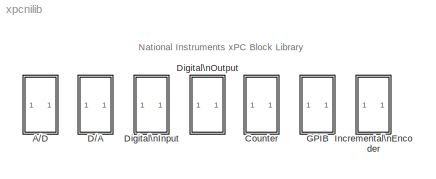
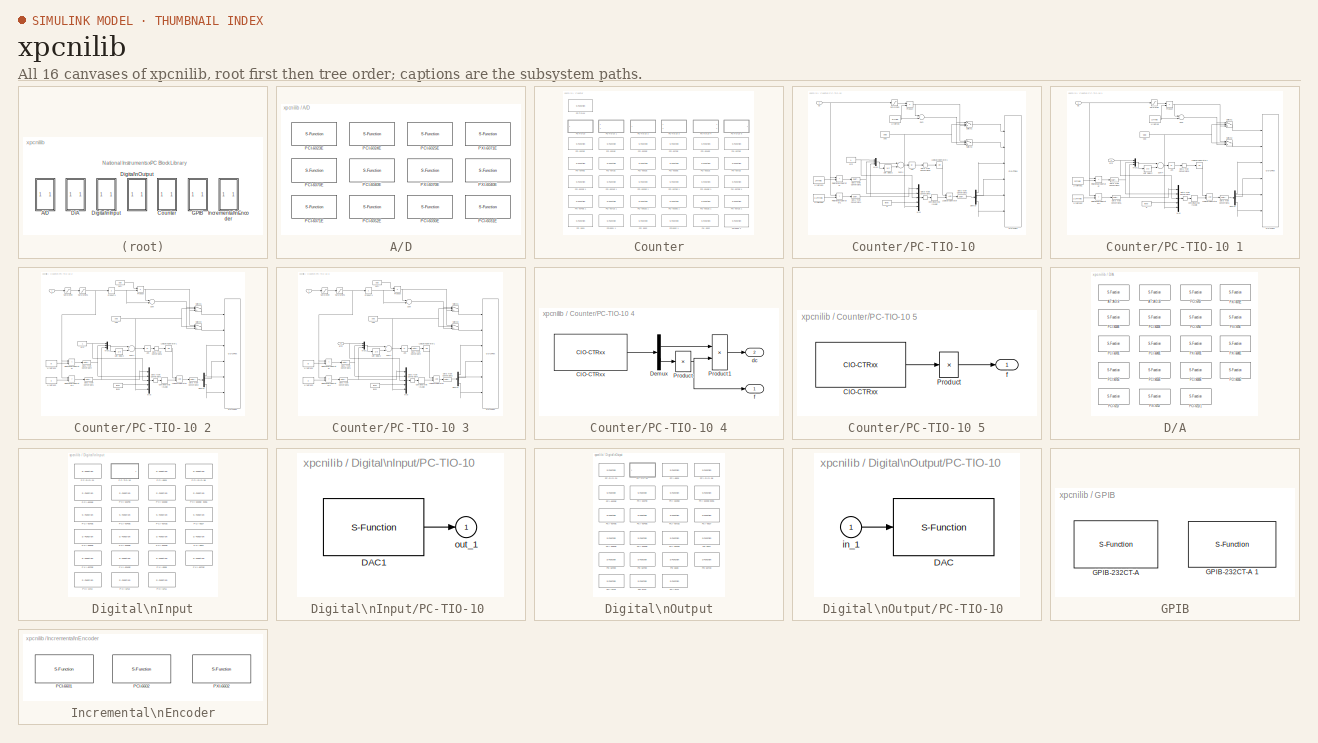
[diagram: thumbnail index - all 16 canvases of the model, root first then tree order]
MODEL xpcnilib
KIND library
BLOCK [SubSystem] A//D
  MinAlgLoopOccurrences = off
  Ports = []
  PropExecContextAcrossSSBoundary = on
  RTWSystemCode = Auto
  TreatAsAtomicUnit = off
BLOCK [S-Function] A//D/PCI-6023E 
  FunctionName = adnipcie
  InitFcn = madnipcie(1);
  MaskCallbackString = ||||
  MaskDescription = PCI-6023E\nNational Instruments\nAnalog Input
  MaskDisplay = disp('PCI-6023E\\nNational Instr.\\nAnalog Input');port_label('output',1,'1');
  MaskEnableString = on,on,on,on,on
  MaskHelp = helpview(fullfile(docroot, 'mapfiles', 'xpc.map'), 'NationalInstruments_PCI-6023E_AD')
  MaskIconFrame = on
  MaskIconOpaque = on
  MaskIconRotate = none
  MaskIconUnits = autoscale
  MaskInitialization = boardType=1;\nmadnipcie(2,channel, range, coupling, slot, boardType);
  MaskPromptString = Channel vector:|Range vector:|Input coupling vector:|Sample time:|PCI slot (-1: autosearch):
  MaskSelfModifiable = on
  MaskStyleString = edit,edit,edit,edit,edit
  MaskTabNameString = ,,,,
  MaskToolTipString = on,on,on,on,on
  MaskTunableValueString = on,on,on,on,on
  MaskType = adnipcie
  MaskValueString = [1]|[-10]|[0]|0.001|-1
  MaskVarAliasString = ,,,,
  MaskVariables = channel=@1;range=@2;coupling=@3;sampletime=@4;slot=@5;
  MaskVisibilityString = on,on,on,on,on
  Parameters = channel, range, coupling, sampletime, slot,  boardType
  Ports = [0, 1]
BLOCK [S-Function] A//D/PCI-6024E 
  FunctionName = adnipcie
  InitFcn = madnipcie(1);
  MaskCallbackString = ||||
  MaskDescription = PCI-6024E\nNational Instruments\nAnalog Input
  MaskDisplay = disp('PCI-6024E\\nNational Instr.\\nAnalog Input');port_label('output',1,'1');
  MaskEnableString = on,on,on,on,on
  MaskHelp = helpview(fullfile(docroot, 'mapfiles', 'xpc.map'), 'NationalInstruments_PCI-6024E_AD')
  MaskIconFrame = on
  MaskIconOpaque = on
  MaskIconRotate = none
  MaskIconUnits = autoscale
  MaskInitialization = boardType=2;\nmadnipcie(2,channel, range, coupling, slot, boardType);
  MaskPromptString = Channel vector:|Range vector:|Input coupling vector:|Sample time:|PCI slot (-1: autosearch):
  MaskSelfModifiable = on
  MaskStyleString = edit,edit,edit,edit,edit
  MaskTabNameString = ,,,,
  MaskToolTipString = on,on,on,on,on
  MaskTunableValueString = on,on,on,on,on
  MaskType = adnipcie
  MaskValueString = [1]|[-10]|[0]|0.001|-1
  MaskVarAliasString = ,,,,
  MaskVariables = channel=@1;range=@2;coupling=@3;sampletime=@4;slot=@5;
  MaskVisibilityString = on,on,on,on,on
  Parameters = channel, range, coupling, sampletime, slot,  boardType
  Ports = [0, 1]
BLOCK [S-Function] A//D/PCI-6025E 
  FunctionName = adnipcie
  InitFcn = madnipcie(1);
  MaskCallbackString = ||||
  MaskDescription = PCI-6025E\nNational Instruments\nAnalog Input
  MaskDisplay = disp('PCI-6025E\\nNational Instr.\\nAnalog Input');port_label('output',1,'1');
  MaskEnableString = on,on,on,on,on
  MaskHelp = helpview(fullfile(docroot, 'mapfiles', 'xpc.map'), 'NationalInstruments_PCI-6025E_AD')
  MaskIconFrame = on
  MaskIconOpaque = on
  MaskIconRotate = none
  MaskIconUnits = autoscale
  MaskInitialization = boardType=3;\nmadnipcie(2,channel, range, coupling, slot, boardType);
  MaskPromptString = Channel vector:|Range vector:|Input coupling vector:|Sample time:|PCI slot (-1: autosearch):
  MaskSelfModifiable = on
  MaskStyleString = edit,edit,edit,edit,edit
  MaskTabNameString = ,,,,
  MaskToolTipString = on,on,on,on,on
  MaskTunableValueString = on,on,on,on,on
  MaskType = adnipcie
  MaskValueString = [1]|[-10]|[0]|0.001|-1
  MaskVarAliasString = ,,,,
  MaskVariables = channel=@1;range=@2;coupling=@3;sampletime=@4;slot=@5;
  MaskVisibilityString = on,on,on,on,on
  Parameters = channel, range, coupling, sampletime, slot,  boardType
  Ports = [0, 1]
BLOCK [S-Function] A//D/PCI-6030E 
  FunctionName = adnipcie
  InitFcn = madnipcie(1);
  MaskCallbackString = ||||
  MaskDescription = PCI-6030E\nNational Instruments\nAnalog Input
  MaskDisplay = disp('PCI-6030E\\nNational Instr.\\nAnalog Input');port_label('output',1,'1');
  MaskEnableString = on,on,on,on,on
  MaskHelp = helpview(fullfile(docroot, 'mapfiles', 'xpc.map'), 'NationalInstruments_PCI-MIO-16XE-10_AD')
  MaskIconFrame = on
  MaskIconOpaque = on
  MaskIconRotate = none
  MaskIconUnits = autoscale
  MaskInitialization = boardType=10;\nmadnipcie(2,channel, range, coupling, slot, boardType);
  MaskPromptString = Channel vector:|Range vector:|Input coupling vector:|Sample time:|PCI slot (-1: autosearch):
  MaskSelfModifiable = on
  MaskStyleString = edit,edit,edit,edit,edit
  MaskTabNameString = ,,,,
  MaskToolTipString = on,on,on,on,on
  MaskTunableValueString = on,on,on,on,on
  MaskType = adnipcie
  MaskValueString = [1]|[-10]|[0]|0.001|-1
  MaskVarAliasString = ,,,,
  MaskVariables = channel=@1;range=@2;coupling=@3;sampletime=@4;slot=@5;
  MaskVisibilityString = on,on,on,on,on
  Parameters = channel, range, coupling, sampletime, slot,  boardType
  Ports = [0, 1]
BLOCK [S-Function] A//D/PCI-6031E 
  FunctionName = adnipcie
  InitFcn = madnipcie(1);
  MaskCallbackString = ||||
  MaskDescription = PCI-6031E\nNational Instruments\nAnalog Input
  MaskDisplay = disp('PCI-6031E\\nNational Instr.\\nAnalog Input');port_label('output',1,'1');
  MaskEnableString = on,on,on,on,on
  MaskHelp = helpview(fullfile(docroot, 'mapfiles', 'xpc.map'), 'NationalInstruments_PCI-6031E_AD')
  MaskIconFrame = on
  MaskIconOpaque = on
  MaskIconRotate = none
  MaskIconUnits = autoscale
  MaskInitialization = boardType=11;\nmadnipcie(2,channel, range, coupling, slot, boardType);
  MaskPromptString = Channel vector:|Range vector:|Input coupling vector:|Sample time:|PCI slot (-1: autosearch):
  MaskSelfModifiable = on
  MaskStyleString = edit,edit,edit,edit,edit
  MaskTabNameString = ,,,,
  MaskToolTipString = on,on,on,on,on
  MaskTunableValueString = on,on,on,on,on
  MaskType = adnipcie
  MaskValueString = [1]|[-10]|[0]|0.001|-1
  MaskVarAliasString = ,,,,
  MaskVariables = channel=@1;range=@2;coupling=@3;sampletime=@4;slot=@5;
  MaskVisibilityString = on,on,on,on,on
  Parameters = channel, range, coupling, sampletime, slot,  boardType
  Ports = [0, 1]
BLOCK [S-Function] A//D/PCI-6040E 
  FunctionName = adnipcie
  InitFcn = madnipcie(1);
  MaskCallbackString = ||||
  MaskDescription = PCI-6040E\nNational Instruments\nAnalog Input
  MaskDisplay = disp('PCI-6040E\\nNational Instr.\\nAnalog Input');port_label('output',1,'1');
  MaskEnableString = on,on,on,on,on
  MaskHelp = helpview(fullfile(docroot, 'mapfiles', 'xpc.map'), 'NationalInstruments_PCI-MIO-16E-4_AD')
  MaskIconFrame = on
  MaskIconOpaque = on
  MaskIconRotate = none
  MaskIconUnits = autoscale
  MaskInitialization = boardType=5;\nmadnipcie(2,channel, range, coupling, slot, boardType);
  MaskPromptString = Channel vector:|Range vector:|Input coupling vector:|Sample time:|PCI slot (-1: autosearch):
  MaskSelfModifiable = on
  MaskStyleString = edit,edit,edit,edit,edit
  MaskTabNameString = ,,,,
  MaskToolTipString = on,on,on,on,on
  MaskTunableValueString = on,on,on,on,on
  MaskType = adnipcie
  MaskValueString = [1]|[-10]|[0]|0.001|-1
  MaskVarAliasString = ,,,,
  MaskVariables = channel=@1;range=@2;coupling=@3;sampletime=@4;slot=@5;
  MaskVisibilityString = on,on,on,on,on
  Parameters = channel, range, coupling, sampletime, slot,  boardType
  Ports = [0, 1]
BLOCK [S-Function] A//D/PCI-6052E 
  FunctionName = adnipcie
  InitFcn = madnipcie(1);
  MaskCallbackString = ||||
  MaskDescription = PCI-6052E\nNational Instruments\nAnalog Input
  MaskDisplay = disp('PCI-6052E\\nNational Instr.\\nAnalog Input');port_label('output',1,'1');
  MaskEnableString = on,on,on,on,on
  MaskHelp = helpview(fullfile(docroot, 'mapfiles', 'xpc.map'), 'NationalInstruments_PCI-6052E_AD')
  MaskIconFrame = on
  MaskIconOpaque = on
  MaskIconRotate = none
  MaskIconUnits = autoscale
  MaskInitialization = boardType=9;\nmadnipcie(2,channel, range, coupling, slot, boardType);
  MaskPromptString = Channel vector:|Range vector:|Input coupling vector:|Sample time:|PCI slot (-1: autosearch):
  MaskSelfModifiable = on
  MaskStyleString = edit,edit,edit,edit,edit
  MaskTabNameString = ,,,,
  MaskToolTipString = on,on,on,on,on
  MaskTunableValueString = on,on,on,on,on
  MaskType = adnipcie
  MaskValueString = [1]|[-10]|[0]|0.001|-1
  MaskVarAliasString = ,,,,
  MaskVariables = channel=@1;range=@2;coupling=@3;sampletime=@4;slot=@5;
  MaskVisibilityString = on,on,on,on,on
  Parameters = channel, range, coupling, sampletime, slot,  boardType
  Ports = [0, 1]
BLOCK [S-Function] A//D/PCI-6070E 
  FunctionName = adnipcie
  InitFcn = madnipcie(1);
  MaskCallbackString = ||||
  MaskDescription = PCI-6070E\nNational Instruments\nAnalog Input
  MaskDisplay = disp('PCI-6070E\\nNational Instr.\\nAnalog Input');port_label('output',1,'1');
  MaskEnableString = on,on,on,on,on
  MaskHelp = helpview(fullfile(docroot, 'mapfiles', 'xpc.map'), 'NationalInstruments_PCI-MIO-16E-1_AD')
  MaskIconFrame = on
  MaskIconOpaque = on
  MaskIconRotate = none
  MaskIconUnits = autoscale
  MaskInitialization = boardType=4;\nmadnipcie(2,channel, range, coupling, slot, boardType);
  MaskPromptString = Channel vector:|Range vector:|Input coupling vector:|Sample time:|PCI slot (-1: autosearch):
  MaskSelfModifiable = on
  MaskStyleString = edit,edit,edit,edit,edit
  MaskTabNameString = ,,,,
  MaskToolTipString = on,on,on,on,on
  MaskTunableValueString = on,on,on,on,on
  MaskType = adnipcie
  MaskValueString = [1]|[-10]|[0]|0.001|-1
  MaskVarAliasString = ,,,,
  MaskVariables = channel=@1;range=@2;coupling=@3;sampletime=@4;slot=@5;
  MaskVisibilityString = on,on,on,on,on
  Parameters = channel, range, coupling, sampletime, slot,  boardType
  Ports = [0, 1]
BLOCK [S-Function] A//D/PCI-6071E 
  FunctionName = adnipcie
  InitFcn = madnipcie(1);
  MaskCallbackString = ||||
  MaskDescription = PCI-6071E\nNational Instruments\nAnalog Input
  MaskDisplay = disp('PCI-6071E\\nNational Instr.\\nAnalog Input');port_label('output',1,'1');
  MaskEnableString = on,on,on,on,on
  MaskHelp = helpview(fullfile(docroot, 'mapfiles', 'xpc.map'), 'NationalInstruments_PCI-6071E_AD')
  MaskIconFrame = on
  MaskIconOpaque = on
  MaskIconRotate = none
  MaskIconUnits = autoscale
  MaskInitialization = boardType=8;\nmadnipcie(2,channel, range, coupling, slot, boardType);
  MaskPromptString = Channel vector:|Range vector:|Input coupling vector:|Sample time:|PCI slot (-1: autosearch):
  MaskSelfModifiable = on
  MaskStyleString = edit,edit,edit,edit,edit
  MaskTabNameString = ,,,,
  MaskToolTipString = on,on,on,on,on
  MaskTunableValueString = on,on,on,on,on
  MaskType = adnipcie
  MaskValueString = [1]|[-10]|[0]|0.001|-1
  MaskVarAliasString = ,,,,
  MaskVariables = channel=@1;range=@2;coupling=@3;sampletime=@4;slot=@5;
  MaskVisibilityString = on,on,on,on,on
  Parameters = channel, range, coupling, sampletime, slot,  boardType
  Ports = [0, 1]
BLOCK [S-Function] A//D/PXI-6040E 
  FunctionName = adnipcie
  InitFcn = madnipcie(1);
  MaskCallbackString = ||||
  MaskDescription = PXI-6040E\nNational Instruments\nAnalog Input
  MaskDisplay = disp('PXI-6040E\\nNational Instr.\\nAnalog Input');port_label('output',1,'1');
  MaskEnableString = on,on,on,on,on
  MaskHelp = helpview(fullfile(docroot, 'mapfiles', 'xpc.map'), 'NationalInstruments_PXI-6040E_AD')
  MaskIconFrame = on
  MaskIconOpaque = on
  MaskIconRotate = none
  MaskIconUnits = autoscale
  MaskInitialization = boardType=7;\nmadnipcie(2,channel, range, coupling, slot, boardType);
  MaskPromptString = Channel vector:|Range vector:|Input coupling vector:|Sample time:|PCI slot (-1: autosearch):
  MaskSelfModifiable = on
  MaskStyleString = edit,edit,edit,edit,edit
  MaskTabNameString = ,,,,
  MaskToolTipString = on,on,on,on,on
  MaskTunableValueString = on,on,on,on,on
  MaskType = adnipcie
  MaskValueString = [1]|[-10]|[0]|0.001|-1
  MaskVarAliasString = ,,,,
  MaskVariables = channel=@1;range=@2;coupling=@3;sampletime=@4;slot=@5;
  MaskVisibilityString = on,on,on,on,on
  Parameters = channel, range, coupling, sampletime, slot,  boardType
  Ports = [0, 1]
BLOCK [S-Function] A//D/PXI-6070E 
  FunctionName = adnipcie
  InitFcn = madnipcie(1);
  MaskCallbackString = ||||
  MaskDescription = PXI-6070E\nNational Instruments\nAnalog Input
  MaskDisplay = disp('PXI-6070E\\nNational Instr.\\nAnalog Input');port_label('output',1,'1');
  MaskEnableString = on,on,on,on,on
  MaskHelp = helpview(fullfile(docroot, 'mapfiles', 'xpc.map'), 'NationalInstruments_PXI-6070E_AD')
  MaskIconFrame = on
  MaskIconOpaque = on
  MaskIconRotate = none
  MaskIconUnits = autoscale
  MaskInitialization = boardType=6;\nmadnipcie(2,channel, range, coupling, slot, boardType);
  MaskPromptString = Channel vector:|Range vector:|Input coupling vector:|Sample time:|PCI slot (-1: autosearch):
  MaskSelfModifiable = on
  MaskStyleString = edit,edit,edit,edit,edit
  MaskTabNameString = ,,,,
  MaskToolTipString = on,on,on,on,on
  MaskTunableValueString = on,on,on,on,on
  MaskType = adnipcie
  MaskValueString = [1]|[-10]|[0]|0.001|-1
  MaskVarAliasString = ,,,,
  MaskVariables = channel=@1;range=@2;coupling=@3;sampletime=@4;slot=@5;
  MaskVisibilityString = on,on,on,on,on
  Parameters = channel, range, coupling, sampletime, slot,  boardType
  Ports = [0, 1]
BLOCK [S-Function] A//D/PXI-6071E 
  FunctionName = adnipcie
  InitFcn = madnipcie(1);
  MaskCallbackString = ||||
  MaskDescription = PXI-6071E\nNational Instruments\nAnalog Input
  MaskDisplay = disp('PXI-6071E\\nNational Instr.\\nAnalog Input');port_label('output',1,'1');
  MaskEnableString = on,on,on,on,on
  MaskHelp = helpview(fullfile(docroot, 'mapfiles', 'xpc.map'), 'NationalInstruments_PXI-6071E_AD')
  MaskIconFrame = on
  MaskIconOpaque = on
  MaskIconRotate = none
  MaskIconUnits = autoscale
  MaskInitialization = boardType=12;\nmadnipcie(2,channel, range, coupling, slot, boardType);
  MaskPromptString = Channel vector:|Range vector:|Input coupling vector:|Sample time:|PCI slot (-1: autosearch):
  MaskSelfModifiable = on
  MaskStyleString = edit,edit,edit,edit,edit
  MaskTabNameString = ,,,,
  MaskToolTipString = on,on,on,on,on
  MaskTunableValueString = on,on,on,on,on
  MaskType = adnipcie
  MaskValueString = [1]|[-10]|[0]|0.001|-1
  MaskVarAliasString = ,,,,
  MaskVariables = channel=@1;range=@2;coupling=@3;sampletime=@4;slot=@5;
  MaskVisibilityString = on,on,on,on,on
  Parameters = channel, range, coupling, sampletime, slot,  boardType
  Ports = [0, 1]
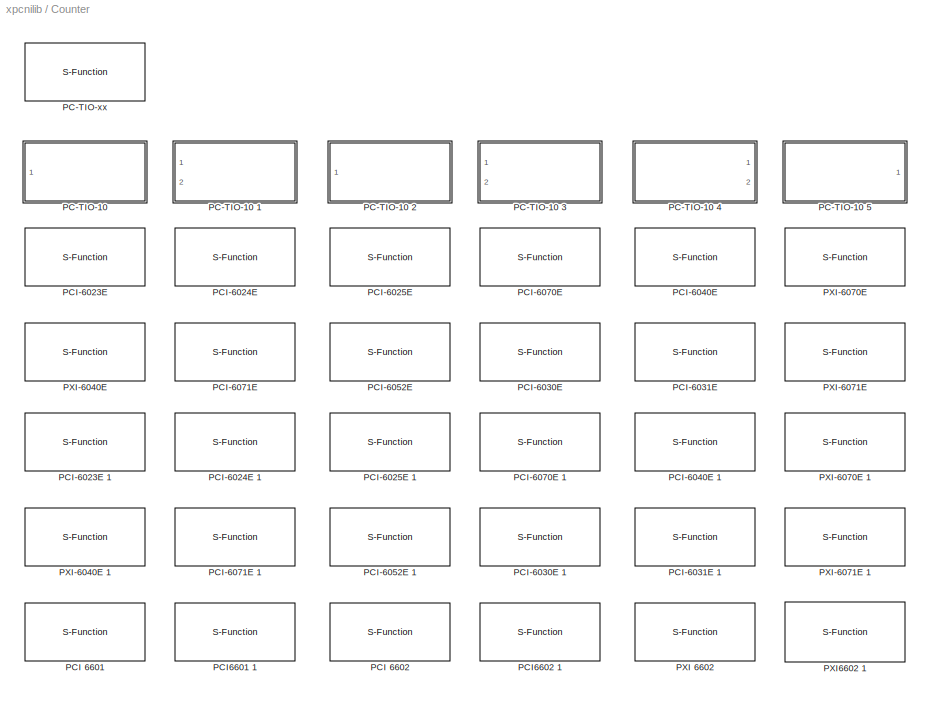
BLOCK [SubSystem] Counter
  MinAlgLoopOccurrences = off
  Ports = []
  PropExecContextAcrossSSBoundary = on
  RTWSystemCode = Auto
  TreatAsAtomicUnit = off
BLOCK [SubSystem] Counter/PC-TIO-10 
  MaskCallbackString = ||||||
  MaskDescription = PC-TIO-10\nNational Instruments\nPWM
  MaskDisplay = text(0.95,0.75,'PC-TIO-10','horizontalAlignment','right');text(0.95,0.50,'National Instr.','horizontalAlignment','right');text(0.95,0.25,'PWM','horizontalAlignment','right');port_label('input',1,[num2str(counterin),' (dc)'] );
  MaskEnableString = on,on,on,on,on,on,on
  MaskHelp = helpview(fullfile(docroot, 'mapfiles', 'xpc.map'), 'NationalInstruments_PC-TIO-10_Counter')
  MaskIconFrame = on
  MaskIconOpaque = on
  MaskIconRotate = none
  MaskIconUnits = normalized
  MaskInitialization = init_arm=0;\ninitduty=0.5;\ncounter=counterin;\nif counter>5\ncounter=counter-5;\nbaseAddress=['0x',dec2hex(hex2dec(baseAddress(3:end))+2)];\nend;\n[MasterMode, CounterMode, Init, Runtime, Term] =pwmarm_amd9513(counter, freq_base, freq, initduty, level, init_arm);\nlevel=level-1;\nseq=seq-1;
  MaskPromptString = Counter:|Frequency base:|Relative output frequency:|Level sequence of square wave:|Level when disarmed:|Sample time:|Base address (i.e. 0xd000):
  MaskSelfModifiable = on
  MaskStyleString = popup(1|2|3|4|5|6|7|8|9|10),popup(F1=1MHz|F2=100KHz|F3=10kHz|F4=1kHz|F5=100Hz),edit,popup(High - Low|Low- High),popup(Low|High),edit,edit
  MaskTabNameString = ,,,,,,
  MaskToolTipString = on,on,on,on,on,on,on
  MaskTunableValueString = on,on,on,on,on,on,on
  MaskType = PWM
  MaskValueString = 1|F1=1MHz|0.001|High - Low|High|0.001|0x300
  MaskVarAliasString = ,,,,,,
  MaskVariables = counterin=@1;freq_base=@2;freq=@3;seq=@4;level=@5;Ts=@6;baseAddress=&7;
  MaskVisibilityString = on,on,on,on,on,on,on
  MinAlgLoopOccurrences = off
  Ports = [1]
  PropExecContextAcrossSSBoundary = on
  RTWSystemCode = Auto
  TreatAsAtomicUnit = off
BLOCK [Constant] Counter/PC-TIO-10 /1//relFreq
  Value = 1/freq
BLOCK [Constant] Counter/PC-TIO-10 /1//relFreq1
  Value = 2*freq
BLOCK [Constant] Counter/PC-TIO-10 /1//relFreq2
  Value = 1-2*freq
BLOCK [Abs] Counter/PC-TIO-10 /Abs
BLOCK [Reference] Counter/PC-TIO-10 /CIO-CTRxx   REF=xpcmeasurementcomputinglib/Counter/CIO-CTRxx 
  Ports = [6]
  SourceBlock = xpcmeasurementcomputinglib/Counter/CIO-CTRxx
  SourceType = cioctrxx
  baseAddress = baseAddress
  commands = Runtime
  countermode = CounterMode
  init = Init
  mastermode = MasterMode
  term = Term
  ts = Ts
BLOCK [CombinatorialLogic] Counter/PC-TIO-10 /Combinatorial \nLogic
  TruthTable = [0,0,1,0;0,0,1,0;0,0,0,1;0,0,0,1;0,1,0,0;1,0,0,0;0,1,0,0;1,0,0,0;0,0,1,0;0,0,1,0;0,0,0,1;0,0,0,1;0,0,1,0;0,0,1,0;0,0,1,0;0,0,1,0;0,0,1,0;0,0,1,0;0,0,0,1;0,0,0,1;0,0,0,1;0,0,0,1;0,0,0,1;0,0,0,1;0,0,0,0;0,0,0,0;0,0,0,0;0,0,0,0;0,0,0,0;0,0,0,0;0,0,0,0;0,0,0,0]  <repeated x4 — deduplicated; at blocks: Combinatorial \nLogic>
BLOCK [DataTypeConversion] Counter/PC-TIO-10 /Data Type Conversion1
  OutDataTypeMode = double
BLOCK [DataTypeConversion] Counter/PC-TIO-10 /Data Type Conversion2
BLOCK [DataTypeConversion] Counter/PC-TIO-10 /Data Type Conversion3
BLOCK [DataTypeConversion] Counter/PC-TIO-10 /Data Type Conversion4
  OutDataTypeMode = double
BLOCK [DataTypeConversion] Counter/PC-TIO-10 /Data Type Conversion5
BLOCK [Demux] Counter/PC-TIO-10 /Demux
  Ports = [1, 4]
BLOCK [Logic] Counter/PC-TIO-10 /Logical\nOperator
  Ports = [2, 1]
BLOCK [Logic] Counter/PC-TIO-10 /Logical\nOperator1
  Inputs = 1
  Operator = OR
  Ports = [1, 1]
BLOCK [Mux] Counter/PC-TIO-10 /Mux
  DisplayOption = bar
  Inputs = 5
  Ports = [5, 1]
BLOCK [Mux] Counter/PC-TIO-10 /Mux1
  DisplayOption = bar
  Inputs = 3
  Ports = [3, 1]
BLOCK [Product] Counter/PC-TIO-10 /Product
  Ports = [2, 1]
  RndMeth = Floor
BLOCK [RelationalOperator] Counter/PC-TIO-10 /Relational\nOperator
  Operator = <
BLOCK [RelationalOperator] Counter/PC-TIO-10 /Relational\nOperator1
  Operator = >
BLOCK [Saturate] Counter/PC-TIO-10 /Saturation
  LowerLimit = 2*freq
  UpperLimit = 1-2*freq
  ZeroCross = off
BLOCK [Sum] Counter/PC-TIO-10 /Sum
  Inputs = -+
  Ports = [2, 1]
BLOCK [Sum] Counter/PC-TIO-10 /Sum4
  Inputs = +-
  Ports = [2, 1]
BLOCK [Switch] Counter/PC-TIO-10 /Switch1
  SaturateOnIntegerOverflow = off
  Threshold = 0.5
BLOCK [Switch] Counter/PC-TIO-10 /Switch2
  SaturateOnIntegerOverflow = off
  Threshold = 0.5
BLOCK [UnitDelay] Counter/PC-TIO-10 /Unit Delay2
  SampleTime = Ts
  X0 = 2
BLOCK [Constant] Counter/PC-TIO-10 /arm
BLOCK [Inport] Counter/PC-TIO-10 /dc
  IconDisplay = Port number
  LatchInput = off
BLOCK [Constant] Counter/PC-TIO-10 /g
  Value = level
BLOCK [Constant] Counter/PC-TIO-10 /seq
  Value = seq
BLOCK [SubSystem] Counter/PC-TIO-10 1
  MaskCallbackString = ||||||
  MaskDescription = PC-TIO-10\nNational Instruments\nPWM & ARM
  MaskDisplay = text(0.95,0.75,'PC-TIO-10','horizontalAlignment','right');text(0.95,0.50,'National Instr.','horizontalAlignment','right');text(0.95,0.25,'PWM & ARM','horizontalAlignment','right');port_label('input',1,[num2str(counterin),' (dc)'] );port_label('input',2,[num2str(counterin),' (arm)'] );
  MaskEnableString = on,on,on,on,on,on,on
  MaskHelp = helpview(fullfile(docroot, 'mapfiles', 'xpc.map'), 'NationalInstruments_PC-TIO-10-1_Counter')
  MaskIconFrame = on
  MaskIconOpaque = on
  MaskIconRotate = none
  MaskIconUnits = normalized
  MaskInitialization = init_arm=0;\ninitduty=0.5;\ncounter=counterin;\nif counter>5\ncounter=counter-5;\nbaseAddress=['0x',dec2hex(hex2dec(baseAddress(3:end))+2)];\nend;\n[MasterMode, CounterMode, Init, Runtime, Term] =pwmarm_amd9513(counter, freq_base, freq, initduty, level, init_arm);\nlevel=level-1;\nseq=seq-1;
  MaskPromptString = Counter:|Frequency base:|Relative output frequency:|Level sequence of square wave:|Level when disarmed:|Sample time:|Base address (i.e. 0xd000):
  MaskSelfModifiable = on
  MaskStyleString = popup(1|2|3|4|5|6|7|8|9|10),popup(F1=1MHz|F2=100KHz|F3=10kHz|F4=1kHz|F5=100Hz),edit,popup(High - Low|Low- High),popup(Low|High),edit,edit
  MaskTabNameString = ,,,,,,
  MaskToolTipString = on,on,on,on,on,on,on
  MaskTunableValueString = on,on,on,on,on,on,on
  MaskType = PWM
  MaskValueString = 1|F1=1MHz|0.001|High - Low|High|0.001|0x300
  MaskVarAliasString = ,,,,,,
  MaskVariables = counterin=@1;freq_base=@2;freq=@3;seq=@4;level=@5;Ts=@6;baseAddress=&7;
  MaskVisibilityString = on,on,on,on,on,on,on
  MinAlgLoopOccurrences = off
  Ports = [2]
  PropExecContextAcrossSSBoundary = on
  RTWSystemCode = Auto
  TreatAsAtomicUnit = off
BLOCK [Constant] Counter/PC-TIO-10 1/1//relFreq
  Value = 1/freq
BLOCK [Constant] Counter/PC-TIO-10 1/1//relFreq1
  Value = 2*freq
BLOCK [Constant] Counter/PC-TIO-10 1/1//relFreq2
  Value = 1-2*freq
BLOCK [Abs] Counter/PC-TIO-10 1/Abs
BLOCK [Reference] Counter/PC-TIO-10 1/CIO-CTRxx   REF=xpcmeasurementcomputinglib/Counter/CIO-CTRxx 
  Ports = [6]
  SourceBlock = xpcmeasurementcomputinglib/Counter/CIO-CTRxx
  SourceType = cioctrxx
  baseAddress = baseAddress
  commands = Runtime
  countermode = CounterMode
  init = Init
  mastermode = MasterMode
  term = Term
  ts = Ts
BLOCK [CombinatorialLogic] Counter/PC-TIO-10 1/Combinatorial \nLogic
BLOCK [DataTypeConversion] Counter/PC-TIO-10 1/Data Type Conversion1
BLOCK [DataTypeConversion] Counter/PC-TIO-10 1/Data Type Conversion2
BLOCK [DataTypeConversion] Counter/PC-TIO-10 1/Data Type Conversion3
BLOCK [DataTypeConversion] Counter/PC-TIO-10 1/Data Type Conversion4
  OutDataTypeMode = double
BLOCK [DataTypeConversion] Counter/PC-TIO-10 1/Data Type Conversion5
  OutDataTypeMode = double
BLOCK [Demux] Counter/PC-TIO-10 1/Demux
  Ports = [1, 4]
BLOCK [Logic] Counter/PC-TIO-10 1/Logical\nOperator
  Ports = [2, 1]
BLOCK [Logic] Counter/PC-TIO-10 1/Logical\nOperator1
  Inputs = 1
  Operator = OR
  Ports = [1, 1]
BLOCK [Mux] Counter/PC-TIO-10 1/Mux
  DisplayOption = bar
  Inputs = 5
  Ports = [5, 1]
BLOCK [Mux] Counter/PC-TIO-10 1/Mux1
  DisplayOption = bar
  Inputs = 3
  Ports = [3, 1]
BLOCK [Product] Counter/PC-TIO-10 1/Product
  Ports = [2, 1]
  RndMeth = Floor
BLOCK [RelationalOperator] Counter/PC-TIO-10 1/Relational\nOperator
  Operator = <
BLOCK [RelationalOperator] Counter/PC-TIO-10 1/Relational\nOperator1
  Operator = >
BLOCK [Saturate] Counter/PC-TIO-10 1/Saturation
  LowerLimit = 2*freq
  UpperLimit = 1-2*freq
  ZeroCross = off
BLOCK [Sum] Counter/PC-TIO-10 1/Sum
  Inputs = -+
  Ports = [2, 1]
BLOCK [Sum] Counter/PC-TIO-10 1/Sum4
  Inputs = +-
  Ports = [2, 1]
BLOCK [Switch] Counter/PC-TIO-10 1/Switch1
  SaturateOnIntegerOverflow = off
  Threshold = 0.5
BLOCK [Switch] Counter/PC-TIO-10 1/Switch2
  SaturateOnIntegerOverflow = off
  Threshold = 0.5
BLOCK [UnitDelay] Counter/PC-TIO-10 1/Unit Delay2
  SampleTime = Ts
  X0 = 2
BLOCK [Inport] Counter/PC-TIO-10 1/arm
  IconDisplay = Port number
  LatchInput = off
  Port = 2
BLOCK [Inport] Counter/PC-TIO-10 1/dc
  IconDisplay = Port number
  LatchInput = off
BLOCK [Constant] Counter/PC-TIO-10 1/g
  Value = level
BLOCK [Constant] Counter/PC-TIO-10 1/seq
  Value = seq
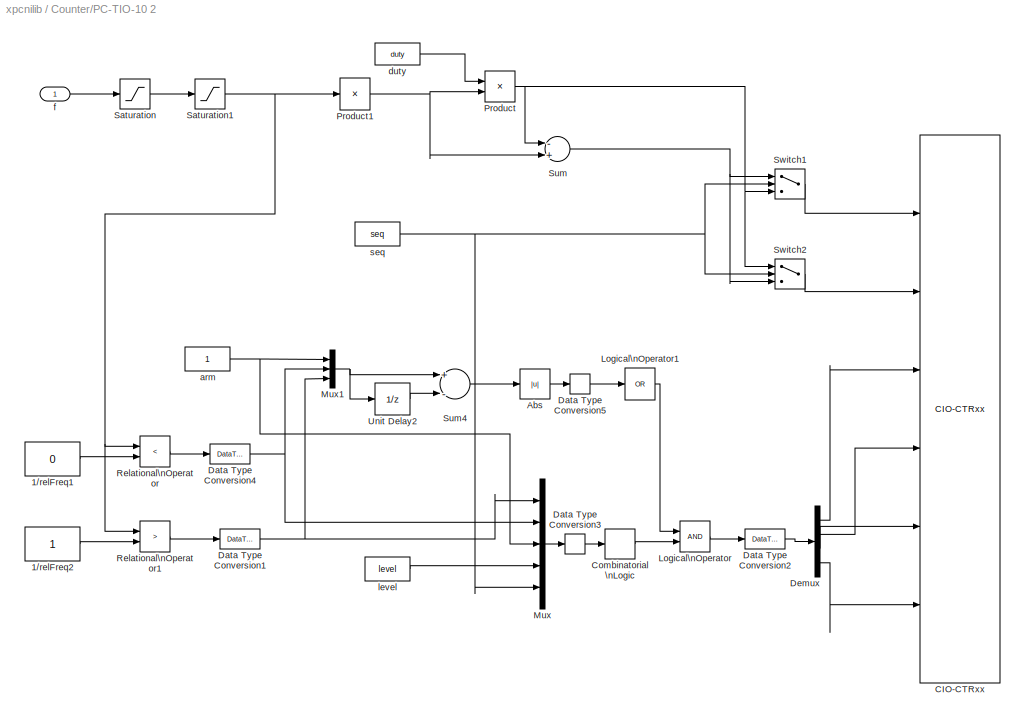
BLOCK [SubSystem] Counter/PC-TIO-10 2
  MaskCallbackString = ||||||
  MaskDescription = PC-TIO-10\nNational Instruments\nFM
  MaskDisplay = text(0.95,0.75,'PC-TIO-10','horizontalAlignment','right');text(0.95,0.50,'National Instr.','horizontalAlignment','right');text(0.95,0.25,'FM','horizontalAlignment','right');port_label('input',1,[num2str(counterin),' (f)'] );
  MaskEnableString = on,on,on,on,on,on,on
  MaskHelp = helpview(fullfile(docroot, 'mapfiles', 'xpc.map'), 'NationalInstruments_PC-TIO-10-2_Counter')
  MaskIconFrame = on
  MaskIconOpaque = on
  MaskIconRotate = none
  MaskIconUnits = normalized
  MaskInitialization = init_arm=0;\ninitfreq=0.005;\ncounter=counterin;\nif counter>5\ncounter=counter-5;\nbaseAddress=['0x',dec2hex(hex2dec(baseAddress(3:end))+2)];\nend;\n[MasterMode, CounterMode, Init, Runtime, Term] =fmarm_amd9513(counter, freq_base, duty, initfreq, level, init_arm);\nlevel=level-1;\nseq=seq-1;
  MaskPromptString = Counter:|Frequency base:|Output duty cycle:|Level sequence of square wave:|Level when disarmed:|Sample time:|Base address (i.e. 0xd000):
  MaskSelfModifiable = on
  MaskStyleString = popup(1|2|3|4|5|6|7|8|9|10),popup(F1=1MHz|F2=100KHz|F3=10kHz|F4=1kHz|F5=100Hz),edit,popup(High - Low|Low- High),popup(Low|High),edit,edit
  MaskTabNameString = ,,,,,,
  MaskToolTipString = on,on,on,on,on,on,on
  MaskTunableValueString = on,on,on,on,on,on,on
  MaskType = PWM
  MaskValueString = 1|F1=1MHz|0.001|High - Low|High|0.001|0x300
  MaskVarAliasString = ,,,,,,
  MaskVariables = counterin=@1;freq_base=@2;duty=@3;seq=@4;level=@5;Ts=@6;baseAddress=&7;
  MaskVisibilityString = on,on,on,on,on,on,on
  MinAlgLoopOccurrences = off
  Ports = [1]
  PropExecContextAcrossSSBoundary = on
  RTWSystemCode = Auto
  TreatAsAtomicUnit = off
BLOCK [Constant] Counter/PC-TIO-10 2/1//relFreq1
  Value = 0
BLOCK [Constant] Counter/PC-TIO-10 2/1//relFreq2
BLOCK [Abs] Counter/PC-TIO-10 2/Abs
BLOCK [Reference] Counter/PC-TIO-10 2/CIO-CTRxx   REF=xpcmeasurementcomputinglib/Counter/CIO-CTRxx 
  Ports = [6]
  SourceBlock = xpcmeasurementcomputinglib/Counter/CIO-CTRxx
  SourceType = cioctrxx
  baseAddress = baseAddress
  commands = Runtime
  countermode = CounterMode
  init = Init
  mastermode = MasterMode
  term = Term
  ts = Ts
BLOCK [CombinatorialLogic] Counter/PC-TIO-10 2/Combinatorial \nLogic
BLOCK [DataTypeConversion] Counter/PC-TIO-10 2/Data Type Conversion1
  OutDataTypeMode = double
BLOCK [DataTypeConversion] Counter/PC-TIO-10 2/Data Type Conversion2
BLOCK [DataTypeConversion] Counter/PC-TIO-10 2/Data Type Conversion3
BLOCK [DataTypeConversion] Counter/PC-TIO-10 2/Data Type Conversion4
  OutDataTypeMode = double
BLOCK [DataTypeConversion] Counter/PC-TIO-10 2/Data Type Conversion5
BLOCK [Demux] Counter/PC-TIO-10 2/Demux
  Ports = [1, 4]
BLOCK [Logic] Counter/PC-TIO-10 2/Logical\nOperator
  Ports = [2, 1]
BLOCK [Logic] Counter/PC-TIO-10 2/Logical\nOperator1
  Inputs = 1
  Operator = OR
  Ports = [1, 1]
BLOCK [Mux] Counter/PC-TIO-10 2/Mux
  DisplayOption = bar
  Inputs = 5
  Ports = [5, 1]
BLOCK [Mux] Counter/PC-TIO-10 2/Mux1
  DisplayOption = bar
  Inputs = 3
  Ports = [3, 1]
BLOCK [Product] Counter/PC-TIO-10 2/Product
  Ports = [2, 1]
  RndMeth = Floor
BLOCK [Product] Counter/PC-TIO-10 2/Product1
  Inputs = /
  Ports = [1, 1]
  RndMeth = Floor
BLOCK [RelationalOperator] Counter/PC-TIO-10 2/Relational\nOperator
  Operator = <
BLOCK [RelationalOperator] Counter/PC-TIO-10 2/Relational\nOperator1
  Operator = >
BLOCK [Saturate] Counter/PC-TIO-10 2/Saturation
  LowerLimit = duty/(2^16-1)
  UpperLimit = duty/2
  ZeroCross = off
BLOCK [Saturate] Counter/PC-TIO-10 2/Saturation1
  LowerLimit = (1-duty)/(2^16-1)
  UpperLimit = (1-duty)/2
  ZeroCross = off
BLOCK [Sum] Counter/PC-TIO-10 2/Sum
  Inputs = -+
  Ports = [2, 1]
BLOCK [Sum] Counter/PC-TIO-10 2/Sum4
  Inputs = +-
  Ports = [2, 1]
BLOCK [Switch] Counter/PC-TIO-10 2/Switch1
  SaturateOnIntegerOverflow = off
  Threshold = 0.5
BLOCK [Switch] Counter/PC-TIO-10 2/Switch2
  SaturateOnIntegerOverflow = off
  Threshold = 0.5
BLOCK [UnitDelay] Counter/PC-TIO-10 2/Unit Delay2
  SampleTime = Ts
  X0 = 2
BLOCK [Constant] Counter/PC-TIO-10 2/arm
BLOCK [Constant] Counter/PC-TIO-10 2/duty
  Value = duty
BLOCK [Inport] Counter/PC-TIO-10 2/f
  IconDisplay = Port number
  LatchInput = off
BLOCK [Constant] Counter/PC-TIO-10 2/level
  Value = level
BLOCK [Constant] Counter/PC-TIO-10 2/seq
  Value = seq
BLOCK [SubSystem] Counter/PC-TIO-10 3
  MaskCallbackString = ||||||
  MaskDescription = PC-TIO-10\nNational Instruments\nFM & ARM
  MaskDisplay = text(0.95,0.75,'PC-TIO-10','horizontalAlignment','right');text(0.95,0.50,'National Instr.','horizontalAlignment','right');text(0.95,0.25,'FM & ARM','horizontalAlignment','right');port_label('input',1,[num2str(counterin),' (f)'] );port_label('input',2,[num2str(counterin),' (arm)'] );
  MaskEnableString = on,on,on,on,on,on,on
  MaskHelp = helpview(fullfile(docroot, 'mapfiles', 'xpc.map'), 'NationalInstruments_PC-TIO-10-3_Counter')
  MaskIconFrame = on
  MaskIconOpaque = on
  MaskIconRotate = none
  MaskIconUnits = normalized
  MaskInitialization = init_arm=0;\ninitfreq=0.005;\ncounter=counterin;\nif counter>5\ncounter=counter-5;\nbaseAddress=['0x',dec2hex(hex2dec(baseAddress(3:end))+2)];\nend;\n[MasterMode, CounterMode, Init, Runtime, Term] =fmarm_amd9513(counter, freq_base, duty, initfreq, level, init_arm);\nlevel=level-1;\nseq=seq-1;
  MaskPromptString = Counter:|Frequency base:|Output duty cycle:|Level sequence of square wave:|Level when disarmed:|Sample time:|Base address (i.e. 0xd000):
  MaskSelfModifiable = on
  MaskStyleString = popup(1|2|3|4|5|6|7|8|9|10),popup(F1=1MHz|F2=100KHz|F3=10kHz|F4=1kHz|F5=100Hz),edit,popup(High - Low|Low- High),popup(Low|High),edit,edit
  MaskTabNameString = ,,,,,,
  MaskToolTipString = on,on,on,on,on,on,on
  MaskTunableValueString = on,on,on,on,on,on,on
  MaskType = FM
  MaskValueString = 1|F1=1MHz|0.001|High - Low|High|0.001|0x300
  MaskVarAliasString = ,,,,,,
  MaskVariables = counterin=@1;freq_base=@2;duty=@3;seq=@4;level=@5;Ts=@6;baseAddress=&7;
  MaskVisibilityString = on,on,on,on,on,on,on
  MinAlgLoopOccurrences = off
  Ports = [2]
  PropExecContextAcrossSSBoundary = on
  RTWSystemCode = Auto
  TreatAsAtomicUnit = off
BLOCK [Constant] Counter/PC-TIO-10 3/1//relFreq1
  Value = 0
BLOCK [Constant] Counter/PC-TIO-10 3/1//relFreq2
BLOCK [Abs] Counter/PC-TIO-10 3/Abs
BLOCK [Reference] Counter/PC-TIO-10 3/CIO-CTRxx   REF=xpcmeasurementcomputinglib/Counter/CIO-CTRxx 
  Ports = [6]
  SourceBlock = xpcmeasurementcomputinglib/Counter/CIO-CTRxx
  SourceType = cioctrxx
  baseAddress = baseAddress
  commands = Runtime
  countermode = CounterMode
  init = Init
  mastermode = MasterMode
  term = Term
  ts = Ts
BLOCK [CombinatorialLogic] Counter/PC-TIO-10 3/Combinatorial \nLogic
BLOCK [DataTypeConversion] Counter/PC-TIO-10 3/Data Type Conversion1
  OutDataTypeMode = double
BLOCK [DataTypeConversion] Counter/PC-TIO-10 3/Data Type Conversion2
BLOCK [DataTypeConversion] Counter/PC-TIO-10 3/Data Type Conversion3
BLOCK [DataTypeConversion] Counter/PC-TIO-10 3/Data Type Conversion4
BLOCK [DataTypeConversion] Counter/PC-TIO-10 3/Data Type Conversion5
  OutDataTypeMode = double
BLOCK [Demux] Counter/PC-TIO-10 3/Demux
  Ports = [1, 4]
BLOCK [Logic] Counter/PC-TIO-10 3/Logical\nOperator
  Ports = [2, 1]
BLOCK [Logic] Counter/PC-TIO-10 3/Logical\nOperator1
  Inputs = 1
  Operator = OR
  Ports = [1, 1]
BLOCK [Mux] Counter/PC-TIO-10 3/Mux
  DisplayOption = bar
  Inputs = 5
  Ports = [5, 1]
BLOCK [Mux] Counter/PC-TIO-10 3/Mux1
  DisplayOption = bar
  Inputs = 3
  Ports = [3, 1]
BLOCK [Product] Counter/PC-TIO-10 3/Product
  Ports = [2, 1]
  RndMeth = Floor
BLOCK [Product] Counter/PC-TIO-10 3/Product1
  Inputs = /
  Ports = [1, 1]
  RndMeth = Floor
BLOCK [RelationalOperator] Counter/PC-TIO-10 3/Relational\nOperator
  Operator = <
BLOCK [RelationalOperator] Counter/PC-TIO-10 3/Relational\nOperator1
  Operator = >
BLOCK [Saturate] Counter/PC-TIO-10 3/Saturation
  LowerLimit = duty/(2^16-1)
  UpperLimit = duty/2
  ZeroCross = off
BLOCK [Saturate] Counter/PC-TIO-10 3/Saturation1
  LowerLimit = (1-duty)/(2^16-1)
  UpperLimit = (1-duty)/2
  ZeroCross = off
BLOCK [Sum] Counter/PC-TIO-10 3/Sum
  Inputs = -+
  Ports = [2, 1]
BLOCK [Sum] Counter/PC-TIO-10 3/Sum4
  Inputs = +-
  Ports = [2, 1]
BLOCK [Switch] Counter/PC-TIO-10 3/Switch1
  SaturateOnIntegerOverflow = off
  Threshold = 0.5
BLOCK [Switch] Counter/PC-TIO-10 3/Switch2
  SaturateOnIntegerOverflow = off
  Threshold = 0.5
BLOCK [UnitDelay] Counter/PC-TIO-10 3/Unit Delay2
  SampleTime = Ts
  X0 = 2
BLOCK [Inport] Counter/PC-TIO-10 3/arm
  IconDisplay = Port number
  LatchInput = off
  Port = 2
BLOCK [Constant] Counter/PC-TIO-10 3/duty
  Value = duty
BLOCK [Inport] Counter/PC-TIO-10 3/f
  IconDisplay = Port number
  LatchInput = off
BLOCK [Constant] Counter/PC-TIO-10 3/level
  Value = level
BLOCK [Constant] Counter/PC-TIO-10 3/seq
  Value = seq
BLOCK [SubSystem] Counter/PC-TIO-10 4
  MaskCallbackString = |||
  MaskDescription = PC-TIO-10\nNational Instruments\nPWM capture
  MaskDisplay = text(0.05,0.75,'PC-TIO-10','horizontalAlignment','left');text(0.05,0.50,'National Instr.','horizontalAlignment','left');text(0.05,0.25,'PWM capture','horizontalAlignment','left');port_label('output',1,[num2str(counterin),' (f)'] );port_label('output',2,[num2str(counterin+1),' (dc)'] );
  MaskEnableString = on,on,on,on
  MaskHelp = helpview(fullfile(docroot, 'mapfiles', 'xpc.map'), 'NationalInstruments_PC-TIO-10-4_Counter')
  MaskIconFrame = on
  MaskIconOpaque = on
  MaskIconRotate = none
  MaskIconUnits = normalized
  MaskInitialization = counter=counterin;\nif counter>4\ncounter=counter-4;\nbaseAddress=['0x',dec2hex(hex2dec(baseAddress(3:end))+2)];\nend;\n[MasterMode, CounterMode, Init, Runtime, Term] =pwmcap_amd9513(counter, freq_base);\n
  MaskPromptString = Counter:|Frequency base:|Sample time:|Base address (i.e. 0xd000):
  MaskSelfModifiable = on
  MaskStyleString = popup(1&2|2&3|3&4|4&5|6&7|7&8|8&9|9&10),popup(F1=1MHz|F2=100KHz|F3=10kHz|F4=1kHz|F5=100Hz),edit,edit
  MaskTabNameString = ,,,
  MaskToolTipString = on,on,on,on
  MaskTunableValueString = on,on,on,on
  MaskType = PWMcap
  MaskValueString = 1&2|F1=1MHz|0.001|0x300
  MaskVarAliasString = ,,,
  MaskVariables = counterin=@1;freq_base=@2;Ts=@3;baseAddress=&4;
  MaskVisibilityString = on,on,on,on
  MinAlgLoopOccurrences = off
  Ports = [0, 2]
  PropExecContextAcrossSSBoundary = on
  RTWSystemCode = Auto
  TreatAsAtomicUnit = off
BLOCK [Reference] Counter/PC-TIO-10 4/CIO-CTRxx   REF=xpcmeasurementcomputinglib/Counter/CIO-CTRxx 
  Ports = [0, 1]
  SourceBlock = xpcmeasurementcomputinglib/Counter/CIO-CTRxx
  SourceType = cioctrxx
  baseAddress = baseAddress
  commands = Runtime
  countermode = CounterMode
  init = Init
  mastermode = MasterMode
  term = Term
  ts = Ts
BLOCK [Demux] Counter/PC-TIO-10 4/Demux
  Outputs = 2
  Ports = [1, 2]
BLOCK [Product] Counter/PC-TIO-10 4/Product
  Inputs = /
  Ports = [1, 1]
  RndMeth = Floor
BLOCK [Product] Counter/PC-TIO-10 4/Product1
  Inputs = **
  Ports = [2, 1]
  RndMeth = Floor
BLOCK [Outport] Counter/PC-TIO-10 4/dc
  BusOutputAsStruct = off
  IconDisplay = Port number
  Port = 2
BLOCK [Outport] Counter/PC-TIO-10 4/f
  BusOutputAsStruct = off
  IconDisplay = Port number
BLOCK [SubSystem] Counter/PC-TIO-10 5
  MaskCallbackString = |||
  MaskDescription = PC-TIO-10\nNational Instruments\nFrequency capture
  MaskDisplay = text(0.05,0.75,'PC-TIO-10','horizontalAlignment','left');text(0.05,0.50,'National Instr.','horizontalAlignment','left');text(0.05,0.25,'Freq. capture','horizontalAlignment','left');port_label('output',1,[num2str(counterin),' (f)'] );
  MaskEnableString = on,on,on,on
  MaskHelp = helpview(fullfile(docroot, 'mapfiles', 'xpc.map'), 'NationalInstruments_PC-TIO-10-5_Counter')
  MaskIconFrame = on
  MaskIconOpaque = on
  MaskIconRotate = none
  MaskIconUnits = normalized
  MaskInitialization = counter=counterin;\nif counter>5\ncounter=counter-5;\nbaseAddress=['0x',dec2hex(hex2dec(baseAddress(3:end))+2)];\nend;\n[MasterMode, CounterMode, Init, Runtime, Term] =freqcap_amd9513(counter, freq_base);\n
  MaskPromptString = Counter:|Frequency base:|Sample time:|Base address (i.e. 0xd000):
  MaskSelfModifiable = on
  MaskStyleString = popup(1|2|3|4|5|6|7|8|9|10),popup(F1=1MHz|F2=100KHz|F3=10kHz|F4=1kHz|F5=100Hz),edit,edit
  MaskTabNameString = ,,,
  MaskToolTipString = on,on,on,on
  MaskTunableValueString = on,on,on,on
  MaskType = FREQcap
  MaskValueString = 1|F1=1MHz|0.001|0x300
  MaskVarAliasString = ,,,
  MaskVariables = counterin=@1;freq_base=@2;Ts=@3;baseAddress=&4;
  MaskVisibilityString = on,on,on,on
  MinAlgLoopOccurrences = off
  Ports = [0, 1]
  PropExecContextAcrossSSBoundary = on
  RTWSystemCode = Auto
  TreatAsAtomicUnit = off
BLOCK [Reference] Counter/PC-TIO-10 5/CIO-CTRxx   REF=xpcmeasurementcomputinglib/Counter/CIO-CTRxx 
  Ports = [0, 1]
  SourceBlock = xpcmeasurementcomputinglib/Counter/CIO-CTRxx
  SourceType = cioctrxx
  baseAddress = baseAddress
  commands = Runtime
  countermode = CounterMode
  init = Init
  mastermode = MasterMode
  term = Term
  ts = Ts
BLOCK [Product] Counter/PC-TIO-10 5/Product
  Inputs = /
  Ports = [1, 1]
  RndMeth = Floor
BLOCK [Outport] Counter/PC-TIO-10 5/f
  BusOutputAsStruct = off
  IconDisplay = Port number
BLOCK [S-Function] Counter/PC-TIO-xx 
  FunctionName = ctramd9513isa
  MaskCallbackString = ||||||
  MaskDescription = PC-TIO-xx\nNational Instruments\nAMD9513 Counter
  MaskDisplay = disp('AMD9513\\nCounter')
  MaskEnableString = on,on,on,on,on,on,on
  MaskHelp = helpview(fullfile(docroot, 'mapfiles', 'xpc.map'), 'NationalInstruments_PC-TIO-xx_Counter')
  MaskIconFrame = on
  MaskIconOpaque = on
  MaskIconRotate = none
  MaskIconUnits = autoscale
  MaskInitialization = baseAddress=hex2dec(baseAddress(3:end));\n[io,mm, cms, initir, ir, termir]=mamd9513parse(mastermode, countermode, init, commands, term);
  MaskPromptString = Master mode structure:|Counter mode structure:|Initialization command structure:|Runtime command structure:|Termination command structure:|Sample time:|9513 chip base address (i.e. 0xd000):
  MaskSelfModifiable = on
  MaskStyleString = edit,edit,edit,edit,edit,edit,edit
  MaskTabNameString = ,,,,,,
  MaskToolTipString = on,on,on,on,on,on,on
  MaskTunableValueString = on,on,on,on,on,on,on
  MaskType = pctioxx
  MaskValueString = []|[]|[]|[]|[]|0.001|'0x300'
  MaskVarAliasString = ,,,,,,
  MaskVariables = mastermode=@1;countermode=@2;init=@3;commands=@4;term=@5;ts=@6;baseAddress=@7;
  MaskVisibilityString = on,on,on,on,on,on,on
  Parameters = io, mm, cms, initir, ir, termir, ts, baseAddress
  Ports = [1, 1]
BLOCK [S-Function] Counter/PCI 6601 
  FunctionName = ctrnipci660x
  InitFcn = mnipci660x(1);
  MaskCallbackString = ||||
  MaskDescription = PCI-6601\nNational Instruments\nPulse Generation
  MaskDisplay = disp('PCI-6601\\nNational Instr.\\nPulse Gen.');\nport_label('input', 1, 'H');\nport_label('input', 2, 'L');
  MaskEnableString = on,on,on,on,on
  MaskHelp = helpview(fullfile(docroot, 'mapfiles', 'xpc.map'), 'NationalInstruments_PCI-6601_CTR')
  MaskIconFrame = on
  MaskIconOpaque = on
  MaskIconRotate = none
  MaskIconUnits = autoscale
  MaskInitialization = channel = channel - 1;\nboardType = 3;\nmnipci660x(2, channel, slot, boardType);\n
  MaskPromptString = Channel|Initial high count:|Initial low count|Sample time:|PCI slot (-1: autosearch):
  MaskSelfModifiable = on
  MaskStyleString = popup(1|2|3|4),edit,edit,edit,edit
  MaskTabNameString = ,,,,
  MaskToolTipString = on,on,on,on,on
  MaskTunableValueString = off,off,off,off,off
  MaskType = ctrnipci6601
  MaskValueString = 1|4000|4000|-1|-1
  MaskVarAliasString = ,,,,
  MaskVariables = channel=@1;initHigh=@2;initLow=@3;sampletime=@4;slot=@5;
  MaskVisibilityString = on,on,on,on,on
  Parameters = channel, sampletime, slot, initHigh, initLow, boardType
  Ports = [2]
BLOCK [S-Function] Counter/PCI 6602 
  FunctionName = ctrnipci660x
  InitFcn = mnipci660x(1);
  MaskCallbackString = ||||
  MaskDescription = PCI-6602\nNational Instruments\nPulse Generation
  MaskDisplay = disp('PCI-6602\\nNational Instr.\\nPulse Gen');\nport_label('input', 1, 'H');\nport_label('input', 2, 'L');\n
  MaskEnableString = on,on,on,on,on
  MaskHelp = helpview(fullfile(docroot, 'mapfiles', 'xpc.map'), 'NationalInstruments_PCI-6602_CTR')
  MaskIconFrame = on
  MaskIconOpaque = on
  MaskIconRotate = none
  MaskIconUnits = autoscale
  MaskInitialization = channel = channel - 1;\nboardType = 1;\nmnipci660x(2, channel, slot, boardType);\n
  MaskPromptString = Channel|Initial high count:|Initial low count:|Sample time:|PCI slot (-1: autosearch):
  MaskSelfModifiable = on
  MaskStyleString = popup(1|2|3|4|5|6|7|8),edit,edit,edit,edit
  MaskTabNameString = ,,,,
  MaskToolTipString = on,on,on,on,on
  MaskTunableValueString = off,on,off,off,off
  MaskType = ctrnipci6602
  MaskValueString = 1|4000|4000|-1|-1
  MaskVarAliasString = ,,,,
  MaskVariables = channel=@1;initHigh=@2;initLow=@3;sampletime=@4;slot=@5;
  MaskVisibilityString = on,on,on,on,on
  Parameters = channel, sampletime, slot, initHigh, initLow, boardType
  Ports = [2]
BLOCK [S-Function] Counter/PCI-6023E 
  FunctionName = ctrnipcie
  InitFcn = mctrnipcie(1);
  MaskCallbackString = ||
  MaskDescription = PCI-6023E\nNational Instruments\nPulse Generation
  MaskDisplay = disp('PCI-6023E\\nNational Instr.\\nPulse Gen.');port_label('input', 1, '0');\n
  MaskEnableString = on,on,on
  MaskHelp = helpview(fullfile(docroot, 'mapfiles', 'xpc.map'),'NationalInstruments_PCI-6023E_CTR');
  MaskIconFrame = on
  MaskIconOpaque = on
  MaskIconRotate = none
  MaskIconUnits = autoscale
  MaskInitialization = boardType = 1;\nmctrnipcie(2, boardType, slot, channel);\n
  MaskPromptString = Counter:|Sample time:|PCI slot (-1: autosearch):
  MaskSelfModifiable = on
  MaskStyleString = popup(Counter 0|Counter 1|Both),edit,edit
  MaskTabNameString = ,,
  MaskToolTipString = on,on,on
  MaskTunableValueString = off,on,on
  MaskType = ctrnipci6023e
  MaskValueString = Counter 0|-1|-1
  MaskVarAliasString = ,,
  MaskVariables = channel=@1;sampletime=@2;slot=@3;
  MaskVisibilityString = on,on,on
  Parameters = channel, sampletime, slot, boardType
  Ports = [1]
BLOCK [S-Function] Counter/PCI-6023E 1
  FunctionName = pwmnipcie
  InitFcn = mctrnipciecap(1);
  MaskCallbackString = |mnipwmmaskenable(gcb)|||
  MaskDescription = PCI-6023E\nNational Instruments\nPulsewidth/Period measurement
  MaskDisplay = disp('PCI-6023E\\nNational Instr.\\nPulsewidth/Period Meas.');port_label('output', 1, '0');\n
  MaskEnableString = on,on,on,on,on
  MaskHelp = helpview(fullfile(docroot, 'mapfiles', 'xpc.map'),'NationalInstruments_PCI-6023E_CTRMEAS');
  MaskIconFrame = on
  MaskIconOpaque = on
  MaskIconRotate = none
  MaskIconUnits = autoscale
  MaskInitialization = boardType = 1;\n\nchannel  = channel  - 1;\ntrigmd   = trigmd   - 1;\npolarity = polarity - 1;\nmctrnipciecap(2, boardType, slot, channel);
  MaskPromptString = Counter:|Trigger mode:|Polarity:|Sample time:|PCI slot (-1: autosearch):
  MaskSelfModifiable = on
  MaskStyleString = popup(0|1),popup(Level Triggered|Edge Triggered),popup(Active low|Active high),edit,edit
  MaskTabNameString = ,,,,
  MaskToolTipString = on,on,on,on,on
  MaskTunableValueString = on,on,on,on,on
  MaskType = pwmnipci6023e
  MaskValueString = 0|Level Triggered|Active low|0.01|-1
  MaskVarAliasString = ,,,,
  MaskVariables = channel=@1;trigmd=@2;polarity=@3;tsamp=@4;slot=@5;
  MaskVisibilityString = on,on,on,on,on
  Parameters = channel, trigmd, polarity, tsamp, slot, boardType
  Ports = [0, 1]
BLOCK [S-Function] Counter/PCI-6024E 
  FunctionName = ctrnipcie
  MaskCallbackString = ||
  MaskDescription = PCI-6024E\nNational Instruments\nPulse Generation
  MaskDisplay = disp('PCI-6024E\\nNational Instr.\\nPulse Gen.');port_label('input', 1, '0');\n
  MaskEnableString = on,on,on
  MaskHelp = helpview(fullfile(docroot, 'mapfiles', 'xpc.map'),'NationalInstruments_PCI-6024E_CTR');
  MaskIconFrame = on
  MaskIconOpaque = on
  MaskIconRotate = none
  MaskIconUnits = autoscale
  MaskInitialization = boardType = 2;\nmctrnipcie(2, boardType, slot, channel);\n
  MaskPromptString = Counter:|Sample time:|PCI slot (-1: autosearch):
  MaskSelfModifiable = on
  MaskStyleString = popup(Counter 0|Counter 1|Both),edit,edit
  MaskTabNameString = ,,
  MaskToolTipString = on,on,on
  MaskTunableValueString = off,on,on
  MaskType = ctrnipci6024e
  MaskValueString = Counter 0|-1|-1
  MaskVarAliasString = ,,
  MaskVariables = channel=@1;sampletime=@2;slot=@3;
  MaskVisibilityString = on,on,on
  Parameters = channel, sampletime, slot, boardType
  Ports = [1]
BLOCK [S-Function] Counter/PCI-6024E 1
  FunctionName = pwmnipcie
  InitFcn = mctrnipciecap(1);
  MaskCallbackString = |mnipwmmaskenable(gcb)|||
  MaskDescription = PCI-6024E\nNational Instruments\nPulsewidth/Period measurement
  MaskDisplay = disp('PCI-6024E\\nNational Instr.\\nPulsewidth/Period Meas.');port_label('output', 1, '0');\n
  MaskEnableString = on,on,on,on,on
  MaskHelp = helpview(fullfile(docroot, 'mapfiles', 'xpc.map'),'NationalInstruments_PCI-6024E_CTRMEAS');
  MaskIconFrame = on
  MaskIconOpaque = on
  MaskIconRotate = none
  MaskIconUnits = autoscale
  MaskInitialization = boardType = 2;\n\nchannel  = channel  - 1;\ntrigmd   = trigmd   - 1;\npolarity = polarity - 1;\nmctrnipciecap(2, boardType, slot, channel);
  MaskPromptString = Counter:|Trigger mode:|Polarity:|Sample time:|PCI slot (-1: autosearch):
  MaskSelfModifiable = on
  MaskStyleString = popup(0|1),popup(Level Triggered|Edge Triggered),popup(Active low|Active high),edit,edit
  MaskTabNameString = ,,,,
  MaskToolTipString = on,on,on,on,on
  MaskTunableValueString = on,on,on,on,on
  MaskType = pwmnipci6024e
  MaskValueString = 0|Level Triggered|Active low|0.01|-1
  MaskVarAliasString = ,,,,
  MaskVariables = channel=@1;trigmd=@2;polarity=@3;tsamp=@4;slot=@5;
  MaskVisibilityString = on,on,on,on,on
  Parameters = channel, trigmd, polarity, tsamp, slot, boardType
  Ports = [0, 1]
BLOCK [S-Function] Counter/PCI-6025E 
  FunctionName = ctrnipcie
  MaskCallbackString = ||
  MaskDescription = PCI-6025E\nNational Instruments\nPulse Generation
  MaskDisplay = disp('PCI-6025E\\nNational Instr.\\nPulse Gen.');port_label('input', 1, '0');\n
  MaskEnableString = on,on,on
  MaskHelp = helpview(fullfile(docroot, 'mapfiles', 'xpc.map'),'NationalInstruments_PCI-6025E_CTR');
  MaskIconFrame = on
  MaskIconOpaque = on
  MaskIconRotate = none
  MaskIconUnits = autoscale
  MaskInitialization = boardType = 3;\nmctrnipcie(2, boardType, slot, channel);\n
  MaskPromptString = Counter:|Sample time:|PCI slot (-1: autosearch):
  MaskSelfModifiable = on
  MaskStyleString = popup(Counter 0|Counter 1|Both),edit,edit
  MaskTabNameString = ,,
  MaskToolTipString = on,on,on
  MaskTunableValueString = off,on,on
  MaskType = ctrnipci6025e
  MaskValueString = Counter 0|-1|-1
  MaskVarAliasString = ,,
  MaskVariables = channel=@1;sampletime=@2;slot=@3;
  MaskVisibilityString = on,on,on
  Parameters = channel, sampletime, slot, boardType
  Ports = [1]
BLOCK [S-Function] Counter/PCI-6025E 1
  FunctionName = pwmnipcie
  InitFcn = mctrnipciecap(1);
  MaskCallbackString = |mnipwmmaskenable(gcb)|||
  MaskDescription = PCI-6025E\nNational Instruments\nPulsewidth/Period measurement
  MaskDisplay = disp('PCI-6025E\\nNational Instr.\\nPulsewidth/Period Meas.');port_label('output', 1, '0');\n
  MaskEnableString = on,on,on,on,on
  MaskHelp = helpview(fullfile(docroot, 'mapfiles', 'xpc.map'),'NationalInstruments_PCI-6025E_CTRMEAS');
  MaskIconFrame = on
  MaskIconOpaque = on
  MaskIconRotate = none
  MaskIconUnits = autoscale
  MaskInitialization = boardType = 3;\n\nchannel  = channel  - 1;\ntrigmd   = trigmd   - 1;\npolarity = polarity - 1;\nmctrnipciecap(2, boardType, slot, channel);
  MaskPromptString = Counter:|Trigger mode:|Polarity:|Sample time:|PCI slot (-1: autosearch):
  MaskSelfModifiable = on
  MaskStyleString = popup(0|1),popup(Level Triggered|Edge Triggered),popup(Active low|Active high),edit,edit
  MaskTabNameString = ,,,,
  MaskToolTipString = on,on,on,on,on
  MaskTunableValueString = on,on,on,on,on
  MaskType = pwmnipci6025e
  MaskValueString = 0|Level Triggered|Active low|0.01|-1
  MaskVarAliasString = ,,,,
  MaskVariables = channel=@1;trigmd=@2;polarity=@3;tsamp=@4;slot=@5;
  MaskVisibilityString = on,on,on,on,on
  Parameters = channel, trigmd, polarity, tsamp, slot, boardType
  Ports = [0, 1]
BLOCK [S-Function] Counter/PCI-6030E 
  FunctionName = ctrnipcie
  MaskCallbackString = ||
  MaskDescription = PCI-6030E\nNational Instruments\nPulse Generation
  MaskDisplay = disp('PCI-6030E\\nNational Instr.\\nPulse Gen.');port_label('input', 1, '0');\n
  MaskEnableString = on,on,on
  MaskHelp = helpview(fullfile(docroot, 'mapfiles', 'xpc.map'),'NationalInstruments_PCI-MIO-16XE-10_CTR');
  MaskIconFrame = on
  MaskIconOpaque = on
  MaskIconRotate = none
  MaskIconUnits = autoscale
  MaskInitialization = boardType = 10;\nmctrnipcie(2, boardType, slot, channel);\n
  MaskPromptString = Counter:|Sample time:|PCI slot (-1: autosearch):
  MaskSelfModifiable = on
  MaskStyleString = popup(Counter 0|Counter 1|Both),edit,edit
  MaskTabNameString = ,,
  MaskToolTipString = on,on,on
  MaskTunableValueString = off,on,on
  MaskType = ctrnipci6030e
  MaskValueString = Counter 0|-1|-1
  MaskVarAliasString = ,,
  MaskVariables = channel=@1;sampletime=@2;slot=@3;
  MaskVisibilityString = on,on,on
  Parameters = channel, sampletime, slot, boardType
  Ports = [1]
BLOCK [S-Function] Counter/PCI-6030E 1
  FunctionName = pwmnipcie
  InitFcn = mctrnipciecap(1);
  MaskCallbackString = |mnipwmmaskenable(gcb)|||
  MaskDescription = PCI-6030E\nNational Instruments\nPulsewidth/Period measurement
  MaskDisplay = disp('PCI-6030E\\nNational Instr.\\nPulsewidth/Period Meas.');port_label('output', 1, '0');\n
  MaskEnableString = on,on,on,on,on
  MaskHelp = helpview(fullfile(docroot, 'mapfiles', 'xpc.map'),'NationalInstruments_PCI-MIO-16XE-10_CTRMEAS');
  MaskIconFrame = on
  MaskIconOpaque = on
  MaskIconRotate = none
  MaskIconUnits = autoscale
  MaskInitialization = boardType = 10;\n\nchannel  = channel  - 1;\ntrigmd   = trigmd   - 1;\npolarity = polarity - 1;\nmctrnipciecap(2, boardType, slot, channel);
  MaskPromptString = Counter:|Trigger mode:|Polarity:|Sample time:|PCI slot (-1: autosearch):
  MaskSelfModifiable = on
  MaskStyleString = popup(0|1),popup(Level Triggered|Edge Triggered),popup(Active low|Active high),edit,edit
  MaskTabNameString = ,,,,
  MaskToolTipString = on,on,on,on,on
  MaskTunableValueString = on,on,on,on,on
  MaskType = pwmnipci6030e
  MaskValueString = 0|Level Triggered|Active low|0.01|-1
  MaskVarAliasString = ,,,,
  MaskVariables = channel=@1;trigmd=@2;polarity=@3;tsamp=@4;slot=@5;
  MaskVisibilityString = on,on,on,on,on
  Parameters = channel, trigmd, polarity, tsamp, slot, boardType
  Ports = [0, 1]
BLOCK [S-Function] Counter/PCI-6031E 
  FunctionName = ctrnipcie
  MaskCallbackString = ||
  MaskDescription = PCI-6031E\nNational Instruments\nPulse Generation
  MaskDisplay = disp('PCI-6031E\\nNational Instr.\\nPulse Gen.');port_label('input', 1, '0');\n
  MaskEnableString = on,on,on
  MaskHelp = helpview(fullfile(docroot, 'mapfiles', 'xpc.map'),'NationalInstruments_PCI-6031E_CTR');
  MaskIconFrame = on
  MaskIconOpaque = on
  MaskIconRotate = none
  MaskIconUnits = autoscale
  MaskInitialization = boardType = 11;\nmctrnipcie(2, boardType, slot, channel);\n
  MaskPromptString = Counter:|Sample time:|PCI slot (-1: autosearch):
  MaskSelfModifiable = on
  MaskStyleString = popup(Counter 0|Counter 1|Both),edit,edit
  MaskTabNameString = ,,
  MaskToolTipString = on,on,on
  MaskTunableValueString = off,on,on
  MaskType = ctrnipci6031e
  MaskValueString = Counter 0|-1|-1
  MaskVarAliasString = ,,
  MaskVariables = channel=@1;sampletime=@2;slot=@3;
  MaskVisibilityString = on,on,on
  Parameters = channel, sampletime, slot, boardType
  Ports = [1]
BLOCK [S-Function] Counter/PCI-6031E 1
  FunctionName = pwmnipcie
  InitFcn = mctrnipciecap(1);
  MaskCallbackString = |mnipwmmaskenable(gcb)|||
  MaskDescription = PCI-6031E\nNational Instruments\nPulsewidth/Period measurement
  MaskDisplay = disp('PCI-6031E\\nNational Instr.\\nPulsewidth/Period Meas.');port_label('output', 1, '0');\n
  MaskEnableString = on,on,on,on,on
  MaskHelp = helpview(fullfile(docroot, 'mapfiles', 'xpc.map'),'NationalInstruments_PCI-6031E_CTRMEAS');
  MaskIconFrame = on
  MaskIconOpaque = on
  MaskIconRotate = none
  MaskIconUnits = autoscale
  MaskInitialization = boardType = 11;\n\nchannel  = channel  - 1;\ntrigmd   = trigmd   - 1;\npolarity = polarity - 1;\nmctrnipciecap(2, boardType, slot, channel);
  MaskPromptString = Counter:|Trigger mode:|Polarity:|Sample time:|PCI slot (-1: autosearch):
  MaskSelfModifiable = on
  MaskStyleString = popup(0|1),popup(Level Triggered|Edge Triggered),popup(Active low|Active high),edit,edit
  MaskTabNameString = ,,,,
  MaskToolTipString = on,on,on,on,on
  MaskTunableValueString = on,on,on,on,on
  MaskType = pwmnipci6031e
  MaskValueString = 0|Level Triggered|Active low|0.01|-1
  MaskVarAliasString = ,,,,
  MaskVariables = channel=@1;trigmd=@2;polarity=@3;tsamp=@4;slot=@5;
  MaskVisibilityString = on,on,on,on,on
  Parameters = channel, trigmd, polarity, tsamp, slot, boardType
  Ports = [0, 1]
BLOCK [S-Function] Counter/PCI-6040E
  FunctionName = ctrnipcie
  MaskCallbackString = ||
  MaskDescription = PCI-6040E\nNational Instruments\nPulse Generation
  MaskDisplay = disp('PCI-6040E\\nNational Instr.\\nPulse Gen.');port_label('input', 1, '0');\n
  MaskEnableString = on,on,on
  MaskHelp = helpview(fullfile(docroot, 'mapfiles', 'xpc.map'),'NationalInstruments_PCI-MIO-16E-4_CTR');
  MaskIconFrame = on
  MaskIconOpaque = on
  MaskIconRotate = none
  MaskIconUnits = autoscale
  MaskInitialization = boardType = 5;\nmctrnipcie(2, boardType, slot, channel);\n
  MaskPromptString = Counter:|Sample time:|PCI slot (-1: autosearch):
  MaskSelfModifiable = on
  MaskStyleString = popup(Counter 0|Counter 1|Both),edit,edit
  MaskTabNameString = ,,
  MaskToolTipString = on,on,on
  MaskTunableValueString = off,on,on
  MaskType = ctrnipci6040e
  MaskValueString = Counter 0|-1|-1
  MaskVarAliasString = ,,
  MaskVariables = channel=@1;sampletime=@2;slot=@3;
  MaskVisibilityString = on,on,on
  Parameters = channel, sampletime, slot, boardType
  Ports = [1]
BLOCK [S-Function] Counter/PCI-6040E 1
  FunctionName = pwmnipcie
  InitFcn = mctrnipciecap(1);
  MaskCallbackString = |mnipwmmaskenable(gcb)|||
  MaskDescription = PCI-6040E\nNational Instruments\nPulsewidth/Period measurement
  MaskDisplay = disp('PCI-6040E\\nNational Instr.\\nPulsewidth/Period Meas.');port_label('output', 1, '0');\n
  MaskEnableString = on,on,on,on,on
  MaskHelp = helpview(fullfile(docroot, 'mapfiles', 'xpc.map'),'NationalInstruments_PCI-MIO-16E-4_CTRMEAS');
  MaskIconFrame = on
  MaskIconOpaque = on
  MaskIconRotate = none
  MaskIconUnits = autoscale
  MaskInitialization = boardType = 5;\n\nchannel  = channel  - 1;\ntrigmd   = trigmd   - 1;\npolarity = polarity - 1;\nmctrnipciecap(2, boardType, slot, channel);
  MaskPromptString = Counter:|Trigger mode:|Polarity:|Sample time:|PCI slot (-1: autosearch):
  MaskSelfModifiable = on
  MaskStyleString = popup(0|1),popup(Level Triggered|Edge Triggered),popup(Active low|Active high),edit,edit
  MaskTabNameString = ,,,,
  MaskToolTipString = on,on,on,on,on
  MaskTunableValueString = on,on,on,on,on
  MaskType = pwmnipci6040e
  MaskValueString = 0|Level Triggered|Active low|0.01|-1
  MaskVarAliasString = ,,,,
  MaskVariables = channel=@1;trigmd=@2;polarity=@3;tsamp=@4;slot=@5;
  MaskVisibilityString = on,on,on,on,on
  Parameters = channel, trigmd, polarity, tsamp, slot, boardType
  Ports = [0, 1]
BLOCK [S-Function] Counter/PCI-6052E 
  FunctionName = ctrnipcie
  MaskCallbackString = ||
  MaskDescription = PCI-6052E\nNational Instruments\nPulse Generation
  MaskDisplay = disp('PCI-6052E\\nNational Instr.\\nPulse Gen.');port_label('input', 1, '0');\n
  MaskEnableString = on,on,on
  MaskHelp = helpview(fullfile(docroot, 'mapfiles', 'xpc.map'),'NationalInstruments_PCI-6052E_CTR');
  MaskIconFrame = on
  MaskIconOpaque = on
  MaskIconRotate = none
  MaskIconUnits = autoscale
  MaskInitialization = boardType = 9;\nmctrnipcie(2, boardType, slot, channel);\n
  MaskPromptString = Counter:|Sample time:|PCI slot (-1: autosearch):
  MaskSelfModifiable = on
  MaskStyleString = popup(Counter 0|Counter 1|Both),edit,edit
  MaskTabNameString = ,,
  MaskToolTipString = on,on,on
  MaskTunableValueString = off,on,on
  MaskType = ctrnipci6052e
  MaskValueString = Counter 0|-1|-1
  MaskVarAliasString = ,,
  MaskVariables = channel=@1;sampletime=@2;slot=@3;
  MaskVisibilityString = on,on,on
  Parameters = channel, sampletime, slot, boardType
  Ports = [1]
BLOCK [S-Function] Counter/PCI-6052E 1
  FunctionName = pwmnipcie
  InitFcn = mctrnipciecap(1);
  MaskCallbackString = |mnipwmmaskenable(gcb)|||
  MaskDescription = PCI-6052E\nNational Instruments\nPulsewidth/Period measurement
  MaskDisplay = disp('PCI-6052E\\nNational Instr.\\nPulsewidth/Period Meas.');port_label('output', 1, '0');\n
  MaskEnableString = on,on,on,on,on
  MaskHelp = helpview(fullfile(docroot, 'mapfiles', 'xpc.map'),'NationalInstruments_PCI-6052E_CTRMEAS');
  MaskIconFrame = on
  MaskIconOpaque = on
  MaskIconRotate = none
  MaskIconUnits = autoscale
  MaskInitialization = boardType = 9;\n\nchannel  = channel  - 1;\ntrigmd   = trigmd   - 1;\npolarity = polarity - 1;\nmctrnipciecap(2, boardType, slot, channel);
  MaskPromptString = Counter:|Trigger mode:|Polarity:|Sample time:|PCI slot (-1: autosearch):
  MaskSelfModifiable = on
  MaskStyleString = popup(0|1),popup(Level Triggered|Edge Triggered),popup(Active low|Active high),edit,edit
  MaskTabNameString = ,,,,
  MaskToolTipString = on,on,on,on,on
  MaskTunableValueString = on,on,on,on,on
  MaskType = pwmnipci6025e
  MaskValueString = 0|Level Triggered|Active low|0.01|-1
  MaskVarAliasString = ,,,,
  MaskVariables = channel=@1;trigmd=@2;polarity=@3;tsamp=@4;slot=@5;
  MaskVisibilityString = on,on,on,on,on
  Parameters = channel, trigmd, polarity, tsamp, slot, boardType
  Ports = [0, 1]
BLOCK [S-Function] Counter/PCI-6070E 
  FunctionName = ctrnipcie
  MaskCallbackString = ||
  MaskDescription = PCI-6070E\nNational Instruments\nPulse Generation
  MaskDisplay = disp('PCI-6070E\\nNational Instr.\\nPulse Gen.');port_label('input', 1, '0');\n
  MaskEnableString = on,on,on
  MaskHelp = helpview(fullfile(docroot, 'mapfiles', 'xpc.map'),'NationalInstruments_PCI-MIO-16E-1_CTR');
  MaskIconFrame = on
  MaskIconOpaque = on
  MaskIconRotate = none
  MaskIconUnits = autoscale
  MaskInitialization = boardType = 4;\nmctrnipcie(2, boardType, slot, channel);\n
  MaskPromptString = Counter:|Sample time:|PCI slot (-1: autosearch):
  MaskSelfModifiable = on
  MaskStyleString = popup(Counter 0|Counter 1|Both),edit,edit
  MaskTabNameString = ,,
  MaskToolTipString = on,on,on
  MaskTunableValueString = off,on,on
  MaskType = ctrnipci6070e
  MaskValueString = Counter 0|-1|-1
  MaskVarAliasString = ,,
  MaskVariables = channel=@1;sampletime=@2;slot=@3;
  MaskVisibilityString = on,on,on
  Parameters = channel, sampletime, slot, boardType
  Ports = [1]
BLOCK [S-Function] Counter/PCI-6070E 1
  FunctionName = pwmnipcie
  InitFcn = mctrnipciecap(1);
  MaskCallbackString = |mnipwmmaskenable(gcb)|||
  MaskDescription = PCI-6070E\nNational Instruments\nPulsewidth/Period measurement
  MaskDisplay = disp('PCI-6070E\\nNational Instr.\\nPulsewidth/Period Meas.');port_label('output', 1, '0');\n
  MaskEnableString = on,on,on,on,on
  MaskHelp = helpview(fullfile(docroot, 'mapfiles', 'xpc.map'),'NationalInstruments_PCI-MIO-16E-1_CTRMEAS');
  MaskIconFrame = on
  MaskIconOpaque = on
  MaskIconRotate = none
  MaskIconUnits = autoscale
  MaskInitialization = boardType = 4;\n\nchannel  = channel  - 1;\ntrigmd   = trigmd   - 1;\npolarity = polarity - 1;\nmctrnipciecap(2, boardType, slot, channel);
  MaskPromptString = Counter:|Trigger mode:|Polarity:|Sample time:|PCI slot (-1: autosearch):
  MaskSelfModifiable = on
  MaskStyleString = popup(0|1),popup(Level Triggered|Edge Triggered),popup(Active low|Active high),edit,edit
  MaskTabNameString = ,,,,
  MaskToolTipString = on,on,on,on,on
  MaskTunableValueString = on,on,on,on,on
  MaskType = pwmnipci6070e
  MaskValueString = 0|Level Triggered|Active low|0.01|-1
  MaskVarAliasString = ,,,,
  MaskVariables = channel=@1;trigmd=@2;polarity=@3;tsamp=@4;slot=@5;
  MaskVisibilityString = on,on,on,on,on
  Parameters = channel, trigmd, polarity, tsamp, slot, boardType
  Ports = [0, 1]
BLOCK [S-Function] Counter/PCI-6071E 
  FunctionName = ctrnipcie
  MaskCallbackString = ||
  MaskDescription = PCI-6071E\nNational Instruments\nPulse Generation
  MaskDisplay = disp('PCI-6071E\\nNational Instr.\\nPulse Gen.');port_label('input', 1, '0');\n
  MaskEnableString = on,on,on
  MaskHelp = helpview(fullfile(docroot, 'mapfiles', 'xpc.map'),'NationalInstruments_PCI-6071E_CTR');
  MaskIconFrame = on
  MaskIconOpaque = on
  MaskIconRotate = none
  MaskIconUnits = autoscale
  MaskInitialization = boardType = 8;\nmctrnipcie(2, boardType, slot, channel);\n
  MaskPromptString = Counter:|Sample time:|PCI slot (-1: autosearch):
  MaskSelfModifiable = on
  MaskStyleString = popup(Counter 0|Counter 1|Both),edit,edit
  MaskTabNameString = ,,
  MaskToolTipString = on,on,on
  MaskTunableValueString = off,on,on
  MaskType = ctrnipci6071e
  MaskValueString = Counter 0|-1|-1
  MaskVarAliasString = ,,
  MaskVariables = channel=@1;sampletime=@2;slot=@3;
  MaskVisibilityString = on,on,on
  Parameters = channel, sampletime, slot, boardType
  Ports = [1]
BLOCK [S-Function] Counter/PCI-6071E 1
  FunctionName = pwmnipcie
  InitFcn = mctrnipciecap(1);
  MaskCallbackString = |mnipwmmaskenable(gcb)|||
  MaskDescription = PCI-6071E\nNational Instruments\nPulsewidth/Period measurement
  MaskDisplay = disp('PCI-6071E\\nNational Instr.\\nPulsewidth/Period Meas.');port_label('output', 1, '0');\n
  MaskEnableString = on,on,on,on,on
  MaskHelp = helpview(fullfile(docroot, 'mapfiles', 'xpc.map'),'NationalInstruments_PCI-6071E_CTRMEAS');
  MaskIconFrame = on
  MaskIconOpaque = on
  MaskIconRotate = none
  MaskIconUnits = autoscale
  MaskInitialization = boardType = 8;\n\nchannel  = channel  - 1;\ntrigmd   = trigmd   - 1;\npolarity = polarity - 1;\nmctrnipciecap(2, boardType, slot, channel);
  MaskPromptString = Counter:|Trigger mode:|Polarity:|Sample time:|PCI slot (-1: autosearch):
  MaskSelfModifiable = on
  MaskStyleString = popup(0|1),popup(Level Triggered|Edge Triggered),popup(Active low|Active high),edit,edit
  MaskTabNameString = ,,,,
  MaskToolTipString = on,on,on,on,on
  MaskTunableValueString = on,on,on,on,on
  MaskType = pwmnipci6071e
  MaskValueString = 0|Level Triggered|Active low|0.01|-1
  MaskVarAliasString = ,,,,
  MaskVariables = channel=@1;trigmd=@2;polarity=@3;tsamp=@4;slot=@5;
  MaskVisibilityString = on,on,on,on,on
  Parameters = channel, trigmd, polarity, tsamp, slot, boardType
  Ports = [0, 1]
BLOCK [S-Function] Counter/PCI6601 1
  FunctionName = pwmnipci660x
  InitFcn = mnipci660x(1);
  MaskCallbackString = |mnipwmmaskenable(gcb);|||
  MaskDescription = PCI-6601\nNational Instruments\nPulsewidth/Period Measurement
  MaskDisplay = disp('PCI-6601\\nNational Instr.\\nPulsewidth/Period Meas.');\nport_label('output', 1, 'C');
  MaskEnableString = on,on,on,on,on
  MaskHelp = helpview(fullfile(docroot, 'mapfiles', 'xpc.map'), 'NationalInstruments_PCI-6601_CTRMEAS')
  MaskIconFrame = on
  MaskIconOpaque = on
  MaskIconRotate = none
  MaskIconUnits = autoscale
  MaskInitialization = boardType = 3;\n\nchannel  = channel  - 1;\ntrigmd   = trigmd   - 1;\npolarity = polarity - 1;\nmnipci660x(2, channel, slot, boardType );
  MaskPromptString = Channel:|Trigger mode:|Polarity:|Sample time:|PCI slot (-1: autosearch):
  MaskSelfModifiable = on
  MaskStyleString = popup(1|2|3|4),popup(Level Triggered|Edge Triggered),popup(Active Low|Active High),edit,edit
  MaskTabNameString = ,,,,
  MaskToolTipString = on,on,on,on,on
  MaskTunableValueString = on,on,on,on,on
  MaskType = pwmnipci6601
  MaskValueString = 1|Level Triggered|Active Low|0.001|-1
  MaskVarAliasString = ,,,,
  MaskVariables = channel=@1;trigmd=@2;polarity=@3;tsamp=@4;slot=@5;
  MaskVisibilityString = on,on,on,on,on
  Parameters = channel, trigmd, polarity, tsamp, slot, boardType
  Ports = [0, 1]
BLOCK [S-Function] Counter/PCI6602 1
  FunctionName = pwmnipci660x
  InitFcn = mnipci660x(1);
  MaskCallbackString = |mnipwmmaskenable(gcb);|||
  MaskDescription = PCI-6602\nNational Instruments\nPulsewidth/Period Measurement
  MaskDisplay = disp('PCI-6602\\nNational Instr.\\nPulsewidth/Period Meas.');\nport_label('output', 1, 'C');\n
  MaskEnableString = on,on,on,on,on
  MaskHelp = helpview(fullfile(docroot, 'mapfiles', 'xpc.map'), 'NationalInstruments_PCI-6602_CTRMEAS')
  MaskIconFrame = on
  MaskIconOpaque = on
  MaskIconRotate = none
  MaskIconUnits = autoscale
  MaskInitialization = boardType = 1;\n\nchannel  = channel  - 1;\ntrigmd   = trigmd   - 1;\npolarity = polarity - 1;\nmnipci660x( 2, channel, slot, boardType )
  MaskPromptString = Channel:|Trigger mode:|Polarity:|Sample time:|PCI slot (-1: autosearch):
  MaskSelfModifiable = on
  MaskStyleString = popup(1|2|3|4|5|6|7|8),popup(Level Triggered|Edge Triggered),popup(Active Low|Active High),edit,edit
  MaskTabNameString = ,,,,
  MaskToolTipString = on,on,on,on,on
  MaskTunableValueString = on,on,on,on,on
  MaskType = pwmnipci6602
  MaskValueString = 1|Level Triggered|Active Low|0.001|-1
  MaskVarAliasString = ,,,,
  MaskVariables = channel=@1;trigmd=@2;polarity=@3;tsamp=@4;slot=@5;
  MaskVisibilityString = on,on,on,on,on
  Parameters = channel, trigmd, polarity, tsamp, slot, boardType
  Ports = [0, 1]
BLOCK [S-Function] Counter/PXI 6602 
  FunctionName = ctrnipci660x
  InitFcn = mnipci660x(1);
  MaskCallbackString = ||||
  MaskDescription = PXI-6602\nNational Instruments\nPulse Generation
  MaskDisplay = disp('PXI-6602\\nNational Instr.\\nPulse Gen.');\nport_label('input', 1, 'H' );\nport_label('input', 2, 'L' );\n
  MaskEnableString = on,on,on,on,on
  MaskHelp = helpview(fullfile(docroot, 'mapfiles', 'xpc.map'), 'NationalInstruments_PCI-6602_CTR')
  MaskIconFrame = on
  MaskIconOpaque = on
  MaskIconRotate = none
  MaskIconUnits = autoscale
  MaskInitialization = channel = channel - 1;\nboardType = 2;\nmnipci660x(2, channel, slot, boardType);\n
  MaskPromptString = Channel|Initial high count:|Initial low count:|Sample time:|PCI slot (-1: autosearch):
  MaskSelfModifiable = on
  MaskStyleString = popup(1|2|3|4|5|6|7|8),edit,edit,edit,edit
  MaskTabNameString = ,,,,
  MaskToolTipString = on,on,on,on,on
  MaskTunableValueString = off,on,off,off,off
  MaskType = ctrnipxi6602
  MaskValueString = 1|4000|4000|-1|-1
  MaskVarAliasString = ,,,,
  MaskVariables = channel=@1;initHigh=@2;initLow=@3;sampletime=@4;slot=@5;
  MaskVisibilityString = on,on,on,on,on
  Parameters = channel, sampletime, slot, initHigh, initLow, boardType
  Ports = [2]
BLOCK [S-Function] Counter/PXI-6040E 
  FunctionName = ctrnipcie
  MaskCallbackString = ||
  MaskDescription = PXI-6040E\nNational Instruments\nPulse Generation
  MaskDisplay = disp('PXI-6040E\\nNational Instr.\\nPulse Gen.');port_label('input', 1, '0');\n
  MaskEnableString = on,on,on
  MaskHelp = helpview(fullfile(docroot, 'mapfiles', 'xpc.map'),'NationalInstruments_PXI-6040E_CTR');
  MaskIconFrame = on
  MaskIconOpaque = on
  MaskIconRotate = none
  MaskIconUnits = autoscale
  MaskInitialization = boardType = 7;\nmctrnipcie(2, boardType, slot, channel);\n
  MaskPromptString = Counter:|Sample time:|PCI slot (-1: autosearch):
  MaskSelfModifiable = on
  MaskStyleString = popup(Counter 0|Counter 1|Both),edit,edit
  MaskTabNameString = ,,
  MaskToolTipString = on,on,on
  MaskTunableValueString = off,on,on
  MaskType = ctrnipxi6040e
  MaskValueString = Counter 0|-1|-1
  MaskVarAliasString = ,,
  MaskVariables = channel=@1;sampletime=@2;slot=@3;
  MaskVisibilityString = on,on,on
  Parameters = channel, sampletime, slot, boardType
  Ports = [1]
BLOCK [S-Function] Counter/PXI-6040E 1
  FunctionName = pwmnipcie
  InitFcn = mctrnipciecap(1);
  MaskCallbackString = |mnipwmmaskenable(gcb)|||
  MaskDescription = PXI-6040E\nNational Instruments\nPulsewidth/Period measurement
  MaskDisplay = disp('PXI-6040E\\nNational Instr.\\nPulsewidth/Period Meas.');port_label('output', 1, '0');\n
  MaskEnableString = on,on,on,on,on
  MaskHelp = helpview(fullfile(docroot, 'mapfiles', 'xpc.map'),'NationalInstruments_PXI-6040E_CTRMEAS');
  MaskIconFrame = on
  MaskIconOpaque = on
  MaskIconRotate = none
  MaskIconUnits = autoscale
  MaskInitialization = boardType = 7;\n\nchannel  = channel  - 1;\ntrigmd   = trigmd   - 1;\npolarity = polarity - 1;\nmctrnipciecap(2, boardType, slot, channel);
  MaskPromptString = Counter:|Trigger mode:|Polarity:|Sample time:|PCI slot (-1: autosearch):
  MaskSelfModifiable = on
  MaskStyleString = popup(0|1),popup(Level Triggered|Edge Triggered),popup(Active low|Active high),edit,edit
  MaskTabNameString = ,,,,
  MaskToolTipString = on,on,on,on,on
  MaskTunableValueString = on,on,on,on,on
  MaskType = pwmnipxi6040e
  MaskValueString = 0|Level Triggered|Active low|0.01|-1
  MaskVarAliasString = ,,,,
  MaskVariables = channel=@1;trigmd=@2;polarity=@3;tsamp=@4;slot=@5;
  MaskVisibilityString = on,on,on,on,on
  Parameters = channel, trigmd, polarity, tsamp, slot, boardType
  Ports = [0, 1]
BLOCK [S-Function] Counter/PXI-6070E 
  FunctionName = ctrnipcie
  MaskCallbackString = ||
  MaskDescription = PXI-6070E\nNational Instruments\nPulse Generation
  MaskDisplay = disp('PXI-6070E\\nNational Instr.\\nPulse Gen.');port_label('input', 1, '0');\n
  MaskEnableString = on,on,on
  MaskHelp = helpview(fullfile(docroot, 'mapfiles', 'xpc.map'),'NationalInstruments_PXI-6070E_CTR');
  MaskIconFrame = on
  MaskIconOpaque = on
  MaskIconRotate = none
  MaskIconUnits = autoscale
  MaskInitialization = boardType = 6;\nmctrnipcie(2, boardType, slot, channel);\n
  MaskPromptString = Counter:|Sample time:|PCI slot (-1: autosearch):
  MaskSelfModifiable = on
  MaskStyleString = popup(Counter 0|Counter 1|Both),edit,edit
  MaskTabNameString = ,,
  MaskToolTipString = on,on,on
  MaskTunableValueString = off,on,on
  MaskType = ctrnipxi6070e
  MaskValueString = Counter 0|-1|-1
  MaskVarAliasString = ,,
  MaskVariables = channel=@1;sampletime=@2;slot=@3;
  MaskVisibilityString = on,on,on
  Parameters = channel, sampletime, slot, boardType
  Ports = [1]
BLOCK [S-Function] Counter/PXI-6070E 1
  FunctionName = pwmnipcie
  InitFcn = mctrnipciecap(1);
  MaskCallbackString = |mnipwmmaskenable(gcb)|||
  MaskDescription = PXI-6070E\nNational Instruments\nPulsewidth/Period measurement
  MaskDisplay = disp('PXI-6070E\\nNational Instr.\\nPulsewidth/Period Meas.');port_label('output', 1, '0');\n
  MaskEnableString = on,on,on,on,on
  MaskHelp = helpview(fullfile(docroot, 'mapfiles', 'xpc.map'),'NationalInstruments_PXI-6070E_CTRMEAS');
  MaskIconFrame = on
  MaskIconOpaque = on
  MaskIconRotate = none
  MaskIconUnits = autoscale
  MaskInitialization = boardType = 6;\n\nchannel  = channel  - 1;\ntrigmd   = trigmd   - 1;\npolarity = polarity - 1;\nmctrnipciecap(2, boardType, slot, channel);
  MaskPromptString = Counter:|Trigger mode:|Polarity:|Sample time:|PCI slot (-1: autosearch):
  MaskSelfModifiable = on
  MaskStyleString = popup(0|1),popup(Level Triggered|Edge Triggered),popup(Active low|Active high),edit,edit
  MaskTabNameString = ,,,,
  MaskToolTipString = on,on,on,on,on
  MaskTunableValueString = on,on,on,on,on
  MaskType = pwmnipxi6070e
  MaskValueString = 0|Level Triggered|Active low|0.01|-1
  MaskVarAliasString = ,,,,
  MaskVariables = channel=@1;trigmd=@2;polarity=@3;tsamp=@4;slot=@5;
  MaskVisibilityString = on,on,on,on,on
  Parameters = channel, trigmd, polarity, tsamp, slot, boardType
  Ports = [0, 1]
BLOCK [S-Function] Counter/PXI-6071E 
  FunctionName = ctrnipcie
  MaskCallbackString = ||
  MaskDescription = PXI-6071E\nNational Instruments\nPulse Generation
  MaskDisplay = disp('PXI-6071E\\nNational Instr.\\nPulse Gen.');port_label('input', 1, '0');\n
  MaskEnableString = on,on,on
  MaskHelp = helpview(fullfile(docroot, 'mapfiles', 'xpc.map'),'NationalInstruments_PXI-6071E_CTR');
  MaskIconFrame = on
  MaskIconOpaque = on
  MaskIconRotate = none
  MaskIconUnits = autoscale
  MaskInitialization = boardType = 12;\nmctrnipcie(2, boardType, slot, channel);\n
  MaskPromptString = Counter:|Sample time:|PCI slot (-1: autosearch):
  MaskSelfModifiable = on
  MaskStyleString = popup(Counter 0|Counter 1|Both),edit,edit
  MaskTabNameString = ,,
  MaskToolTipString = on,on,on
  MaskTunableValueString = off,on,on
  MaskType = ctrnipxi6071e
  MaskValueString = Counter 0|-1|-1
  MaskVarAliasString = ,,
  MaskVariables = channel=@1;sampletime=@2;slot=@3;
  MaskVisibilityString = on,on,on
  Parameters = channel, sampletime, slot, boardType
  Ports = [1]
BLOCK [S-Function] Counter/PXI-6071E 1
  FunctionName = pwmnipcie
  InitFcn = mctrnipciecap(1);
  MaskCallbackString = |mv = get_param(gcb, 'MaskValues');\nme = get_param(gcb, 'MaskEnables');\nif strncmp(mv{2}, 'Level', 4)\n	me{3} = 'on';\nelse\n	me{3} = 'off';\nend\nset_param(gcb, 'MaskEnables', me);|||
  MaskDescription = PXI-6071E\nNational Instruments\nPulsewidth/Period measurement
  MaskDisplay = disp('PXI-6071E\\nNational Instr.\\nPulsewidth/Period Meas.');port_label('output', 1, '0');\n
  MaskEnableString = on,on,on,on,on
  MaskHelp = helpview(fullfile(docroot, 'mapfiles', 'xpc.map'),'NationalInstruments_PXI-6071E_CTRMEAS');
  MaskIconFrame = on
  MaskIconOpaque = on
  MaskIconRotate = none
  MaskIconUnits = autoscale
  MaskInitialization = boardType = 12;\n\nchannel  = channel  - 1;\ntrigmd   = trigmd   - 1;\npolarity = polarity - 1;\nmctrnipciecap(2, boardType, slot, channel);
  MaskPromptString = Counter:|Trigger mode:|Polarity:|Sample time:|PCI slot (-1: autosearch):
  MaskSelfModifiable = on
  MaskStyleString = popup(0|1),popup(Level Triggered|Edge Triggered),popup(Active low|Active high),edit,edit
  MaskTabNameString = ,,,,
  MaskToolTipString = on,on,on,on,on
  MaskTunableValueString = on,on,on,on,on
  MaskType = pwmnipxi6071e
  MaskValueString = 0|Level Triggered|Active low|0.01|-1
  MaskVarAliasString = ,,,,
  MaskVariables = channel=@1;trigmd=@2;polarity=@3;tsamp=@4;slot=@5;
  MaskVisibilityString = on,on,on,on,on
  Parameters = channel, trigmd, polarity, tsamp, slot, boardType
  Ports = [0, 1]
BLOCK [S-Function] Counter/PXI6602 1
  FunctionName = pwmnipci660x
  InitFcn = mnipci660x(1);
  MaskCallbackString = |mnipwmmaskenable(gcb);|||
  MaskDescription = PXI-6602\nNational Instruments\nPulsewidth/Period Measurement
  MaskDisplay = disp('PXI-6602\\nNational Instr.\\nPulsewidth/Period Meas.');\nport_label('output', 1, 'C');\n
  MaskEnableString = on,on,on,on,on
  MaskHelp = helpview(fullfile(docroot, 'mapfiles', 'xpc.map'), 'NationalInstruments_PCI-6602_CTRMEAS')
  MaskIconFrame = on
  MaskIconOpaque = on
  MaskIconRotate = none
  MaskIconUnits = autoscale
  MaskInitialization = boardType = 2;\n\nchannel  = channel  - 1;\ntrigmd   = trigmd   - 1;\npolarity = polarity - 1;\nmnipci660x( 2, channel, slot, boardType )
  MaskPromptString = Channel:|Trigger mode:|Polarity:|Sample time:|PCI slot (-1: autosearch):
  MaskSelfModifiable = on
  MaskStyleString = popup(1|2|3|4|5|6|7|8),popup(Level Triggered|Edge Triggered),popup(Active Low|Active High),edit,edit
  MaskTabNameString = ,,,,
  MaskToolTipString = on,on,on,on,on
  MaskTunableValueString = on,on,on,on,on
  MaskType = pwmnipxi6602
  MaskValueString = 1|Level Triggered|Active Low|0.001|-1
  MaskVarAliasString = ,,,,
  MaskVariables = channel=@1;trigmd=@2;polarity=@3;tsamp=@4;slot=@5;
  MaskVisibilityString = on,on,on,on,on
  Parameters = channel, trigmd, polarity, tsamp, slot, boardType
  Ports = [0, 1]
BLOCK [SubSystem] D//A
  MinAlgLoopOccurrences = off
  Ports = []
  PropExecContextAcrossSSBoundary = on
  RTWSystemCode = Auto
  TreatAsAtomicUnit = off
BLOCK [S-Function] D//A/AT-AO-10 
  FunctionName = dacbisa
  InitFcn = mdacbisa(1);
  MaskCallbackString = |||||
  MaskDescription = AT-AO-10\nNational Instr.\nAnalog Output
  MaskDisplay = disp('AT-AO-10\\nNational Instr.\\nAnalog Output');port_label('input',1,'1');
  MaskEnableString = on,on,on,on,on,on
  MaskHelp = helpview(fullfile(docroot, 'mapfiles', 'xpc.map'), 'NationalInstruments_AT-AO-10_DA')
  MaskIconFrame = on
  MaskIconOpaque = on
  MaskIconRotate = none
  MaskIconUnits = autoscale
  MaskInitialization = baseaddress=hex2dec(baseaddress(3:end));\nboardType=12;\n[reset, initValue] = mdacbisa(2, channel, range, reset, initValue, baseaddress, boardType);
  MaskPromptString = Channel vector:|Range vector:|Reset vector:|Initial value vector:|Sample time:|Base address (i.e. 0xd000):
  MaskSelfModifiable = on
  MaskStyleString = edit,edit,edit,edit,edit,edit
  MaskTabNameString = ,,,,,
  MaskToolTipString = on,on,on,on,on,on
  MaskTunableValueString = on,on,on,on,on,on
  MaskType = dacbisa
  MaskValueString = [1]|[-10]|[1]|[0]|0.001|0x300
  MaskVarAliasString = ,,,,,
  MaskVariables = channel=@1;range=@2;reset=@3;initValue=@4;sampletime=@5;baseaddress=&6;
  MaskVisibilityString = on,on,on,on,on,on
  Parameters = channel, range, reset, initValue, sampletime, baseaddress, boardType
  Ports = [1]
BLOCK [S-Function] D//A/AT-AO-6 
  FunctionName = dacbisa
  InitFcn = mdacbisa(1);
  MaskCallbackString = |||||
  MaskDescription = AT-AO-6\nNational Instr.\nAnalog Output
  MaskDisplay = disp('AT-AO-6\\nNational Instr.\\nAnalog Output');port_label('input',1,'1');
  MaskEnableString = on,on,on,on,on,on
  MaskHelp = helpview(fullfile(docroot, 'mapfiles', 'xpc.map'), 'NationalInstruments_AT-AO-6_DA')
  MaskIconFrame = on
  MaskIconOpaque = on
  MaskIconRotate = none
  MaskIconUnits = autoscale
  MaskInitialization = baseaddress=hex2dec(baseaddress(3:end));\nboardType=11;\n[reset, initValue] = mdacbisa(2, channel, range, reset, initValue, baseaddress, boardType);
  MaskPromptString = Channel vector:|Range vector:|Reset vector:|Initial value vector:|Sample time:|Base address (i.e. 0xd000):
  MaskSelfModifiable = on
  MaskStyleString = edit,edit,edit,edit,edit,edit
  MaskTabNameString = ,,,,,
  MaskToolTipString = on,on,on,on,on,on
  MaskTunableValueString = on,on,on,on,on,on
  MaskType = dacbisa
  MaskValueString = [1]|[-10]|[1]|[0]|0.001|0x300
  MaskVarAliasString = ,,,,,
  MaskVariables = channel=@1;range=@2;reset=@3;initValue=@4;sampletime=@5;baseaddress=&6;
  MaskVisibilityString = on,on,on,on,on,on
  Parameters = channel, range, reset, initValue, sampletime, baseaddress, boardType
  Ports = [1]
BLOCK [S-Function] D//A/PCI-6024E 
  FunctionName = danipcie
  InitFcn = mdanipcie(1);
  MaskCallbackString = ||||
  MaskDescription = PCI-6024E\nNational Instruments\nAnalog Output
  MaskDisplay = disp('PCI-6024E\\nNational Instr.\\nAnalog Output');port_label('input',1,'1');
  MaskEnableString = on,on,on,on,on
  MaskHelp = helpview(fullfile(docroot, 'mapfiles', 'xpc.map'), 'NationalInstruments_PCI-6024E_DA')
  MaskIconFrame = on
  MaskIconOpaque = on
  MaskIconRotate = none
  MaskIconUnits = autoscale
  MaskInitialization = boardType=2;\nrange=[];\n[range,reset,initValue]=mdanipcie(2,channel, range, reset, initValue, slot, boardType);
  MaskPromptString = Channel vector:|Reset vector:|Initial value vector:|Sample time:|PCI slot (-1: autosearch):
  MaskSelfModifiable = on
  MaskStyleString = edit,edit,edit,edit,edit
  MaskTabNameString = ,,,,
  MaskToolTipString = on,on,on,on,on
  MaskTunableValueString = on,on,on,on,on
  MaskType = danipcie
  MaskValueString = [1]|[1]|[0]|0.001|-1
  MaskVarAliasString = ,,,,
  MaskVariables = channel=@1;reset=@2;initValue=@3;sampletime=@4;slot=@5;
  MaskVisibilityString = on,on,on,on,on
  Parameters = channel, range, reset, initValue, sampletime, slot,  boardType
  Ports = [1]
BLOCK [S-Function] D//A/PCI-6025E 
  FunctionName = danipcie
  InitFcn = mdanipcie(1);
  MaskCallbackString = ||||
  MaskDescription = PCI-6025E\nNational Instruments\nAnalog Output
  MaskDisplay = disp('PCI-6025E\\nNational Instr.\\nAnalog Output');port_label('input',1,'1');
  MaskEnableString = on,on,on,on,on
  MaskHelp = helpview(fullfile(docroot, 'mapfiles', 'xpc.map'), 'NationalInstruments_PCI-6025E_DA')
  MaskIconFrame = on
  MaskIconOpaque = on
  MaskIconRotate = none
  MaskIconUnits = autoscale
  MaskInitialization = boardType=3;\nrange=[];\n[range, reset, initValue]=mdanipcie(2,channel, range, reset, initValue, slot, boardType);
  MaskPromptString = Channel vector:|Reset vector:|Initial value vector:|Sample time:|PCI slot (-1: autosearch):
  MaskSelfModifiable = on
  MaskStyleString = edit,edit,edit,edit,edit
  MaskTabNameString = ,,,,
  MaskToolTipString = on,on,on,on,on
  MaskTunableValueString = on,on,on,on,on
  MaskType = danipcie
  MaskValueString = [1]|[1]|[0]|0.001|-1
  MaskVarAliasString = ,,,,
  MaskVariables = channel=@1;reset=@2;initValue=@3;sampletime=@4;slot=@5;
  MaskVisibilityString = on,on,on,on,on
  Parameters = channel, range, reset, initValue, sampletime, slot,  boardType
  Ports = [1]
BLOCK [S-Function] D//A/PCI-6030E 
  FunctionName = danipcie
  InitFcn = mdanipcie(1);
  MaskCallbackString = |||||
  MaskDescription = PCI-6030E\nNational Instruments\nAnalog Output
  MaskDisplay = disp('PCI-6030E\\nNational Instr.\\nAnalog Output');port_label('input',1,'1');
  MaskEnableString = on,on,on,on,on,on
  MaskHelp = helpview(fullfile(docroot, 'mapfiles', 'xpc.map'), 'NationalInstruments_PCI-MIO-16XE-10_DA')
  MaskIconFrame = on
  MaskIconOpaque = on
  MaskIconRotate = none
  MaskIconUnits = autoscale
  MaskInitialization = boardType=10;\n[range,reset,initValue]=mdanipcie(2,channel, range, reset, initValue, slot, boardType);
  MaskPromptString = Channel vector:|Range vector:|Reset vector:|Initial value vector:|Sample time:|PCI slot (-1: autosearch):
  MaskSelfModifiable = on
  MaskStyleString = edit,edit,edit,edit,edit,edit
  MaskTabNameString = ,,,,,
  MaskToolTipString = on,on,on,on,on,on
  MaskTunableValueString = on,on,on,on,on,on
  MaskType = danipcie
  MaskValueString = [1]|[-10]|[1]|[0]|0.001|-1
  MaskVarAliasString = ,,,,,
  MaskVariables = channel=@1;range=@2;reset=@3;initValue=@4;sampletime=@5;slot=@6;
  MaskVisibilityString = on,on,on,on,on,on
  Parameters = channel, range, reset, initValue, sampletime, slot,  boardType
  Ports = [1]
BLOCK [S-Function] D//A/PCI-6031E 
  FunctionName = danipcie
  InitFcn = mdanipcie(1);
  MaskCallbackString = |||||
  MaskDescription = PCI-6031E\nNational Instruments\nAnalog Output
  MaskDisplay = disp('PCI-6031E\\nNational Instr.\\nAnalog Output');port_label('input',1,'1');
  MaskEnableString = on,on,on,on,on,on
  MaskHelp = helpview(fullfile(docroot, 'mapfiles', 'xpc.map'), 'NationalInstruments_PCI-6031E_DA')
  MaskIconFrame = on
  MaskIconOpaque = on
  MaskIconRotate = none
  MaskIconUnits = autoscale
  MaskInitialization = boardType=11;\n[range,reset,initValue]=mdanipcie(2,channel, range, reset, initValue, slot, boardType);
  MaskPromptString = Channel vector:|Range vector:|Reset vector:|Initial value vector:|Sample time:|PCI slot (-1: autosearch):
  MaskSelfModifiable = on
  MaskStyleString = edit,edit,edit,edit,edit,edit
  MaskTabNameString = ,,,,,
  MaskToolTipString = on,on,on,on,on,on
  MaskTunableValueString = on,on,on,on,on,on
  MaskType = danipcie
  MaskValueString = [1]|[-10]|[1]|[0]|0.001|-1
  MaskVarAliasString = ,,,,,
  MaskVariables = channel=@1;range=@2;reset=@3;initValue=@4;sampletime=@5;slot=@6;
  MaskVisibilityString = on,on,on,on,on,on
  Parameters = channel, range, reset, initValue, sampletime, slot,  boardType
  Ports = [1]
BLOCK [S-Function] D//A/PCI-6040E 
  FunctionName = danipcie
  InitFcn = mdanipcie(1);
  MaskCallbackString = |||||
  MaskDescription = PCI-6040E\nNational Instruments\nAnalog Output
  MaskDisplay = disp('PCI-6040E\\nNational Instr.\\nAnalog Output');port_label('input',1,'1');
  MaskEnableString = on,on,on,on,on,on
  MaskHelp = helpview(fullfile(docroot, 'mapfiles', 'xpc.map'), 'NationalInstruments_PCI-MIO-16E-4_DA')
  MaskIconFrame = on
  MaskIconOpaque = on
  MaskIconRotate = none
  MaskIconUnits = autoscale
  MaskInitialization = boardType=5;\n[range,reset,initValue]=mdanipcie(2,channel, range, reset, initValue, slot, boardType);
  MaskPromptString = Channel vector:|Range vector:|Reset vector:|Initial value vector:|Sample time:|PCI slot (-1: autosearch):
  MaskSelfModifiable = on
  MaskStyleString = edit,edit,edit,edit,edit,edit
  MaskTabNameString = ,,,,,
  MaskToolTipString = on,on,on,on,on,on
  MaskTunableValueString = on,on,on,on,on,on
  MaskType = danipcie
  MaskValueString = [1]|[-10]|[1]|[0]|0.001|-1
  MaskVarAliasString = ,,,,,
  MaskVariables = channel=@1;range=@2;reset=@3;initValue=@4;sampletime=@5;slot=@6;
  MaskVisibilityString = on,on,on,on,on,on
  Parameters = channel, range, reset, initValue, sampletime, slot,  boardType
  Ports = [1]
BLOCK [S-Function] D//A/PCI-6052E 
  FunctionName = danipcie
  InitFcn = mdanipcie(1);
  MaskCallbackString = |||||
  MaskDescription = PCI-6052E\nNational Instruments\nAnalog Output
  MaskDisplay = disp('PCI-6052E\\nNational Instr.\\nAnalog Output');port_label('input',1,'1');
  MaskEnableString = on,on,on,on,on,on
  MaskHelp = helpview(fullfile(docroot, 'mapfiles', 'xpc.map'), 'NationalInstruments_PCI-6052E_DA')
  MaskIconFrame = on
  MaskIconOpaque = on
  MaskIconRotate = none
  MaskIconUnits = autoscale
  MaskInitialization = boardType=9;\n[range,reset,initValue]=mdanipcie(2,channel, range, reset, initValue, slot, boardType);
  MaskPromptString = Channel vector:|Range vector:|Reset vector:|Initial value vector:|Sample time:|PCI slot (-1: autosearch):
  MaskSelfModifiable = on
  MaskStyleString = edit,edit,edit,edit,edit,edit
  MaskTabNameString = ,,,,,
  MaskToolTipString = on,on,on,on,on,on
  MaskTunableValueString = on,on,on,on,on,on
  MaskType = danipcie
  MaskValueString = [1]|[-10]|[1]|[0]|0.001|-1
  MaskVarAliasString = ,,,,,
  MaskVariables = channel=@1;range=@2;reset=@3;initValue=@4;sampletime=@5;slot=@6;
  MaskVisibilityString = on,on,on,on,on,on
  Parameters = channel, range, reset, initValue, sampletime, slot,  boardType
  Ports = [1]
BLOCK [S-Function] D//A/PCI-6070E 
  FunctionName = danipcie
  InitFcn = mdanipcie(1);
  MaskCallbackString = |||||
  MaskDescription = PCI-6070E\nNational Instruments\nAnalog Output
  MaskDisplay = disp('PCI-6070E\\nNational Instr.\\nAnalog Output');port_label('input',1,'1');
  MaskEnableString = on,on,on,on,on,on
  MaskHelp = helpview(fullfile(docroot, 'mapfiles', 'xpc.map'), 'NationalInstruments_PCI-MIO-16E-1_DA')
  MaskIconFrame = on
  MaskIconOpaque = on
  MaskIconRotate = none
  MaskIconUnits = autoscale
  MaskInitialization = boardType=4;\n[range,reset,initValue]=mdanipcie(2,channel, range, reset, initValue, slot, boardType);
  MaskPromptString = Channel vector:|Range vector:|Reset vector:|Initial value vector:|Sample time:|PCI slot (-1: autosearch):
  MaskSelfModifiable = on
  MaskStyleString = edit,edit,edit,edit,edit,edit
  MaskTabNameString = ,,,,,
  MaskToolTipString = on,on,on,on,on,on
  MaskTunableValueString = on,on,on,on,on,on
  MaskType = danipcie
  MaskValueString = [1]|[-10]|[1]|[0]|0.001|-1
  MaskVarAliasString = ,,,,,
  MaskVariables = channel=@1;range=@2;reset=@3;initValue=@4;sampletime=@5;slot=@6;
  MaskVisibilityString = on,on,on,on,on,on
  Parameters = channel, range, reset, initValue, sampletime, slot,  boardType
  Ports = [1]
BLOCK [S-Function] D//A/PCI-6071E 
  FunctionName = danipcie
  InitFcn = mdanipcie(1);
  MaskCallbackString = |||||
  MaskDescription = PCI-6071E\nNational Instruments\nAnalog Output
  MaskDisplay = disp('PCI-6071E\\nNational Instr.\\nAnalog Output');port_label('input',1,'1');
  MaskEnableString = on,on,on,on,on,on
  MaskHelp = helpview(fullfile(docroot, 'mapfiles', 'xpc.map'), 'NationalInstruments_PCI-6071E_DA')
  MaskIconFrame = on
  MaskIconOpaque = on
  MaskIconRotate = none
  MaskIconUnits = autoscale
  MaskInitialization = boardType=8;\n[range,reset,initValue]=mdanipcie(2,channel, range, reset, initValue, slot, boardType);
  MaskPromptString = Channel vector:|Range vector:|Reset vector:|Initial value vector:|Sample time:|PCI slot (-1: autosearch):
  MaskSelfModifiable = on
  MaskStyleString = edit,edit,edit,edit,edit,edit
  MaskTabNameString = ,,,,,
  MaskToolTipString = on,on,on,on,on,on
  MaskTunableValueString = on,on,on,on,on,on
  MaskType = danipcie
  MaskValueString = [1]|[-10]|[1]|[0]|0.001|-1
  MaskVarAliasString = ,,,,,
  MaskVariables = channel=@1;range=@2;reset=@3;initValue=@4;sampletime=@5;slot=@6;
  MaskVisibilityString = on,on,on,on,on,on
  Parameters = channel, range, reset, initValue, sampletime, slot,  boardType
  Ports = [1]
BLOCK [S-Function] D//A/PCI-6703 
  FunctionName = danipci670x
  InitFcn = mdanipci670x(1);
  MaskCallbackString = ||
  MaskDescription = PCI-6703\nNational Instr.\nAnalog Output
  MaskDisplay = disp('PCI-6703\\nNational Instr.\\nAnalog Output');port_label('input',1,'1');
  MaskEnableString = on,on,on
  MaskHelp = helpview(fullfile(docroot, 'mapfiles', 'xpc.map'), 'NationalInstruments_PCI-6703_DA')
  MaskIconFrame = on
  MaskIconOpaque = on
  MaskIconRotate = none
  MaskIconUnits = autoscale
  MaskInitialization = boardType=1;\n[maskdisplay, maskdescription]= mdanipci670x(2, boardType, channel, pcislot);\nset_param(gcb,'MaskDescription',maskdescription);\nset_param(gcb,'MaskDisplay',maskdisplay);\n\n\n
  MaskPromptString = Channel vector:|Sample time:|PCI slot (-1: autosearch):
  MaskSelfModifiable = on
  MaskStyleString = edit,edit,edit
  MaskTabNameString = ,,
  MaskToolTipString = on,on,on
  MaskTunableValueString = on,on,on
  MaskType = danipci6703
  MaskValueString = [1]|0.001|-1
  MaskVarAliasString = ,,
  MaskVariables = channel=@1;sampletime=@2;pcislot=@3;
  MaskVisibilityString = on,on,on
  Parameters = channel, sampletime, pcislot, boardType
  Ports = [1]
BLOCK [S-Function] D//A/PCI-6704 
  FunctionName = danipci670x
  InitFcn = mdanipci670x(1);
  MaskCallbackString = ||
  MaskDescription = PCI-6704\nNational Instr.\nAnalog Output
  MaskDisplay = disp('PCI-6704\\nNational Instr.\\nAnalog Output');port_label('input',1,'1');
  MaskEnableString = on,on,on
  MaskHelp = helpview(fullfile(docroot, 'mapfiles', 'xpc.map'), 'NationalInstruments_PCI-6704_DA')
  MaskIconFrame = on
  MaskIconOpaque = on
  MaskIconRotate = none
  MaskIconUnits = autoscale
  MaskInitialization = boardType=2;\n[maskdisplay, maskdescription]= mdanipci670x(2, boardType, channel, pcislot);\nset_param(gcb,'MaskDescription',maskdescription);\nset_param(gcb,'MaskDisplay',maskdisplay);\n\n\n
  MaskPromptString = Channel vector:|Sample time:|PCI slot (-1: autosearch):
  MaskSelfModifiable = on
  MaskStyleString = edit,edit,edit
  MaskTabNameString = ,,
  MaskToolTipString = on,on,on
  MaskTunableValueString = on,on,on
  MaskType = danipci6704
  MaskValueString = [1]|0.001|-1
  MaskVarAliasString = ,,
  MaskVariables = channel=@1;sampletime=@2;pcislot=@3;
  MaskVisibilityString = on,on,on
  Parameters = channel, sampletime, pcislot, boardType
  Ports = [1]
BLOCK [S-Function] D//A/PCI-6713 
  FunctionName = danipci671x
  InitFcn = mdanipci671x( 1, 1 );
  MaskCallbackString = ||||
  MaskDescription = PCI-6713\nNational Instr.\nAnalog Output
  MaskDisplay = disp('PCI-6713\\nNational Instr.\\nAnalog Output');port_label('input',1,'1');
  MaskEnableString = on,on,on,on,on
  MaskHelp = helpview(fullfile(docroot, 'mapfiles', 'xpc.map'), 'NationalInstruments_PCI-6713_DA')
  MaskIconFrame = on
  MaskIconOpaque = on
  MaskIconRotate = none
  MaskIconUnits = autoscale
  MaskInitialization = boardType=1;\n[maskdisplay, maskdescription, reset, initval]= mdanipci671x(2, boardType, channel, reset, initval, pcislot);\nset_param(gcb,'MaskDescription',maskdescription);\nset_param(gcb,'MaskDisplay',maskdisplay);\n
  MaskPromptString = Channel vector:|Reset vector:|Initial value vector:|Sample time:|PCI slot (-1: autosearch):
  MaskSelfModifiable = on
  MaskStyleString = edit,edit,edit,edit,edit
  MaskTabNameString = ,,,,
  MaskToolTipString = on,on,on,on,on
  MaskTunableValueString = on,on,on,on,on
  MaskType = danipci6713
  MaskValueString = [1]|[0]|[0]|0.001|-1
  MaskVarAliasString = ,,,,
  MaskVariables = channel=@1;reset=@2;initval=@3;sampletime=@4;pcislot=@5;
  MaskVisibilityString = on,on,on,on,on
  Parameters = channel, sampletime, pcislot, boardType, reset, initval
  Ports = [1]
BLOCK [S-Function] D//A/PCI-6713 1 
  FunctionName = danipci671x
  InitFcn = mdanipci671x( 1, 1 );
  MaskCallbackString = ||||
  MaskDescription = PCI-6711\nNational Instr.\nAnalog Output
  MaskDisplay = disp('PCI-6711\\nNational Instr.\\nAnalog Output');port_label('input',1,'1');
  MaskEnableString = on,on,on,on,on
  MaskHelp = helpview(fullfile(docroot, 'mapfiles', 'xpc.map'), 'NationalInstruments_PCI-6711_DA')
  MaskIconFrame = on
  MaskIconOpaque = on
  MaskIconRotate = none
  MaskIconUnits = autoscale
  MaskInitialization = boardType=3;\n[maskdisplay, maskdescription, reset, initval]= mdanipci671x(2, boardType, channel, reset, initval, pcislot);\nset_param(gcb,'MaskDescription',maskdescription);\nset_param(gcb,'MaskDisplay',maskdisplay);\n
  MaskPromptString = Channel vector:|Reset vector:|Initial value vector:|Sample time:|PCI slot (-1: autosearch):
  MaskSelfModifiable = on
  MaskStyleString = edit,edit,edit,edit,edit
  MaskTabNameString = ,,,,
  MaskToolTipString = on,on,on,on,on
  MaskTunableValueString = on,on,on,on,on
  MaskType = danipci6711
  MaskValueString = [1]|[0]|[0]|0.001|-1
  MaskVarAliasString = ,,,,
  MaskVariables = channel=@1;reset=@2;initval=@3;sampletime=@4;pcislot=@5;
  MaskVisibilityString = on,on,on,on,on
  Parameters = channel, sampletime, pcislot, boardType, reset, initval
  Ports = [1]
BLOCK [S-Function] D//A/PXI-6040E 
  FunctionName = danipcie
  InitFcn = mdanipcie(1);
  MaskCallbackString = |||||
  MaskDescription = PXI-6040E\nNational Instruments\nAnalog Output
  MaskDisplay = disp('PXI-6040E\\nNational Instr.\\nAnalog Output');port_label('input',1,'1');
  MaskEnableString = on,on,on,on,on,on
  MaskHelp = helpview(fullfile(docroot, 'mapfiles', 'xpc.map'), 'NationalInstruments_PXI-6040E_DA')
  MaskIconFrame = on
  MaskIconOpaque = on
  MaskIconRotate = none
  MaskIconUnits = autoscale
  MaskInitialization = boardType=7;\n[range,reset,initValue]=mdanipcie(2,channel, range, reset, initValue, slot, boardType);
  MaskPromptString = Channel vector:|Range vector:|Reset vector:|Initial value vector:|Sample time:|PCI slot (-1: autosearch):
  MaskSelfModifiable = on
  MaskStyleString = edit,edit,edit,edit,edit,edit
  MaskTabNameString = ,,,,,
  MaskToolTipString = on,on,on,on,on,on
  MaskTunableValueString = on,on,on,on,on,on
  MaskType = danipcie
  MaskValueString = [1]|[-10]|[1]|[0]|0.001|-1
  MaskVarAliasString = ,,,,,
  MaskVariables = channel=@1;range=@2;reset=@3;initValue=@4;sampletime=@5;slot=@6;
  MaskVisibilityString = on,on,on,on,on,on
  Parameters = channel, range, reset, initValue, sampletime, slot,  boardType
  Ports = [1]
BLOCK [S-Function] D//A/PXI-6070E 
  FunctionName = danipcie
  InitFcn = mdanipcie(1);
  MaskCallbackString = |||||
  MaskDescription = PXI-6070E\nNational Instruments\nAnalog Output
  MaskDisplay = disp('PXI-6070E\\nNational Instr.\\nAnalog Output');port_label('input',1,'1');
  MaskEnableString = on,on,on,on,on,on
  MaskHelp = helpview(fullfile(docroot, 'mapfiles', 'xpc.map'), 'NationalInstruments_PXI-6070E_DA')
  MaskIconFrame = on
  MaskIconOpaque = on
  MaskIconRotate = none
  MaskIconUnits = autoscale
  MaskInitialization = boardType=6;\n[range,reset,initValue]=mdanipcie(2,channel, range, reset, initValue, slot, boardType);
  MaskPromptString = Channel vector:|Range vector:|Reset vector:|Initial value vector:|Sample time:|PCI slot (-1: autosearch):
  MaskSelfModifiable = on
  MaskStyleString = edit,edit,edit,edit,edit,edit
  MaskTabNameString = ,,,,,
  MaskToolTipString = on,on,on,on,on,on
  MaskTunableValueString = on,on,on,on,on,on
  MaskType = danipcie
  MaskValueString = [1]|[-10]|[1]|[0]|0.001|-1
  MaskVarAliasString = ,,,,,
  MaskVariables = channel=@1;range=@2;reset=@3;initValue=@4;sampletime=@5;slot=@6;
  MaskVisibilityString = on,on,on,on,on,on
  Parameters = channel, range, reset, initValue, sampletime, slot,  boardType
  Ports = [1]
BLOCK [S-Function] D//A/PXI-6071E 
  FunctionName = danipcie
  InitFcn = mdanipcie(1);
  MaskCallbackString = |||||
  MaskDescription = PXI-6071E\nNational Instruments\nAnalog Output
  MaskDisplay = disp('PXI-6071E\\nNational Instr.\\nAnalog Output');port_label('input',1,'1');
  MaskEnableString = on,on,on,on,on,on
  MaskHelp = helpview(fullfile(docroot, 'mapfiles', 'xpc.map'), 'NationalInstruments_PXI-6071E_DA')
  MaskIconFrame = on
  MaskIconOpaque = on
  MaskIconRotate = none
  MaskIconUnits = autoscale
  MaskInitialization = boardType=12;\n[range,reset,initValue]=mdanipcie(2,channel, range, reset, initValue, slot, boardType);
  MaskPromptString = Channel vector:|Range vector:|Reset vector:|Initial value vector:|Sample time:|PCI slot (-1: autosearch):
  MaskSelfModifiable = on
  MaskStyleString = edit,edit,edit,edit,edit,edit
  MaskTabNameString = ,,,,,
  MaskToolTipString = on,on,on,on,on,on
  MaskTunableValueString = on,on,on,on,on,on
  MaskType = danipcie
  MaskValueString = [1]|[-10]|[1]|[0]|0.001|-1
  MaskVarAliasString = ,,,,,
  MaskVariables = channel=@1;range=@2;reset=@3;initValue=@4;sampletime=@5;slot=@6;
  MaskVisibilityString = on,on,on,on,on,on
  Parameters = channel, range, reset, initValue, sampletime, slot,  boardType
  Ports = [1]
BLOCK [S-Function] D//A/PXI-6704 
  FunctionName = danipci670x
  InitFcn = mdanipci670x(1);
  MaskCallbackString = ||
  MaskDescription = PXI-6704\nNational Instr.\nAnalog Output
  MaskDisplay = disp('PXI-6704\\nNational Instr.\\nAnalog Output');port_label('input',1,'1');
  MaskEnableString = on,on,on
  MaskHelp = helpview(fullfile(docroot, 'mapfiles', 'xpc.map'), 'NationalInstruments_PCI-6704_DA')
  MaskIconFrame = on
  MaskIconOpaque = on
  MaskIconRotate = none
  MaskIconUnits = autoscale
  MaskInitialization = boardType=3;\n[maskdisplay, maskdescription]= mdanipci670x(2, boardType, channel, pcislot);\nset_param(gcb,'MaskDescription',maskdescription);\nset_param(gcb,'MaskDisplay',maskdisplay);\n\n\n
  MaskPromptString = Channel vector:|Sample time:|PCI slot (-1: autosearch):
  MaskSelfModifiable = on
  MaskStyleString = edit,edit,edit
  MaskTabNameString = ,,
  MaskToolTipString = on,on,on
  MaskTunableValueString = on,on,on
  MaskType = danipxi6704
  MaskValueString = [1]|0.001|-1
  MaskVarAliasString = ,,
  MaskVariables = channel=@1;sampletime=@2;pcislot=@3;
  MaskVisibilityString = on,on,on
  Parameters = channel, sampletime, pcislot, boardType
  Ports = [1]
BLOCK [S-Function] D//A/PXI-6713 
  FunctionName = danipci671x
  InitFcn = mdanipci671x( 1, 2 );
  MaskCallbackString = ||||
  MaskDescription = PXI-6713\nNational Instr.\nAnalog Output
  MaskDisplay = disp('PXI-6713\\nNational Instr.\\nAnalog Output');port_label('input',1,'1');
  MaskEnableString = on,on,on,on,on
  MaskHelp = helpview(fullfile(docroot, 'mapfiles', 'xpc.map'), 'NationalInstruments_PXI-6713_DA')
  MaskIconFrame = on
  MaskIconOpaque = on
  MaskIconRotate = none
  MaskIconUnits = autoscale
  MaskInitialization = boardType=2;\n[maskdisplay, maskdescription, reset, initval]= mdanipci671x(2, boardType, channel, reset, initval, pcislot);\nset_param(gcb,'MaskDescription',maskdescription);\nset_param(gcb,'MaskDisplay',maskdisplay);\n\n\n
  MaskPromptString = Channel vector:|Reset vector:|Initial value vector:|Sample time:|PCI slot (-1: autosearch):
  MaskSelfModifiable = on
  MaskStyleString = edit,edit,edit,edit,edit
  MaskTabNameString = ,,,,
  MaskToolTipString = on,on,on,on,on
  MaskTunableValueString = on,on,on,on,on
  MaskType = danipxi6713
  MaskValueString = [1]|[0]|[0]|0.001|-1
  MaskVarAliasString = ,,,,
  MaskVariables = channel=@1;reset=@2;initval=@3;sampletime=@4;pcislot=@5;
  MaskVisibilityString = on,on,on,on,on
  Parameters = channel, sampletime, pcislot, boardType, reset, initval
  Ports = [1]
BLOCK [SubSystem] Digital\nInput
  MinAlgLoopOccurrences = off
  Ports = []
  PropExecContextAcrossSSBoundary = on
  RTWSystemCode = Auto
  TreatAsAtomicUnit = off
BLOCK [S-Function] Digital\nInput/PC-DIO-24 
  FunctionName = diisa8255
  InitFcn = misa8255(1);
  MaskCallbackString = ||||
  MaskDescription = PC-DIO-24\nNational Instruments\nDigital Input
  MaskDisplay = disp('PC-DIO-24\\nNational Instr.\\nDigital Input');port_label('output',1,'1');
  MaskEnableString = on,on,on,on,on
  MaskHelp = helpview(fullfile(docroot, 'mapfiles', 'xpc.map'), 'NationalInstruments_PC-DIO-24_DIN')
  MaskIconFrame = on
  MaskIconOpaque = on
  MaskIconRotate = none
  MaskIconUnits = autoscale
  MaskInitialization = baseaddress=hex2dec(baseaddress(3:end));\ncontrol=155;\nboardType=16;\n[baseaddress,control,maskdisplay,maskdescription]=misa8255(2, chip, port, channel, baseaddress);\nset_param(gcb, 'MaskDisplay', maskdisplay);\nset_param(gcb, 'MaskDescription', maskdescription);\n
  MaskPromptString = Channel vector:|Port:|Chip:|Sample time:|Base address (i.e. 0xd000):
  MaskSelfModifiable = on
  MaskStyleString = edit,popup(A|B|C),popup(1),edit,edit
  MaskTabNameString = ,,,,
  MaskToolTipString = on,on,on,on,on
  MaskTunableValueString = on,on,on,on,on
  MaskType = dinipcdio24
  MaskValueString = [1]|A|1|0.001|0x300
  MaskVarAliasString = ,,,,
  MaskVariables = channel=@1;port=@2;chip=@3;sampletime=@4;baseaddress=&5;
  MaskVisibilityString = on,on,on,on,on
  Parameters = channel, port, sampletime, baseaddress, control
  Ports = [0, 1]
BLOCK [SubSystem] Digital\nInput/PC-TIO-10 
  MaskCallbackString = |||
  MaskDescription = PC-TIO-10\nNational Instruments\nDigital Input
  MaskDisplay = disp('PC-TIO-10\\nNational Instr.\\nDigital Input')
  MaskEnableString = on,on,on,on
  MaskHelp = helpview(fullfile(docroot, 'mapfiles', 'xpc.map'), 'NationalInstruments_PC-TIO-10_DIN')
  MaskIconFrame = on
  MaskIconOpaque = on
  MaskIconRotate = none
  MaskIconUnits = autoscale
  MaskInitialization = baseaddress=hex2dec(baseaddress(3:end));
  MaskPromptString = Number of channels:|Port:|Sample time:|Base address (i.e. 0xd000):
  MaskStyleString = edit,popup(PIA A|PIA B),edit,edit
  MaskTabNameString = ,,,
  MaskToolTipString = on,on,on,on
  MaskTunableValueString = on,on,on,on
  MaskType = Digital Input Module
  MaskValueString = 1|PIA A|0.001|0x300
  MaskVarAliasString = ,,,
  MaskVariables = n_channels=@1;port=@2;sample_time=@3;baseaddress=&4;
  MaskVisibilityString = on,on,on,on
  MinAlgLoopOccurrences = off
  Ports = [0, 1]
  PropExecContextAcrossSSBoundary = on
  RTWSystemCode = Auto
  ShowPortLabels = off
  TreatAsAtomicUnit = off
BLOCK [S-Function] Digital\nInput/PC-TIO-10 /DAC1
  FunctionName = dinipctio10
  Parameters = n_channels,port,sample_time,baseaddress
  Ports = [0, 1]
BLOCK [Outport] Digital\nInput/PC-TIO-10 /out_1
  BusOutputAsStruct = off
  IconDisplay = Port number
  InitialOutput = 0
BLOCK [S-Function] Digital\nInput/PCI-6023E 
  FunctionName = dinipcie
  InitFcn = mdionipcie(1);
  MaskCallbackString = ||
  MaskDescription = PCI-6023E\nNational Instruments\nDigital Input
  MaskDisplay = disp('PCI-6023E\\nNational Instr.\\nDigital Input');port_label('output',1,'1');
  MaskEnableString = on,on,on
  MaskHelp = helpview(fullfile(docroot, 'mapfiles', 'xpc.map'), 'NationalInstruments_PCI-6023E_DIN')
  MaskIconFrame = on
  MaskIconOpaque = on
  MaskIconRotate = none
  MaskIconUnits = autoscale
  MaskInitialization = control=0;\nboardType=1;\ncontrol=mdionipcie(2,channel,slot,1,boardType);\n
  MaskPromptString = Channel vector:|Sample time:|PCI slot (-1: autosearch):
  MaskSelfModifiable = on
  MaskStyleString = edit,edit,edit
  MaskTabNameString = ,,
  MaskToolTipString = on,on,on
  MaskTunableValueString = on,on,on
  MaskType = donipcie
  MaskValueString = [1]|0.001|-1
  MaskVarAliasString = ,,
  MaskVariables = channel=@1;sampletime=@2;slot=@3;
  MaskVisibilityString = on,on,on
  Parameters = channel,sampletime,slot, control, boardType
  Ports = [0, 1]
BLOCK [S-Function] Digital\nInput/PCI-6024E 
  FunctionName = dinipcie
  InitFcn = mdionipcie(1);
  MaskCallbackString = ||
  MaskDescription = PCI-6024E\nNational Instruments\nDigital Input
  MaskDisplay = disp('PCI-6024E\\nNational Instr.\\nDigital Input');port_label('output',1,'1');
  MaskEnableString = on,on,on
  MaskHelp = helpview(fullfile(docroot, 'mapfiles', 'xpc.map'), 'NationalInstruments_PCI-6024E_DIN')
  MaskIconFrame = on
  MaskIconOpaque = on
  MaskIconRotate = none
  MaskIconUnits = autoscale
  MaskInitialization = control=0;\nboardType=2;\ncontrol=mdionipcie(2,channel,slot,1,boardType);\n
  MaskPromptString = Channel vector:|Sample time:|PCI slot (-1: autosearch):
  MaskSelfModifiable = on
  MaskStyleString = edit,edit,edit
  MaskTabNameString = ,,
  MaskToolTipString = on,on,on
  MaskTunableValueString = on,on,on
  MaskType = donipcie
  MaskValueString = [1]|0.001|-1
  MaskVarAliasString = ,,
  MaskVariables = channel=@1;sampletime=@2;slot=@3;
  MaskVisibilityString = on,on,on
  Parameters = channel,sampletime,slot, control, boardType
  Ports = [0, 1]
BLOCK [S-Function] Digital\nInput/PCI-6025E 
  FunctionName = dinipcie
  InitFcn = mdionipcie(1);
  MaskCallbackString = ||
  MaskDescription = PCI-6025E\nNational Instruments\nDigital Input
  MaskDisplay = disp('PCI-6025E\\nNational Instr.\\nDigital Input');port_label('output',1,'1');
  MaskEnableString = on,on,on
  MaskHelp = helpview(fullfile(docroot, 'mapfiles', 'xpc.map'), 'NationalInstruments_PCI-6025E_DIN')
  MaskIconFrame = on
  MaskIconOpaque = on
  MaskIconRotate = none
  MaskIconUnits = autoscale
  MaskInitialization = control=0;\nboardType=3;\ncontrol=mdionipcie(2,channel,slot,1,boardType);\n
  MaskPromptString = Channel vector:|Sample time:|PCI slot (-1: autosearch):
  MaskSelfModifiable = on
  MaskStyleString = edit,edit,edit
  MaskTabNameString = ,,
  MaskToolTipString = on,on,on
  MaskTunableValueString = on,on,on
  MaskType = donipcie
  MaskValueString = [1]|0.001|-1
  MaskVarAliasString = ,,
  MaskVariables = channel=@1;sampletime=@2;slot=@3;
  MaskVisibilityString = on,on,on
  Parameters = channel,sampletime,slot, control, boardType
  Ports = [0, 1]
BLOCK [S-Function] Digital\nInput/PCI-6025E 8255 
  FunctionName = dipci8255
  InitFcn = mpci8255(1);
  MaskCallbackString = ||||
  MaskDescription = PCI-6025E (8255)\nNational Instruments\nDigital Input
  MaskDisplay = disp('PCI-6025E (8255)\\nNational Instr.\\nDigital Input');port_label('output',1,'1');
  MaskEnableString = on,on,on,on,on
  MaskHelp = helpview(fullfile(docroot, 'mapfiles', 'xpc.map'), 'NationalInstruments_PCI-6025E-8255_DIN')
  MaskIconFrame = on
  MaskIconOpaque = on
  MaskIconRotate = none
  MaskIconUnits = autoscale
  MaskInitialization = control=155;\n[boardType,control,maskdisplay,maskdescription]=mpci8255(2, chip, port, channel, slot);\nset_param(gcb, 'MaskDisplay', maskdisplay);\nset_param(gcb, 'MaskDescription', maskdescription);\n  <repeated x4 — deduplicated; at blocks: PCI-6025E 8255, PCI-6503, PCI-DIO-96, PXI-6508>
  MaskPromptString = Channel vector:|Port:|Chip:|Sample time:|PCI slot (-1: autosearch):
  MaskSelfModifiable = on
  MaskStyleString = edit,popup(A|B|C),popup(1),edit,edit
  MaskTabNameString = ,,,,
  MaskToolTipString = on,on,on,on,on
  MaskTunableValueString = on,on,on,on,on
  MaskType = dinipci6025e8255
  MaskValueString = [1]|A|1|0.001|-1
  MaskVarAliasString = ,,,,
  MaskVariables = channel=@1;port=@2;chip=@3;sampletime=@4;slot=@5;
  MaskVisibilityString = on,on,off,on,on
  Parameters = channel, port, chip, sampletime, slot, control, boardType
  Ports = [0, 1]
BLOCK [S-Function] Digital\nInput/PCI-6030E 
  FunctionName = dinipcie
  InitFcn = mdionipcie(1);
  MaskCallbackString = ||
  MaskDescription = PCI-6030E\nNational Instruments\nDigital Input
  MaskDisplay = disp('PCI-6030E\\nNational Instr.\\nDigital Input');port_label('output',1,'1');
  MaskEnableString = on,on,on
  MaskHelp = helpview(fullfile(docroot, 'mapfiles', 'xpc.map'), 'NationalInstruments_PCI-MIO-16XE-10_DIN')
  MaskIconFrame = on
  MaskIconOpaque = on
  MaskIconRotate = none
  MaskIconUnits = autoscale
  MaskInitialization = control=0;\nboardType=10;\ncontrol=mdionipcie(2,channel,slot,1,boardType);\n
  MaskPromptString = Channel vector:|Sample time:|PCI slot (-1: autosearch):
  MaskSelfModifiable = on
  MaskStyleString = edit,edit,edit
  MaskTabNameString = ,,
  MaskToolTipString = on,on,on
  MaskTunableValueString = on,on,on
  MaskType = donipcie
  MaskValueString = [1]|0.001|-1
  MaskVarAliasString = ,,
  MaskVariables = channel=@1;sampletime=@2;slot=@3;
  MaskVisibilityString = on,on,on
  Parameters = channel,sampletime,slot, control, boardType
  Ports = [0, 1]
BLOCK [S-Function] Digital\nInput/PCI-6031E 
  FunctionName = dinipcie
  InitFcn = mdionipcie(1);
  MaskCallbackString = ||
  MaskDescription = PCI-6031E\nNational Instruments\nDigital Input
  MaskDisplay = disp('PCI-6031E\\nNational Instr.\\nDigital Input');port_label('output',1,'1');
  MaskEnableString = on,on,on
  MaskHelp = helpview(fullfile(docroot, 'mapfiles', 'xpc.map'), 'NationalInstruments_PCI-6031E_DIN')
  MaskIconFrame = on
  MaskIconOpaque = on
  MaskIconRotate = none
  MaskIconUnits = autoscale
  MaskInitialization = control=0;\nboardType=11;\ncontrol=mdionipcie(2,channel,slot,1,boardType);\n
  MaskPromptString = Channel vector:|Sample time:|PCI slot (-1: autosearch):
  MaskSelfModifiable = on
  MaskStyleString = edit,edit,edit
  MaskTabNameString = ,,
  MaskToolTipString = on,on,on
  MaskTunableValueString = on,on,on
  MaskType = donipcie
  MaskValueString = [1]|0.001|-1
  MaskVarAliasString = ,,
  MaskVariables = channel=@1;sampletime=@2;slot=@3;
  MaskVisibilityString = on,on,on
  Parameters = channel,sampletime,slot, control, boardType
  Ports = [0, 1]
BLOCK [S-Function] Digital\nInput/PCI-6040E 
  FunctionName = dinipcie
  InitFcn = mdionipcie(1);
  MaskCallbackString = ||
  MaskDescription = PCI-6040E\nNational Instruments\nDigital Input
  MaskDisplay = disp('PCI-6040E\\nNational Instr.\\nDigital Input');port_label('output',1,'1');
  MaskEnableString = on,on,on
  MaskHelp = helpview(fullfile(docroot, 'mapfiles', 'xpc.map'), 'NationalInstruments_PCI-MIO-16E-4_DIN')
  MaskIconFrame = on
  MaskIconOpaque = on
  MaskIconRotate = none
  MaskIconUnits = autoscale
  MaskInitialization = control=0;\nboardType=5;\ncontrol=mdionipcie(2,channel,slot,1,boardType);\n
  MaskPromptString = Channel vector:|Sample time:|PCI slot (-1: autosearch):
  MaskSelfModifiable = on
  MaskStyleString = edit,edit,edit
  MaskTabNameString = ,,
  MaskToolTipString = on,on,on
  MaskTunableValueString = on,on,on
  MaskType = donipcie
  MaskValueString = [1]|0.001|-1
  MaskVarAliasString = ,,
  MaskVariables = channel=@1;sampletime=@2;slot=@3;
  MaskVisibilityString = on,on,on
  Parameters = channel,sampletime,slot, control, boardType
  Ports = [0, 1]
BLOCK [S-Function] Digital\nInput/PCI-6052E 
  FunctionName = dinipcie
  InitFcn = mdionipcie(1);
  MaskCallbackString = ||
  MaskDescription = PCI-6052E\nNational Instruments\nDigital Input
  MaskDisplay = disp('PCI-6052E\\nNational Instr.\\nDigital Input');port_label('output',1,'1');
  MaskEnableString = on,on,on
  MaskHelp = helpview(fullfile(docroot, 'mapfiles', 'xpc.map'), 'NationalInstruments_PCI-6052E_DIN')
  MaskIconFrame = on
  MaskIconOpaque = on
  MaskIconRotate = none
  MaskIconUnits = autoscale
  MaskInitialization = control=0;\nboardType=9;\ncontrol=mdionipcie(2,channel,slot,1,boardType);\n
  MaskPromptString = Channel vector:|Sample time:|PCI slot (-1: autosearch):
  MaskSelfModifiable = on
  MaskStyleString = edit,edit,edit
  MaskTabNameString = ,,
  MaskToolTipString = on,on,on
  MaskTunableValueString = on,on,on
  MaskType = donipcie
  MaskValueString = [1]|0.001|-1
  MaskVarAliasString = ,,
  MaskVariables = channel=@1;sampletime=@2;slot=@3;
  MaskVisibilityString = on,on,on
  Parameters = channel,sampletime,slot, control, boardType
  Ports = [0, 1]
BLOCK [S-Function] Digital\nInput/PCI-6070E 
  FunctionName = dinipcie
  InitFcn = mdionipcie(1);
  MaskCallbackString = ||
  MaskDescription = PCI-6070E\nNational Instruments\nDigital Input
  MaskDisplay = disp('PCI-6070E\\nNational Instr.\\nDigital Input');port_label('output',1,'1');
  MaskEnableString = on,on,on
  MaskHelp = helpview(fullfile(docroot, 'mapfiles', 'xpc.map'), 'NationalInstruments_PCI-MIO-16E-1_DIN')
  MaskIconFrame = on
  MaskIconOpaque = on
  MaskIconRotate = none
  MaskIconUnits = autoscale
  MaskInitialization = control=0;\nboardType=4;\ncontrol=mdionipcie(2,channel,slot,1,boardType);\n
  MaskPromptString = Channel vector:|Sample time:|PCI slot (-1: autosearch):
  MaskSelfModifiable = on
  MaskStyleString = edit,edit,edit
  MaskTabNameString = ,,
  MaskToolTipString = on,on,on
  MaskTunableValueString = on,on,on
  MaskType = donipcie
  MaskValueString = [1]|0.001|-1
  MaskVarAliasString = ,,
  MaskVariables = channel=@1;sampletime=@2;slot=@3;
  MaskVisibilityString = on,on,on
  Parameters = channel,sampletime,slot, control, boardType
  Ports = [0, 1]
BLOCK [S-Function] Digital\nInput/PCI-6071E 
  FunctionName = dinipcie
  InitFcn = mdionipcie(1);
  MaskCallbackString = ||
  MaskDescription = PCI-6071E\nNational Instruments\nDigital Input
  MaskDisplay = disp('PCI-6071E\\nNational Instr.\\nDigital Input');port_label('output',1,'1');
  MaskEnableString = on,on,on
  MaskHelp = helpview(fullfile(docroot, 'mapfiles', 'xpc.map'), 'NationalInstruments_PCI-6071E_DIN')
  MaskIconFrame = on
  MaskIconOpaque = on
  MaskIconRotate = none
  MaskIconUnits = autoscale
  MaskInitialization = control=0;\nboardType=8;\ncontrol=mdionipcie(2,channel,slot,1,boardType);\n
  MaskPromptString = Channel vector:|Sample time:|PCI slot (-1: autosearch):
  MaskSelfModifiable = on
  MaskStyleString = edit,edit,edit
  MaskTabNameString = ,,
  MaskToolTipString = on,on,on
  MaskTunableValueString = on,on,on
  MaskType = donipcie
  MaskValueString = [1]|0.001|-1
  MaskVarAliasString = ,,
  MaskVariables = channel=@1;sampletime=@2;slot=@3;
  MaskVisibilityString = on,on,on
  Parameters = channel,sampletime,slot, control, boardType
  Ports = [0, 1]
BLOCK [S-Function] Digital\nInput/PCI-6503 
  FunctionName = dipci8255
  InitFcn = mpci8255(1);
  MaskCallbackString = ||||
  MaskDescription = PCI-6503\nNational Instruments\nDigital Input
  MaskDisplay = disp('PCI-6503\\nNational Instr.\\nDigital Input');port_label('output',1,'1');
  MaskEnableString = on,on,on,on,on
  MaskHelp = helpview(fullfile(docroot, 'mapfiles', 'xpc.map'), 'NationalInstruments_PCI-6503_DIN')
  MaskIconFrame = on
  MaskIconOpaque = on
  MaskIconRotate = none
  MaskIconUnits = autoscale
  MaskPromptString = Channel vector:|Port:|Chip:|Sample time:|PCI slot (-1: autosearch):
  MaskSelfModifiable = on
  MaskStyleString = edit,popup(A|B|C),popup(1),edit,edit
  MaskTabNameString = ,,,,
  MaskToolTipString = on,on,on,on,on
  MaskTunableValueString = on,on,on,on,on
  MaskType = dinipci6503
  MaskValueString = [1]|A|1|0.001|-1
  MaskVarAliasString = ,,,,
  MaskVariables = channel=@1;port=@2;chip=@3;sampletime=@4;slot=@5;
  MaskVisibilityString = on,on,off,on,on
  Parameters = channel, port, chip, sampletime, slot, control, boardType
  Ports = [0, 1]
BLOCK [S-Function] Digital\nInput/PCI-6527 
  FunctionName = dinipci6527
  InitFcn = mdionipci6527(1);
  MaskCallbackString = |||||
  MaskDescription = PCI-6527\nNational Instruments\nDigital Input
  MaskDisplay = disp('PCI-6527\\nNational Instr\\nDigital Input');port_label('output',1,'1');
  MaskEnableString = on,on,on,on,on,on
  MaskHelp = helpview(fullfile(docroot, 'mapfiles', 'xpc.map'), 'NationalInstruments_PCI-6527_DIN')
  MaskIconFrame = on
  MaskIconOpaque = on
  MaskIconRotate = none
  MaskIconUnits = autoscale
  MaskInitialization = filter = mdionipci6527( 2, channel, port, sample, slot, 1, filter, filtertime, 0, 0 );\n
  MaskPromptString = Channel vector:|Port:|Filter vector:|Filter interval:|Sample time:|PCI slot (-1: autosearch):
  MaskSelfModifiable = on
  MaskStyleString = edit,popup(A|B|C),edit,edit,edit,edit
  MaskTabNameString = ,,,,,
  MaskToolTipString = on,on,on,on,on,on
  MaskTunableValueString = on,on,on,on,on,on
  MaskType = dinipci6527
  MaskValueString = [1]|A|[0]|0|.001|-1
  MaskVarAliasString = ,,,,,
  MaskVariables = channel=@1;port=@2;filter=@3;filtertime=@4;sample=@5;slot=@6;
  MaskVisibilityString = on,on,on,on,on,on
  Parameters = channel, port, sample, slot, filter, filtertime,1
  Ports = [0, 1]
BLOCK [S-Function] Digital\nInput/PCI-6711 
  FunctionName = dinipcie
  InitFcn = mdionipcie(1);
  MaskCallbackString = ||
  MaskDescription = PCI-6711 \nNational Instruments\nDigital Input
  MaskDisplay = disp('PCI-6711 \\nNational Instr.\\nDigital Input');port_label('output',1,'1');
  MaskEnableString = on,on,on
  MaskHelp = helpview(fullfile(docroot, 'mapfiles', 'xpc.map'), 'NationalInstruments_PCI-6711_DIN')
  MaskIconFrame = on
  MaskIconOpaque = on
  MaskIconRotate = none
  MaskIconUnits = autoscale
  MaskInitialization = control=0;\nboardType=15;\ncontrol=mdionipcie(2,channel,slot,1,boardType);\n
  MaskPromptString = Channel vector:|Sample time:|PCI slot (-1: autosearch):
  MaskSelfModifiable = on
  MaskStyleString = edit,edit,edit
  MaskTabNameString = ,,
  MaskToolTipString = on,on,on
  MaskTunableValueString = on,on,on
  MaskType = donipcie
  MaskValueString = [1]|0.001|-1
  MaskVarAliasString = ,,
  MaskVariables = channel=@1;sampletime=@2;slot=@3;
  MaskVisibilityString = on,on,on
  Parameters = channel,sampletime,slot, control, boardType
  Ports = [0, 1]
BLOCK [S-Function] Digital\nInput/PCI-6713 
  FunctionName = dinipcie
  InitFcn = mdionipcie(1);
  MaskCallbackString = ||
  MaskDescription = PCI-6713 \nNational Instruments\nDigital Input
  MaskDisplay = disp('PCI-6713 \\nNational Instr.\\nDigital Input');port_label('output',1,'1');
  MaskEnableString = on,on,on
  MaskHelp = helpview(fullfile(docroot, 'mapfiles', 'xpc.map'), 'NationalInstruments_PCI-6713_DIN')
  MaskIconFrame = on
  MaskIconOpaque = on
  MaskIconRotate = none
  MaskIconUnits = autoscale
  MaskInitialization = control=0;\nboardType=13;\ncontrol=mdionipcie(2,channel,slot,1,boardType);\n
  MaskPromptString = Channel vector:|Sample time:|PCI slot (-1: autosearch):
  MaskSelfModifiable = on
  MaskStyleString = edit,edit,edit
  MaskTabNameString = ,,
  MaskToolTipString = on,on,on
  MaskTunableValueString = on,on,on
  MaskType = donipcie
  MaskValueString = [1]|0.001|-1
  MaskVarAliasString = ,,
  MaskVariables = channel=@1;sampletime=@2;slot=@3;
  MaskVisibilityString = on,on,on
  Parameters = channel,sampletime,slot, control, boardType
  Ports = [0, 1]
BLOCK [S-Function] Digital\nInput/PCI-DIO-96 
  FunctionName = dipci8255
  InitFcn = mpci8255(1);
  MaskCallbackString = ||||
  MaskDescription = PCI-DIO-96\nNational Instruments\nDigital Input
  MaskDisplay = disp('PCI-DIO-96\\nNational Instr.\\nDigital Input');port_label('output',1,'1');
  MaskEnableString = on,on,on,on,on
  MaskHelp = helpview(fullfile(docroot, 'mapfiles', 'xpc.map'), 'NationalInstruments_PCI-DIO-96_DIN')
  MaskIconFrame = on
  MaskIconOpaque = on
  MaskIconRotate = none
  MaskIconUnits = autoscale
  MaskPromptString = Channel vector:|Port:|Chip:|Sample time:|PCI slot (-1: autosearch):
  MaskSelfModifiable = on
  MaskStyleString = edit,popup(A|B|C),popup(1|2|3|4),edit,edit
  MaskTabNameString = ,,,,
  MaskToolTipString = on,on,on,on,on
  MaskTunableValueString = on,on,on,on,on
  MaskType = dinipcidio96
  MaskValueString = [1]|A|1|0.001|-1
  MaskVarAliasString = ,,,,
  MaskVariables = channel=@1;port=@2;chip=@3;sampletime=@4;slot=@5;
  MaskVisibilityString = on,on,on,on,on
  Parameters = channel, port, chip, sampletime, slot, control, boardType
  Ports = [0, 1]
BLOCK [S-Function] Digital\nInput/PXI-6040E 
  FunctionName = dinipcie
  InitFcn = mdionipcie(1);
  MaskCallbackString = ||
  MaskDescription = PXI-6040E\nNational Instruments\nDigital Input
  MaskDisplay = disp('PXI-6040E\\nNational Instr.\\nDigital Input');port_label('output',1,'1');
  MaskEnableString = on,on,on
  MaskHelp = helpview(fullfile(docroot, 'mapfiles', 'xpc.map'), 'NationalInstruments_PXI-6040E_DIN')
  MaskIconFrame = on
  MaskIconOpaque = on
  MaskIconRotate = none
  MaskIconUnits = autoscale
  MaskInitialization = control=0;\nboardType=7;\ncontrol=mdionipcie(2,channel,slot,1,boardType);\n
  MaskPromptString = Channel vector:|Sample time:|PCI slot (-1: autosearch):
  MaskSelfModifiable = on
  MaskStyleString = edit,edit,edit
  MaskTabNameString = ,,
  MaskToolTipString = on,on,on
  MaskTunableValueString = on,on,on
  MaskType = donipcie
  MaskValueString = [1]|0.001|-1
  MaskVarAliasString = ,,
  MaskVariables = channel=@1;sampletime=@2;slot=@3;
  MaskVisibilityString = on,on,on
  Parameters = channel,sampletime,slot, control, boardType
  Ports = [0, 1]
BLOCK [S-Function] Digital\nInput/PXI-6070E 
  FunctionName = dinipcie
  InitFcn = mdionipcie(1);
  MaskCallbackString = ||
  MaskDescription = PXI-6070E\nNational Instruments\nDigital Input
  MaskDisplay = disp('PXI-6070E\\nNational Instr.\\nDigital Input');port_label('output',1,'1');
  MaskEnableString = on,on,on
  MaskHelp = helpview(fullfile(docroot, 'mapfiles', 'xpc.map'), 'NationalInstruments_PXI-6070E_DIN')
  MaskIconFrame = on
  MaskIconOpaque = on
  MaskIconRotate = none
  MaskIconUnits = autoscale
  MaskInitialization = control=0;\nboardType=6;\ncontrol=mdionipcie(2,channel,slot,1,boardType);\n
  MaskPromptString = Channel vector:|Sample time:|PCI slot (-1: autosearch):
  MaskSelfModifiable = on
  MaskStyleString = edit,edit,edit
  MaskTabNameString = ,,
  MaskToolTipString = on,on,on
  MaskTunableValueString = on,on,on
  MaskType = donipcie
  MaskValueString = [1]|0.001|-1
  MaskVarAliasString = ,,
  MaskVariables = channel=@1;sampletime=@2;slot=@3;
  MaskVisibilityString = on,on,on
  Parameters = channel,sampletime,slot, control, boardType
  Ports = [0, 1]
BLOCK [S-Function] Digital\nInput/PXI-6071E 
  FunctionName = dinipcie
  InitFcn = mdionipcie(1);
  MaskCallbackString = ||
  MaskDescription = PXI-6071E\nNational Instruments\nDigital Input
  MaskDisplay = disp('PXI-6071E\\nNational Instr.\\nDigital Input');port_label('output',1,'1');
  MaskEnableString = on,on,on
  MaskHelp = helpview(fullfile(docroot, 'mapfiles', 'xpc.map'), 'NationalInstruments_PXI-6071E_DIN')
  MaskIconFrame = on
  MaskIconOpaque = on
  MaskIconRotate = none
  MaskIconUnits = autoscale
  MaskInitialization = control=0;\nboardType=12;\ncontrol=mdionipcie(2,channel,slot,1,boardType);\n
  MaskPromptString = Channel vector:|Sample time:|PCI slot (-1: autosearch):
  MaskSelfModifiable = on
  MaskStyleString = edit,edit,edit
  MaskTabNameString = ,,
  MaskToolTipString = on,on,on
  MaskTunableValueString = on,on,on
  MaskType = donipcie
  MaskValueString = [1]|0.001|-1
  MaskVarAliasString = ,,
  MaskVariables = channel=@1;sampletime=@2;slot=@3;
  MaskVisibilityString = on,on,on
  Parameters = channel,sampletime,slot, control, boardType
  Ports = [0, 1]
BLOCK [S-Function] Digital\nInput/PXI-6508 
  FunctionName = dipci8255
  InitFcn = mpci8255(1);
  MaskCallbackString = ||||
  MaskDescription = PXI-6508\nNational Instruments\nDigital Input
  MaskDisplay = disp('PXI-6508\\nNational Instr.\\nDigital Input');port_label('output',1,'1');
  MaskEnableString = on,on,on,on,on
  MaskHelp = helpview(fullfile(docroot, 'mapfiles', 'xpc.map'), 'NationalInstruments_PXI-6508_DIN')
  MaskIconFrame = on
  MaskIconOpaque = on
  MaskIconRotate = none
  MaskIconUnits = autoscale
  MaskPromptString = Channel vector:|Port:|Chip:|Sample time:|PCI slot (-1: autosearch):
  MaskSelfModifiable = on
  MaskStyleString = edit,popup(A|B|C),popup(1|2|3|4),edit,edit
  MaskTabNameString = ,,,,
  MaskToolTipString = on,on,on,on,on
  MaskTunableValueString = on,on,on,on,on
  MaskType = dinipxi6508
  MaskValueString = [1]|A|1|0.001|-1
  MaskVarAliasString = ,,,,
  MaskVariables = channel=@1;port=@2;chip=@3;sampletime=@4;slot=@5;
  MaskVisibilityString = on,on,on,on,on
  Parameters = channel, port, chip, sampletime, slot, control, boardType
  Ports = [0, 1]
BLOCK [S-Function] Digital\nInput/PXI-6527 
  FunctionName = dinipci6527
  InitFcn = mdionipci6527(1);
  MaskCallbackString = |||||
  MaskDescription = PXI-6527\nNational Instruments\nDigital Input
  MaskDisplay = disp('PXI-6527\\nNational Instr\\nDigital Input');port_label('output',1,'1');
  MaskEnableString = on,on,on,on,on,on
  MaskHelp = helpview(fullfile(docroot, 'mapfiles', 'xpc.map'), 'NationalInstruments_PXI-6527_DIN')
  MaskIconFrame = on
  MaskIconOpaque = on
  MaskIconRotate = none
  MaskIconUnits = autoscale
  MaskInitialization = filter = mdionipci6527( 2, channel, port, sample, slot, 1, filter, filtertime );\n
  MaskPromptString = Channel vector:|Port:|Filter vector:|Filter interval:|Sample time:|PCI slot (-1: autosearch):
  MaskSelfModifiable = on
  MaskStyleString = edit,popup(A|B|C),edit,edit,edit,edit
  MaskTabNameString = ,,,,,
  MaskToolTipString = on,on,on,on,on,on
  MaskTunableValueString = on,on,on,on,on,on
  MaskType = dinipxi6527
  MaskValueString = [1]|A|[0]|0|.001|-1
  MaskVarAliasString = ,,,,,
  MaskVariables = channel=@1;port=@2;filter=@3;filtertime=@4;sample=@5;slot=@6;
  MaskVisibilityString = on,on,on,on,on,on
  Parameters = channel, port, sample, slot, filter, filtertime,2
  Ports = [0, 1]
BLOCK [S-Function] Digital\nInput/PXI-6713 
  FunctionName = dinipcie
  InitFcn = mdionipcie(1);
  MaskCallbackString = ||
  MaskDescription = PXI-6713 \nNational Instruments\nDigital Input
  MaskDisplay = disp('PXI-6713 \\nNational Instr.\\nDigital Input');port_label('output',1,'1');
  MaskEnableString = on,on,on
  MaskHelp = helpview(fullfile(docroot, 'mapfiles', 'xpc.map'), 'NationalInstruments_PXI-6713_DIN')
  MaskIconFrame = on
  MaskIconOpaque = on
  MaskIconRotate = none
  MaskIconUnits = autoscale
  MaskInitialization = control=0;\nboardType=14;\ncontrol=mdionipcie(2,channel,slot,1,boardType);\n
  MaskPromptString = Channel vector:|Sample time:|PCI slot (-1: autosearch):
  MaskSelfModifiable = on
  MaskStyleString = edit,edit,edit
  MaskTabNameString = ,,
  MaskToolTipString = on,on,on
  MaskTunableValueString = on,on,on
  MaskType = donipcie
  MaskValueString = [1]|0.001|-1
  MaskVarAliasString = ,,
  MaskVariables = channel=@1;sampletime=@2;slot=@3;
  MaskVisibilityString = on,on,on
  Parameters = channel,sampletime,slot, control, boardType
  Ports = [0, 1]
BLOCK [SubSystem] Digital\nOutput
  MinAlgLoopOccurrences = off
  Ports = []
  PropExecContextAcrossSSBoundary = on
  RTWSystemCode = Auto
  TreatAsAtomicUnit = off
BLOCK [S-Function] Digital\nOutput/PC-DIO-24 
  FunctionName = doisa8255
  InitFcn = misa8255(1);
  MaskCallbackString = ||||||
  MaskDescription = PC-DIO-24\nNational Instruments\nDigital Output
  MaskDisplay = disp('PC-DIO-24\\nNational Instr.\\nDigital Output');port_label('input',1,'1');
  MaskEnableString = on,on,on,on,on,on,on
  MaskHelp = helpview(fullfile(docroot, 'mapfiles', 'xpc.map'), 'NationalInstruments_PC-DIO-24_DOUT')
  MaskIconFrame = on
  MaskIconOpaque = on
  MaskIconRotate = none
  MaskIconUnits = autoscale
  MaskInitialization = baseaddress=hex2dec(baseaddress(3:end));\ncontrol=155;\nboardType=16;\n[baseaddress,control,maskdisplay,maskdescription,reset,initValue]=misa8255(2, chip, port, channel, baseaddress, reset, initValue);\nset_param(gcb, 'MaskDisplay', maskdisplay);\nset_param(gcb, 'MaskDescription', maskdescription);\n
  MaskPromptString = Channel vector:|Port:|Reset vector:|Initial value vector:|Chip:|Sample time:|Base address (i.e. 0xd000):
  MaskSelfModifiable = on
  MaskStyleString = edit,popup(A|B|C),edit,edit,popup(1),edit,edit
  MaskTabNameString = ,,,,,,
  MaskToolTipString = on,on,on,on,on,on,on
  MaskTunableValueString = on,on,on,on,on,on,on
  MaskType = donipcdio24
  MaskValueString = [1]|A|[1]|[0]|1|0.001|0x300
  MaskVarAliasString = ,,,,,,
  MaskVariables = channel=@1;port=@2;reset=@3;initValue=@4;chip=@5;sampletime=@6;baseaddress=&7;
  MaskVisibilityString = on,on,on,on,on,on,on
  Parameters = channel, port, reset, initValue, sampletime, baseaddress, control
  Ports = [1]
BLOCK [SubSystem] Digital\nOutput/PC-TIO-10 
  MaskCallbackString = |||
  MaskDescription = PC-TIO-10\nNational Instruments\nDigital Output
  MaskDisplay = disp('PC-TIO-10\\nNational Instr.\\nDigital Output')
  MaskEnableString = on,on,on,on
  MaskHelp = helpview(fullfile(docroot, 'mapfiles', 'xpc.map'), 'NationalInstruments_PC-TIO-10_DOUT')
  MaskIconFrame = on
  MaskIconOpaque = on
  MaskIconRotate = none
  MaskIconUnits = autoscale
  MaskInitialization = baseaddress=hex2dec(baseaddress(3:end));
  MaskPromptString = Number of channels:|Port:|Sample time:|Base address (i.e. 0xd000):
  MaskStyleString = edit,popup(PIA A|PIA B),edit,edit
  MaskTabNameString = ,,,
  MaskToolTipString = on,on,on,on
  MaskTunableValueString = on,on,on,on
  MaskType = Digital Output Module
  MaskValueString = 1|PIA A|0.001|0x300
  MaskVarAliasString = ,,,
  MaskVariables = n_channels=@1;port=@2;sample_time=@3;baseaddress=&4;
  MaskVisibilityString = on,on,on,on
  MinAlgLoopOccurrences = off
  Ports = [1]
  PropExecContextAcrossSSBoundary = on
  RTWSystemCode = Auto
  ShowPortLabels = off
  TreatAsAtomicUnit = off
BLOCK [S-Function] Digital\nOutput/PC-TIO-10 /DAC
  FunctionName = donipctio10
  Parameters = n_channels,port,sample_time,baseaddress
  Ports = [1]
BLOCK [Inport] Digital\nOutput/PC-TIO-10 /in_1
  IconDisplay = Port number
  LatchInput = off
BLOCK [S-Function] Digital\nOutput/PCI-6023E 
  FunctionName = donipcie
  InitFcn = mdionipcie(1);
  MaskCallbackString = ||||
  MaskDescription = PCI-6023E\nNational Instruments\nDigital Output
  MaskDisplay = disp('PCI-6023E\\nNational Instr.\\nDigital Output');port_label('input',1,'1');
  MaskEnableString = on,on,on,on,on
  MaskHelp = helpview(fullfile(docroot, 'mapfiles', 'xpc.map'), 'NationalInstruments_PCI-6023E_DOUT')
  MaskIconFrame = on
  MaskIconOpaque = on
  MaskIconRotate = none
  MaskIconUnits = autoscale
  MaskInitialization = control=0;\nboardType=1;\n[control,reset,initValue]=mdionipcie(2,channel,slot,2,boardType,reset,initValue);\n
  MaskPromptString = Channel vector:|Reset vector:|Initial value vector:|Sample time:|PCI slot (-1: autosearch):
  MaskSelfModifiable = on
  MaskStyleString = edit,edit,edit,edit,edit
  MaskTabNameString = ,,,,
  MaskToolTipString = on,on,on,on,on
  MaskTunableValueString = on,on,on,on,on
  MaskType = donipcie
  MaskValueString = [1]|[1]|[0]|0.001|-1
  MaskVarAliasString = ,,,,
  MaskVariables = channel=@1;reset=@2;initValue=@3;sampletime=@4;slot=@5;
  MaskVisibilityString = on,on,on,on,on
  Parameters = channel,  reset, initValue, sampletime,slot, control, boardType
  Ports = [1]
BLOCK [S-Function] Digital\nOutput/PCI-6024E 
  FunctionName = donipcie
  InitFcn = mdionipcie(1);
  MaskCallbackString = ||||
  MaskDescription = PCI-6024E\nNational Instruments\nDigital Output
  MaskDisplay = disp('PCI-6024E\\nNational Instr.\\nDigital Output');port_label('input',1,'1');
  MaskEnableString = on,on,on,on,on
  MaskHelp = helpview(fullfile(docroot, 'mapfiles', 'xpc.map'), 'NationalInstruments_PCI-6024E_DOUT')
  MaskIconFrame = on
  MaskIconOpaque = on
  MaskIconRotate = none
  MaskIconUnits = autoscale
  MaskInitialization = control=0;\nboardType=2;\n[control,reset,initValue]=mdionipcie(2,channel,slot,2,boardType,reset,initValue);\n
  MaskPromptString = Channel vector:|Reset vector:|Initial value vector:|Sample time:|PCI slot (-1: autosearch):
  MaskSelfModifiable = on
  MaskStyleString = edit,edit,edit,edit,edit
  MaskTabNameString = ,,,,
  MaskToolTipString = on,on,on,on,on
  MaskTunableValueString = on,on,on,on,on
  MaskType = donipcie
  MaskValueString = [1]|[1]|[0]|0.001|-1
  MaskVarAliasString = ,,,,
  MaskVariables = channel=@1;reset=@2;initValue=@3;sampletime=@4;slot=@5;
  MaskVisibilityString = on,on,on,on,on
  Parameters = channel, reset, initValue, sampletime,slot, control, boardType
  Ports = [1]
BLOCK [S-Function] Digital\nOutput/PCI-6025E 
  FunctionName = donipcie
  InitFcn = mdionipcie(1);
  MaskCallbackString = ||||
  MaskDescription = PCI-6025E\nNational Instruments\nDigital Output
  MaskDisplay = disp('PCI-6025E\\nNational Instr.\\nDigital Output');port_label('input',1,'1');
  MaskEnableString = on,on,on,on,on
  MaskHelp = helpview(fullfile(docroot, 'mapfiles', 'xpc.map'), 'NationalInstruments_PCI-6025E_DOUT')
  MaskIconFrame = on
  MaskIconOpaque = on
  MaskIconRotate = none
  MaskIconUnits = autoscale
  MaskInitialization = control=0;\nboardType=3;\n[control,reset,initValue]=mdionipcie(2,channel,slot,2,boardType,reset,initValue);\n
  MaskPromptString = Channel vector:|Reset vector:|Initial value vector:|Sample time:|PCI slot (-1: autosearch):
  MaskSelfModifiable = on
  MaskStyleString = edit,edit,edit,edit,edit
  MaskTabNameString = ,,,,
  MaskToolTipString = on,on,on,on,on
  MaskTunableValueString = on,on,on,on,on
  MaskType = donipcie
  MaskValueString = [1]|[1]|[0]|0.001|-1
  MaskVarAliasString = ,,,,
  MaskVariables = channel=@1;reset=@2;initValue=@3;sampletime=@4;slot=@5;
  MaskVisibilityString = on,on,on,on,on
  Parameters = channel, reset, initValue, sampletime,slot, control, boardType
  Ports = [1]
BLOCK [S-Function] Digital\nOutput/PCI-6025E 8255 
  FunctionName = dopci8255
  InitFcn = mpci8255(1);
  MaskCallbackString = ||||||
  MaskDescription = PCI-6025E (8255)\nNational Instruments\nDigital Output
  MaskDisplay = disp('PCI-6025E (8255)\\nNational Instr.\\nDigital Output');port_label('input',1,'1');
  MaskEnableString = on,on,on,on,on,on,on
  MaskHelp = helpview(fullfile(docroot, 'mapfiles', 'xpc.map'), 'NationalInstruments_PCI-6025E-8255_DOUT')
  MaskIconFrame = on
  MaskIconOpaque = on
  MaskIconRotate = none
  MaskIconUnits = autoscale
  MaskInitialization = control=155;\n[boardType,control,maskdisplay,maskdescription, reset, initValue]=mpci8255(2, chip, port, channel, slot, reset, initValue);\nset_param(gcb, 'MaskDisplay', maskdisplay);\nset_param(gcb, 'MaskDescription', maskdescription);\n  <repeated x4 — deduplicated; at blocks: PCI-6025E 8255, PCI-6503, PCI-DIO-96, PXI-6508>
  MaskPromptString = Channel vector:|Port:|Reset vector:|Initial value vector:|Chip:|Sample time:|PCI slot (-1: autosearch):
  MaskSelfModifiable = on
  MaskStyleString = edit,popup(A|B|C),edit,edit,popup(1),edit,edit
  MaskTabNameString = ,,,,,,
  MaskToolTipString = on,on,on,on,on,on,on
  MaskTunableValueString = on,on,on,on,on,on,on
  MaskType = donipci6025e8255
  MaskValueString = [1]|A|[1]|[0]|1|0.001|-1
  MaskVarAliasString = ,,,,,,
  MaskVariables = channel=@1;port=@2;reset=@3;initValue=@4;chip=@5;sampletime=@6;slot=@7;
  MaskVisibilityString = on,on,on,on,off,on,on
  Parameters = channel, port, reset, initValue, chip, sampletime, slot, control, boardType
  Ports = [1]
BLOCK [S-Function] Digital\nOutput/PCI-6030E 
  FunctionName = donipcie
  InitFcn = mdionipcie(1);
  MaskCallbackString = ||||
  MaskDescription = PCI-6030E\nNational Instruments\nDigital Output
  MaskDisplay = disp('PCI-6030E\\nNational Instr.\\nDigital Output');port_label('input',1,'1');
  MaskEnableString = on,on,on,on,on
  MaskHelp = helpview(fullfile(docroot, 'mapfiles', 'xpc.map'), 'NationalInstruments_PCI-MIO-16XE-10_DOUT')
  MaskIconFrame = on
  MaskIconOpaque = on
  MaskIconRotate = none
  MaskIconUnits = autoscale
  MaskInitialization = control=0;\nboardType=10;\n[control,reset,initValue]=mdionipcie(2,channel,slot,2,boardType,reset,initValue);\n
  MaskPromptString = Channel vector:|Reset vector:|Initial value vector:|Sample time:|PCI slot (-1: autosearch):
  MaskSelfModifiable = on
  MaskStyleString = edit,edit,edit,edit,edit
  MaskTabNameString = ,,,,
  MaskToolTipString = on,on,on,on,on
  MaskTunableValueString = on,on,on,on,on
  MaskType = donipcie
  MaskValueString = [1]|[1]|[0]|0.001|-1
  MaskVarAliasString = ,,,,
  MaskVariables = channel=@1;reset=@2;initValue=@3;sampletime=@4;slot=@5;
  MaskVisibilityString = on,on,on,on,on
  Parameters = channel, reset, initValue, sampletime,slot, control, boardType
  Ports = [1]
BLOCK [S-Function] Digital\nOutput/PCI-6031E 
  FunctionName = donipcie
  InitFcn = mdionipcie(1);
  MaskCallbackString = ||||
  MaskDescription = PCI-6031E\nNational Instruments\nDigital Output
  MaskDisplay = disp('PCI-6031E\\nNational Instr.\\nDigital Output');port_label('input',1,'1');
  MaskEnableString = on,on,on,on,on
  MaskHelp = helpview(fullfile(docroot, 'mapfiles', 'xpc.map'), 'NationalInstruments_PCI-6031E_DOUT')
  MaskIconFrame = on
  MaskIconOpaque = on
  MaskIconRotate = none
  MaskIconUnits = autoscale
  MaskInitialization = control=0;\nboardType=11;\n[control,reset,initValue]=mdionipcie(2,channel,slot,2,boardType,reset,initValue);\n
  MaskPromptString = Channel vector:|Reset vector:|Initial value vector:|Sample time:|PCI slot (-1: autosearch):
  MaskSelfModifiable = on
  MaskStyleString = edit,edit,edit,edit,edit
  MaskTabNameString = ,,,,
  MaskToolTipString = on,on,on,on,on
  MaskTunableValueString = on,on,on,on,on
  MaskType = donipcie
  MaskValueString = [1]|[1]|[0]|0.001|-1
  MaskVarAliasString = ,,,,
  MaskVariables = channel=@1;reset=@2;initValue=@3;sampletime=@4;slot=@5;
  MaskVisibilityString = on,on,on,on,on
  Parameters = channel, reset, initValue, sampletime,slot, control, boardType
  Ports = [1]
BLOCK [S-Function] Digital\nOutput/PCI-6040E 
  FunctionName = donipcie
  InitFcn = mdionipcie(1);
  MaskCallbackString = ||||
  MaskDescription = PCI-6040E\nNational Instruments\nDigital Output
  MaskDisplay = disp('PCI-6040E\\nNational Instr.\\nDigital Output');port_label('input',1,'1');
  MaskEnableString = on,on,on,on,on
  MaskHelp = helpview(fullfile(docroot, 'mapfiles', 'xpc.map'), 'NationalInstruments_PCI-MIO-16E-4_DOUT')
  MaskIconFrame = on
  MaskIconOpaque = on
  MaskIconRotate = none
  MaskIconUnits = autoscale
  MaskInitialization = control=0;\nboardType=5;\n[control,reset,initValue]=mdionipcie(2,channel,slot,2,boardType,reset,initValue);\n
  MaskPromptString = Channel vector:|Reset vector:|Initial value vector:|Sample time:|PCI slot (-1: autosearch):
  MaskSelfModifiable = on
  MaskStyleString = edit,edit,edit,edit,edit
  MaskTabNameString = ,,,,
  MaskToolTipString = on,on,on,on,on
  MaskTunableValueString = on,on,on,on,on
  MaskType = donipcie
  MaskValueString = [1]|[1]|[0]|0.001|-1
  MaskVarAliasString = ,,,,
  MaskVariables = channel=@1;reset=@2;initValue=@3;sampletime=@4;slot=@5;
  MaskVisibilityString = on,on,on,on,on
  Parameters = channel, reset, initValue, sampletime,slot, control, boardType
  Ports = [1]
BLOCK [S-Function] Digital\nOutput/PCI-6052E 
  FunctionName = donipcie
  InitFcn = mdionipcie(1);
  MaskCallbackString = ||||
  MaskDescription = PCI-6052E\nNational Instruments\nDigital Output
  MaskDisplay = disp('PCI-6052E\\nNational Instr.\\nDigital Output');port_label('input',1,'1');
  MaskEnableString = on,on,on,on,on
  MaskHelp = helpview(fullfile(docroot, 'mapfiles', 'xpc.map'), 'NationalInstruments_PCI-6052E_DOUT')
  MaskIconFrame = on
  MaskIconOpaque = on
  MaskIconRotate = none
  MaskIconUnits = autoscale
  MaskInitialization = control=0;\nboardType=9;\n[control,reset,initValue]=mdionipcie(2,channel,slot,2,boardType,reset,initValue);\n
  MaskPromptString = Channel vector:|Reset vector:|Initial value vector:|Sample time:|PCI slot (-1: autosearch):
  MaskSelfModifiable = on
  MaskStyleString = edit,edit,edit,edit,edit
  MaskTabNameString = ,,,,
  MaskToolTipString = on,on,on,on,on
  MaskTunableValueString = on,on,on,on,on
  MaskType = donipcie
  MaskValueString = [1]|[1]|[0]|0.001|-1
  MaskVarAliasString = ,,,,
  MaskVariables = channel=@1;reset=@2;initValue=@3;sampletime=@4;slot=@5;
  MaskVisibilityString = on,on,on,on,on
  Parameters = channel, reset, initValue, sampletime,slot, control, boardType
  Ports = [1]
BLOCK [S-Function] Digital\nOutput/PCI-6070E 
  FunctionName = donipcie
  InitFcn = mdionipcie(1);
  MaskCallbackString = ||||
  MaskDescription = PCI-6070E\nNational Instruments\nDigital Output
  MaskDisplay = disp('PCI-6070E\\nNational Instr.\\nDigital Output');port_label('input',1,'1');
  MaskEnableString = on,on,on,on,on
  MaskHelp = helpview(fullfile(docroot, 'mapfiles', 'xpc.map'), 'NationalInstruments_PCI-MIO-16E-1_DOUT')
  MaskIconFrame = on
  MaskIconOpaque = on
  MaskIconRotate = none
  MaskIconUnits = autoscale
  MaskInitialization = control=0;\nboardType=4;\n[control,reset,initValue]=mdionipcie(2,channel,slot,2,boardType,reset,initValue);\n
  MaskPromptString = Channel vector:|Reset vector:|Initial value vector:|Sample time:|PCI slot (-1: autosearch):
  MaskSelfModifiable = on
  MaskStyleString = edit,edit,edit,edit,edit
  MaskTabNameString = ,,,,
  MaskToolTipString = on,on,on,on,on
  MaskTunableValueString = on,on,on,on,on
  MaskType = donipcie
  MaskValueString = [1]|[1]|[0]|0.001|-1
  MaskVarAliasString = ,,,,
  MaskVariables = channel=@1;reset=@2;initValue=@3;sampletime=@4;slot=@5;
  MaskVisibilityString = on,on,on,on,on
  Parameters = channel, reset, initValue, sampletime,slot, control, boardType
  Ports = [1]
BLOCK [S-Function] Digital\nOutput/PCI-6071E 
  FunctionName = donipcie
  InitFcn = mdionipcie(1);
  MaskCallbackString = ||||
  MaskDescription = PCI-6071E\nNational Instruments\nDigital Output
  MaskDisplay = disp('PCI-6071E\\nNational Instr.\\nDigital Output');port_label('input',1,'1');
  MaskEnableString = on,on,on,on,on
  MaskHelp = helpview(fullfile(docroot, 'mapfiles', 'xpc.map'), 'NationalInstruments_PCI-6071E_DOUT')
  MaskIconFrame = on
  MaskIconOpaque = on
  MaskIconRotate = none
  MaskIconUnits = autoscale
  MaskInitialization = control=0;\nboardType=8;\n[control,reset,initValue]=mdionipcie(2,channel,slot,2,boardType,reset,initValue);\n
  MaskPromptString = Channel vector:|Reset vector:|Inital value vector:|Sample time:|PCI slot (-1: autosearch):
  MaskSelfModifiable = on
  MaskStyleString = edit,edit,edit,edit,edit
  MaskTabNameString = ,,,,
  MaskToolTipString = on,on,on,on,on
  MaskTunableValueString = on,on,on,on,on
  MaskType = donipcie
  MaskValueString = [1]|[1]|[0]|0.001|-1
  MaskVarAliasString = ,,,,
  MaskVariables = channel=@1;reset=@2;initValue=@3;sampletime=@4;slot=@5;
  MaskVisibilityString = on,on,on,on,on
  Parameters = channel, reset, initValue, sampletime,slot, control, boardType
  Ports = [1]
BLOCK [S-Function] Digital\nOutput/PCI-6503 
  FunctionName = dopci8255
  InitFcn = mpci8255(1);
  MaskCallbackString = ||||||
  MaskDescription = PCI-6503\nNational Instruments\nDigital Output
  MaskDisplay = disp('PCI-6503\\nNational Instr.\\nDigital Output');port_label('input',1,'1');
  MaskEnableString = on,on,on,on,on,on,on
  MaskHelp = helpview(fullfile(docroot, 'mapfiles', 'xpc.map'), 'NationalInstruments_PCI-6503_DOUT')
  MaskIconFrame = on
  MaskIconOpaque = on
  MaskIconRotate = none
  MaskIconUnits = autoscale
  MaskPromptString = Channel vector:|Port:|Reset vector:|Initial value vector:|Chip:|Sample time:|PCI slot (-1: autosearch):
  MaskSelfModifiable = on
  MaskStyleString = edit,popup(A|B|C),edit,edit,popup(1),edit,edit
  MaskTabNameString = ,,,,,,
  MaskToolTipString = on,on,on,on,on,on,on
  MaskTunableValueString = on,on,on,on,on,on,on
  MaskType = donipci6503
  MaskValueString = [1]|A|[1]|[0]|1|0.001|-1
  MaskVarAliasString = ,,,,,,
  MaskVariables = channel=@1;port=@2;reset=@3;initValue=@4;chip=@5;sampletime=@6;slot=@7;
  MaskVisibilityString = on,on,on,on,off,on,on
  Parameters = channel, port, reset, initValue, chip, sampletime, slot, control, boardType
  Ports = [1]
BLOCK [S-Function] Digital\nOutput/PCI-6527 
  FunctionName = donipci6527
  InitFcn = mdionipci6527(1);
  MaskCallbackString = |||||
  MaskDescription = PCI-6527\nNational Instruments\nDigital Output\n
  MaskDisplay = disp('PCI-6527\\nNational Instr\\nDigital Output');port_label('input',1,'1');
  MaskEnableString = on,on,on,on,on,on
  MaskHelp = helpview(fullfile(docroot, 'mapfiles', 'xpc.map'), 'NationalInstruments_PCI-6527_DOUT')
  MaskIconFrame = on
  MaskIconOpaque = on
  MaskIconRotate = none
  MaskIconUnits = autoscale
  MaskInitialization = [filter, reset, initValue] = mdionipci6527( 2, channel, port, sample, slot, 2, 0, 0, reset, initValue );\n
  MaskPromptString = Channel vector:|Port:|Reset vector:|Initial value vector:|Sample time:|PCI slot (-1: autosearch):
  MaskSelfModifiable = on
  MaskStyleString = edit,popup(A|B|C),edit,edit,edit,edit
  MaskTabNameString = ,,,,,
  MaskToolTipString = on,on,on,on,on,on
  MaskTunableValueString = on,on,on,on,on,on
  MaskType = donipci6527
  MaskValueString = [1]|A|[1]|[0]|0.001|-1
  MaskVarAliasString = ,,,,,
  MaskVariables = channel=@1;port=@2;reset=@3;initValue=@4;sample=@5;slot=@6;
  MaskVisibilityString = on,on,on,on,on,on
  Parameters = channel, port, reset, initValue, sample, slot,1
  Ports = [1]
BLOCK [S-Function] Digital\nOutput/PCI-6711 
  FunctionName = donipcie
  InitFcn = mdionipcie(1);
  MaskCallbackString = ||||
  MaskDescription = PCI-6711 \nNational Instruments\nDigital Output
  MaskDisplay = disp('PCI-6711 \\nNational Instr.\\nDigital Output');port_label('input',1,'1');
  MaskEnableString = on,on,on,on,on
  MaskHelp = helpview(fullfile(docroot, 'mapfiles', 'xpc.map'), 'NationalInstruments_PCI-6711_DOUT')
  MaskIconFrame = on
  MaskIconOpaque = on
  MaskIconRotate = none
  MaskIconUnits = autoscale
  MaskInitialization = control=0;\nboardType=15;\n[control,reset,initValue]=mdionipcie(2,channel,slot,2,boardType,reset,initValue);\n
  MaskPromptString = Channel vector:|Reset vector:|Initial value vector:|Sample time:|PCI slot (-1: autosearch):
  MaskSelfModifiable = on
  MaskStyleString = edit,edit,edit,edit,edit
  MaskTabNameString = ,,,,
  MaskToolTipString = on,on,on,on,on
  MaskTunableValueString = on,on,on,on,on
  MaskType = donipcie
  MaskValueString = [1]|[1]|[0]|0.001|-1
  MaskVarAliasString = ,,,,
  MaskVariables = channel=@1;reset=@2;initValue=@3;sampletime=@4;slot=@5;
  MaskVisibilityString = on,on,on,on,on
  Parameters = channel,  reset, initValue, sampletime,slot, control, boardType
  Ports = [1]
BLOCK [S-Function] Digital\nOutput/PCI-6713 
  FunctionName = donipcie
  InitFcn = mdionipcie(1);
  MaskCallbackString = ||||
  MaskDescription = PCI-6713 \nNational Instruments\nDigital Output
  MaskDisplay = disp('PCI-6713 \\nNational Instr.\\nDigital Output');port_label('input',1,'1');
  MaskEnableString = on,on,on,on,on
  MaskHelp = helpview(fullfile(docroot, 'mapfiles', 'xpc.map'), 'NationalInstruments_PCI-6713_DOUT')
  MaskIconFrame = on
  MaskIconOpaque = on
  MaskIconRotate = none
  MaskIconUnits = autoscale
  MaskInitialization = control=0;\nboardType=13;\n[control,reset,initValue]=mdionipcie(2,channel,slot,2,boardType,reset,initValue);\n
  MaskPromptString = Channel vector:|Reset vector:|Initial value vector:|Sample time:|PCI slot (-1: autosearch):
  MaskSelfModifiable = on
  MaskStyleString = edit,edit,edit,edit,edit
  MaskTabNameString = ,,,,
  MaskToolTipString = on,on,on,on,on
  MaskTunableValueString = on,on,on,on,on
  MaskType = donipcie
  MaskValueString = [1]|[1]|[0]|0.001|-1
  MaskVarAliasString = ,,,,
  MaskVariables = channel=@1;reset=@2;initValue=@3;sampletime=@4;slot=@5;
  MaskVisibilityString = on,on,on,on,on
  Parameters = channel,  reset, initValue, sampletime,slot, control, boardType
  Ports = [1]
BLOCK [S-Function] Digital\nOutput/PCI-DIO-96 
  FunctionName = dopci8255
  InitFcn = mpci8255(1);
  MaskCallbackString = ||||||
  MaskDescription = PCI-DIO-96\nNational Instruments\nDigital Output
  MaskDisplay = disp('PCI-DIO-96\\nNational Instr.\\nDigital Output');port_label('input',1,'1');
  MaskEnableString = on,on,on,on,on,on,on
  MaskHelp = helpview(fullfile(docroot, 'mapfiles', 'xpc.map'), 'NationalInstruments_PCI-DIO-96_DOUT')
  MaskIconFrame = on
  MaskIconOpaque = on
  MaskIconRotate = none
  MaskIconUnits = autoscale
  MaskPromptString = Channel vector:|Port:|Reset vector:|Initial value vector:|Chip:|Sample time:|PCI slot (-1: autosearch):
  MaskSelfModifiable = on
  MaskStyleString = edit,popup(A|B|C),edit,edit,popup(1|2|3|4),edit,edit
  MaskTabNameString = ,,,,,,
  MaskToolTipString = on,on,on,on,on,on,on
  MaskTunableValueString = on,on,on,on,on,on,on
  MaskType = donipcidio96
  MaskValueString = [1]|A|[1]|[0]|1|0.001|-1
  MaskVarAliasString = ,,,,,,
  MaskVariables = channel=@1;port=@2;reset=@3;initValue=@4;chip=@5;sampletime=@6;slot=@7;
  MaskVisibilityString = on,on,on,on,on,on,on
  Parameters = channel, port, reset, initValue, chip, sampletime, slot, control, boardType
  Ports = [1]
BLOCK [S-Function] Digital\nOutput/PXI-6040E 
  FunctionName = donipcie
  InitFcn = mdionipcie(1);
  MaskCallbackString = ||||
  MaskDescription = PXI-6040E\nNational Instruments\nDigital Output
  MaskDisplay = disp('PXI-6040E\\nNational Instr.\\nDigital Output');port_label('input',1,'1');
  MaskEnableString = on,on,on,on,on
  MaskHelp = helpview(fullfile(docroot, 'mapfiles', 'xpc.map'), 'NationalInstruments_PXI-6040E_DOUT')
  MaskIconFrame = on
  MaskIconOpaque = on
  MaskIconRotate = none
  MaskIconUnits = autoscale
  MaskInitialization = control=0;\nboardType=7;\n[control,reset,initValue]=mdionipcie(2,channel,slot,2,boardType,reset,initValue);\n
  MaskPromptString = Channel vector:|Reset vector:|Initial value vector:|Sample time:|PCI slot (-1: autosearch):
  MaskSelfModifiable = on
  MaskStyleString = edit,edit,edit,edit,edit
  MaskTabNameString = ,,,,
  MaskToolTipString = on,on,on,on,on
  MaskTunableValueString = on,on,on,on,on
  MaskType = donipcie
  MaskValueString = [1]|[1]|[0]|0.001|-1
  MaskVarAliasString = ,,,,
  MaskVariables = channel=@1;reset=@2;initValue=@3;sampletime=@4;slot=@5;
  MaskVisibilityString = on,on,on,on,on
  Parameters = channel, reset, initValue, sampletime,slot, control, boardType
  Ports = [1]
BLOCK [S-Function] Digital\nOutput/PXI-6070E 
  FunctionName = donipcie
  InitFcn = mdionipcie(1);
  MaskCallbackString = ||||
  MaskDescription = PXI-6070E\nNational Instruments\nDigital Output
  MaskDisplay = disp('PXI-6070E\\nNational Instr.\\nDigital Output');port_label('input',1,'1');
  MaskEnableString = on,on,on,on,on
  MaskHelp = helpview(fullfile(docroot, 'mapfiles', 'xpc.map'), 'NationalInstruments_PXI-6070E_DOUT')
  MaskIconFrame = on
  MaskIconOpaque = on
  MaskIconRotate = none
  MaskIconUnits = autoscale
  MaskInitialization = control=0;\nboardType=6;\n[control,reset,initValue]=mdionipcie(2,channel,slot,2,boardType,reset,initValue);\n
  MaskPromptString = Channel vector:|Reset vector:|Initial value vector:|Sample time:|PCI slot (-1: autosearch):
  MaskSelfModifiable = on
  MaskStyleString = edit,edit,edit,edit,edit
  MaskTabNameString = ,,,,
  MaskToolTipString = on,on,on,on,on
  MaskTunableValueString = on,on,on,on,on
  MaskType = donipcie
  MaskValueString = [1]|[1]|[0]|0.001|-1
  MaskVarAliasString = ,,,,
  MaskVariables = channel=@1;reset=@2;initValue=@3;sampletime=@4;slot=@5;
  MaskVisibilityString = on,on,on,on,on
  Parameters = channel, reset, initValue, sampletime,slot, control, boardType
  Ports = [1]
BLOCK [S-Function] Digital\nOutput/PXI-6071E 
  FunctionName = donipcie
  InitFcn = mdionipcie(1);
  MaskCallbackString = ||||
  MaskDescription = PXI-6071E\nNational Instruments\nDigital Output
  MaskDisplay = disp('PXI-6071E\\nNational Instr.\\nDigital Output');port_label('input',1,'1');
  MaskEnableString = on,on,on,on,on
  MaskHelp = helpview(fullfile(docroot, 'mapfiles', 'xpc.map'), 'NationalInstruments_PXI-6071E_DOUT')
  MaskIconFrame = on
  MaskIconOpaque = on
  MaskIconRotate = none
  MaskIconUnits = autoscale
  MaskInitialization = control=0;\nboardType=12;\n[control,reset,initValue]=mdionipcie(2,channel,slot,2,boardType,reset,initValue);\n
  MaskPromptString = Channel vector:|Reset vector:|Inital value vector:|Sample time:|PCI slot (-1: autosearch):
  MaskSelfModifiable = on
  MaskStyleString = edit,edit,edit,edit,edit
  MaskTabNameString = ,,,,
  MaskToolTipString = on,on,on,on,on
  MaskTunableValueString = on,on,on,on,on
  MaskType = donipcie
  MaskValueString = [1]|[1]|[0]|0.001|-1
  MaskVarAliasString = ,,,,
  MaskVariables = channel=@1;reset=@2;initValue=@3;sampletime=@4;slot=@5;
  MaskVisibilityString = on,on,on,on,on
  Parameters = channel, reset, initValue, sampletime,slot, control, boardType
  Ports = [1]
BLOCK [S-Function] Digital\nOutput/PXI-6508 
  FunctionName = dopci8255
  InitFcn = mpci8255(1);
  MaskCallbackString = ||||||
  MaskDescription = PXI-6508\nNational Instruments\nDigital Output
  MaskDisplay = disp('PXI-6508\\nNational Instr.\\nDigital Output');port_label('input',1,'1');
  MaskEnableString = on,on,on,on,on,on,on
  MaskHelp = helpview(fullfile(docroot, 'mapfiles', 'xpc.map'), 'NationalInstruments_PXI-6508_DOUT')
  MaskIconFrame = on
  MaskIconOpaque = on
  MaskIconRotate = none
  MaskIconUnits = autoscale
  MaskPromptString = Channel vector:|Port:|Reset vector:|Initial value vector:|Chip:|Sample time:|PCI slot (-1: autosearch):
  MaskSelfModifiable = on
  MaskStyleString = edit,popup(A|B|C),edit,edit,popup(1|2|3|4),edit,edit
  MaskTabNameString = ,,,,,,
  MaskToolTipString = on,on,on,on,on,on,on
  MaskTunableValueString = on,on,on,on,on,on,on
  MaskType = donipxi6508
  MaskValueString = [1]|A|[1]|[0]|1|0.001|-1
  MaskVarAliasString = ,,,,,,
  MaskVariables = channel=@1;port=@2;reset=@3;initValue=@4;chip=@5;sampletime=@6;slot=@7;
  MaskVisibilityString = on,on,on,on,on,on,on
  Parameters = channel, port, reset, initValue, chip, sampletime, slot, control, boardType
  Ports = [1]
BLOCK [S-Function] Digital\nOutput/PXI-6527 
  FunctionName = donipci6527
  InitFcn = mdionipci6527(1);
  MaskCallbackString = |||||
  MaskDescription = PXI-6527\nNational Instruments\nDigital Output\n
  MaskDisplay = disp('PXI-6527\\nNational Instr\\nDigital Output');port_label('input',1,'1');
  MaskEnableString = on,on,on,on,on,on
  MaskHelp = helpview(fullfile(docroot, 'mapfiles', 'xpc.map'), 'NationalInstruments_PXI-6527_DOUT')
  MaskIconFrame = on
  MaskIconOpaque = on
  MaskIconRotate = none
  MaskIconUnits = autoscale
  MaskInitialization = [filter, reset, initValue] = mdionipci6527( 2, channel, port, sample, slot, 2, 0, 0, reset, initValue );\n
  MaskPromptString = Channel vector:|Port:|Reset vector:|Initial value vector:|Sample time:|PCI slot (-1: autosearch):
  MaskSelfModifiable = on
  MaskStyleString = edit,popup(A|B|C),edit,edit,edit,edit
  MaskTabNameString = ,,,,,
  MaskToolTipString = on,on,on,on,on,on
  MaskTunableValueString = on,on,on,on,on,on
  MaskType = donipxi6527
  MaskValueString = [1]|A|[1]|[0]|-1|-1
  MaskVarAliasString = ,,,,,
  MaskVariables = channel=@1;port=@2;reset=@3;initValue=@4;sample=@5;slot=@6;
  MaskVisibilityString = on,on,on,on,on,on
  Parameters = channel, port, reset, initValue, sample, slot,2
  Ports = [1]
BLOCK [S-Function] Digital\nOutput/PXI-6713 
  FunctionName = donipcie
  InitFcn = mdionipcie(1);
  MaskCallbackString = ||||
  MaskDescription = PXI-6713 \nNational Instruments\nDigital Output
  MaskDisplay = disp('PXI-6713 \\nNational Instr.\\nDigital Output');port_label('input',1,'1');
  MaskEnableString = on,on,on,on,on
  MaskHelp = helpview(fullfile(docroot, 'mapfiles', 'xpc.map'), 'NationalInstruments_PXI-6713_DOUT')
  MaskIconFrame = on
  MaskIconOpaque = on
  MaskIconRotate = none
  MaskIconUnits = autoscale
  MaskInitialization = control=0;\nboardType=14;\n[control,reset,initValue]=mdionipcie(2,channel,slot,2,boardType,reset,initValue);\n
  MaskPromptString = Channel vector:|Reset vector:|Initial value vector:|Sample time:|PCI slot (-1: autosearch):
  MaskSelfModifiable = on
  MaskStyleString = edit,edit,edit,edit,edit
  MaskTabNameString = ,,,,
  MaskToolTipString = on,on,on,on,on
  MaskTunableValueString = on,on,on,on,on
  MaskType = donipcie
  MaskValueString = [1]|[1]|[0]|0.001|-1
  MaskVarAliasString = ,,,,
  MaskVariables = channel=@1;reset=@2;initValue=@3;sampletime=@4;slot=@5;
  MaskVisibilityString = on,on,on,on,on
  Parameters = channel,  reset, initValue, sampletime,slot, control, boardType
  Ports = [1]
BLOCK [SubSystem] GPIB
  MinAlgLoopOccurrences = off
  Ports = []
  PropExecContextAcrossSSBoundary = on
  RTWSystemCode = Auto
  TreatAsAtomicUnit = off
BLOCK [S-Function] GPIB/GPIB-232CT-A 
  FunctionName = rs232setup
  InitFcn = mnigpib(0);
  MaskCallbackString = ||||||||||
  MaskDescription = GPIB-232CT-A\nNational Instruments\nSetup
  MaskDisplay = disp('GPIB-232CT-A\\nNational Instruments\\nSetup');
  MaskEnableString = on,on,on,on,on,on,on,on,on,on,on
  MaskHelp = helpview(fullfile(docroot, 'mapfiles', 'xpc.map'), 'NationalInstruments_GPIB-232CT-A_GPIB')
  MaskIconFrame = on
  MaskIconOpaque = on
  MaskIconRotate = none
  MaskIconUnits = autoscale
  MaskInitialization = dmy = '';\n[istr,iack,dmy,maskdisplay,maskdescription,dmy,dmy,dmy,dmy,initinfo,initackinfo,iackto]=mnigpib(2,initstr,4, gpibid);\n[tstr,tack,dmy,maskdisplay,maskdescription,dmy,dmy,dmy,dmy,terminfo,termackinfo,tackto]=mnigpib(1,termstr,4, -gpibid);\nset_param(gcb,'MaskDisplay',maskdisplay);\nset_param(gcb,'MaskDescription',maskdescription);\n\n\n
  MaskPromptString = GPIB address:|Port:|Baud rate:|Number of data bits:|Number of stop bits:|Parity:|Protocol:|Send buffer size:|Receive buffer size:|Initialization command structure:|Termination command structure:
  MaskSelfModifiable = on
  MaskStyleString = edit,popup(COM1|COM2|COM3|COM4),popup(115200|57600|38400|19200|9600|4800|2400|1200|600|300|110),popup(8|7),popup(1|2),popup(None|Odd|Even),popup(None|XOn XOff),edit,edit,edit,edit
  MaskTabNameString = ,,,,,,,,,,
  MaskToolTipString = on,on,on,on,on,on,on,on,on,on,on
  MaskTunableValueString = on,on,on,on,on,on,on,on,on,on,on
  MaskType = rs232setup
  MaskValueString = 0|COM1|38400|8|1|None|None|1024|1024|[]|[]
  MaskVarAliasString = ,,,,,,,,,,
  MaskVariables = gpibid=@1;port=@2;baud=@3;dbits=@4;sbits=@5;parity=@6;prot=@7;sbuf=@8;rbuf=@9;initstr=@10;termstr=@11;
  MaskVisibilityString = on,on,on,on,on,on,on,on,on,on,on
  Parameters = port, baud, dbits, sbits, parity, prot, sbuf, rbuf, 0, istr, iack, iackto, tstr, tack, tackto, initinfo, initackinfo, terminfo, termackinfo
  Ports = []
BLOCK [S-Function] GPIB/GPIB-232CT-A 1
  FunctionName = rs232sendrec
  MaskCallbackString = ||
  MaskDescription = GPIB-232CT-A\nNational Instruments\nSend/Receive
  MaskDisplay = disp('GPIB-232CT-A\\nNational Instruments\\nSend/Receive');
  MaskEnableString = on,on,on
  MaskHelp = helpview(fullfile(docroot, 'mapfiles', 'xpc.map'), 'NationalInstruments_GPIB-232CT-A-1_GPIB')
  MaskIconFrame = on
  MaskIconOpaque = on
  MaskIconRotate = none
  MaskIconUnits = autoscale
  MaskInitialization = inStr = '';\noutStr = '';\n[inStr,outStr,dtypes,maskdisplay,maskdescription,inport,outport, numinports, numoutports, formatsendinfo, formatrecinfo, waitarg, numeom, timeout] = mnigpib (1, blockvar, 3, -1);\nset_param(gcb,'MaskDisplay',maskdisplay);\nset_param(gcb,'MaskDescription',maskdescription);\n\n\n\n
  MaskPromptString = Port:|Message structure:|Sample time:
  MaskSelfModifiable = on
  MaskStyleString = popup(COM1|COM2|COM3|COM4),edit,edit
  MaskTabNameString = ,,
  MaskToolTipString = on,on,on
  MaskTunableValueString = on,on,on
  MaskType = rs232sendrec
  MaskValueString = COM1|[]|0.1
  MaskVarAliasString = ,,
  MaskVariables = port=@1;blockvar=@2;ts=@3;
  MaskVisibilityString = on,on,on
  Parameters = port, inStr, outStr, inport, outport, numinports, numoutports, formatsendinfo, formatrecinfo, waitarg, dtypes, ts, numeom, timeout
  Ports = []
BLOCK [SubSystem] Incremental\nEncoder
  MinAlgLoopOccurrences = off
  Ports = []
  PropExecContextAcrossSSBoundary = on
  RTWSystemCode = Auto
  TreatAsAtomicUnit = off
BLOCK [S-Function] Incremental\nEncoder/PCI-6601 
  FunctionName = encnipci660x
  InitFcn = mencnipci660x(1);
  MaskCallbackString = |||||||
  MaskDescription = PCI-6601\nNational Instr.\nInc. Encoder
  MaskDisplay = disp('PCI-6601\\nNational Instr.\\nInc. Encoder'); port_label('output', 1, '1');
  MaskEnableString = on,on,on,on,on,on,on,on
  MaskHelp = helpview(fullfile(docroot, 'mapfiles', 'xpc.map'), 'NI_PCI-6601_Encoder')
  MaskIconFrame = on
  MaskIconOpaque = on
  MaskIconRotate = none
  MaskIconUnits = autoscale
  MaskInitialization = phase = 2;\ndevice = 0;\n[maskDisplay, maskDescription, pciBus, pciSlot] = ...\n	mencnipci660x( phase, device, channel, initCount, slot );\nset_param(gcb, 'MaskDisplay', maskDisplay);\nset_param(gcb, 'MaskDescription', maskDescription);\n
  MaskPromptString = Channel:|Counting mode:|Initial count:|Reload at index pulse|Index phase:|Filter:|Sample time:|PCI slot (-1: autosearch):
  MaskSelfModifiable = on
  MaskStyleString = popup(1|2|3|4),popup(Normal|Quadrature Mode X1|Quadrature Mode X2|Quadrature Mode X4|Two-pulse mode|Synchronous Source Mode),edit,checkbox,popup(A low B low|A low B high|A high B low|A high B high),popup(None|Synchronize input  to Timebase 3 (80MHz)|Minimum pulse width 5 microsec|Minimum pulse width 1 microsec|Minimum pulse width 500 nanosec|Minimum pulse width 100 nanosec|Minimum pulse width 25 n...<+17ch>
  MaskTabNameString = ,,,,,,,
  MaskToolTipString = on,on,on,on,on,on,on,on
  MaskTunableValueString = on,on,on,on,on,on,on,on
  MaskType = encnipci6601
  MaskValueString = 1|Quadrature Mode X4|0|off|A low B low|None|0.001|-1
  MaskVarAliasString = ,,,,,,,
  MaskVariables = channel=@1;countMode=@2;initCount=@3;reload=@4;indexPhase=@5;filter=@6;sampleTime=@7;slot=@8;
  MaskVisibilityString = on,on,on,on,on,on,on,on
  Parameters = device, channel, countMode, initCount, reload, indexPhase, filter, sampleTime, pciBus, pciSlot
  Ports = [0, 1]
BLOCK [S-Function] Incremental\nEncoder/PCI-6602 
  FunctionName = encnipci660x
  InitFcn = mencnipci660x(1);
  MaskCallbackString = |||||||
  MaskDescription = PCI-6602\nNational Instr.\nInc. Encoder
  MaskDisplay = disp('PCI-6602\\nNational Instr.\\nInc. Encoder'); port_label('output', 1, '1');
  MaskEnableString = on,on,on,on,on,on,on,on
  MaskHelp = helpview(fullfile(docroot, 'mapfiles', 'xpc.map'), 'NI_PCI-6602_Encoder')
  MaskIconFrame = on
  MaskIconOpaque = on
  MaskIconRotate = none
  MaskIconUnits = autoscale
  MaskInitialization = phase = 2;\ndevice = 1;\n[maskDisplay, maskDescription, pciBus, pciSlot] = ...\n	mencnipci660x( phase, device, channel, initCount, slot );\nset_param(gcb, 'MaskDisplay', maskDisplay);\nset_param(gcb, 'MaskDescription', maskDescription);\n
  MaskPromptString = Channel:|Counting mode:|Initial count:|Reload at index pulse|Index phase:|Filter:|Sample time:|PCI slot (-1: autosearch):
  MaskSelfModifiable = on
  MaskStyleString = popup(1|2|3|4|5|6|7|8),popup(Normal|Quadrature Mode X1|Quadrature Mode X2|Quadrature Mode X4|Two-pulse mode|Synchronous Source Mode),edit,checkbox,popup(A low B low|A low B high|A high B low|A high B high),popup(None|Synchronize input  to Timebase 3 (80MHz)|Minimum pulse width 5 microsec|Minimum pulse width 1 microsec|Minimum pulse width 500 nanosec|Minimum pulse width 100 nanosec|Minimum pulse wi...<+25ch>
  MaskTabNameString = ,,,,,,,
  MaskToolTipString = on,on,on,on,on,on,on,on
  MaskTunableValueString = on,on,on,on,on,on,on,on
  MaskType = encnipci6602
  MaskValueString = 1|Quadrature Mode X4|0|off|A low B low|None|0.001|-1
  MaskVarAliasString = ,,,,,,,
  MaskVariables = channel=@1;countMode=@2;initCount=@3;reload=@4;indexPhase=@5;filter=@6;sampleTime=@7;slot=@8;
  MaskVisibilityString = on,on,on,on,on,on,on,on
  Parameters = device, channel, countMode, initCount, reload, indexPhase, filter, sampleTime, pciBus, pciSlot
  Ports = [0, 1]
BLOCK [S-Function] Incremental\nEncoder/PXI-6602 
  FunctionName = encnipci660x
  InitFcn = mencnipci660x(1);
  MaskCallbackString = |||||||
  MaskDescription = PXI-6602\nNational Instr.\nInc. Encoder
  MaskDisplay = disp('PXI-6602\\nNational Instr.\\nInc. Encoder'); port_label('output', 1, '1');
  MaskEnableString = on,on,on,on,on,on,on,on
  MaskHelp = helpview(fullfile(docroot, 'mapfiles', 'xpc.map'), 'NI_PXI-6602_Encoder')
  MaskIconFrame = on
  MaskIconOpaque = on
  MaskIconRotate = none
  MaskIconUnits = autoscale
  MaskInitialization = phase = 2;\ndevice = 2;\n[maskDisplay, maskDescription, pciBus, pciSlot] = mencnipci660x( phase, device, channel, initCount, slot );\nset_param(gcb, 'MaskDisplay', maskDisplay);\nset_param(gcb, 'MaskDescription', maskDescription);\n
  MaskPromptString = Channel:|Counting mode:|Initial count:|Reload at index pulse|Index phase:|Filter:|Sample time:|PCI slot (-1: autosearch):
  MaskSelfModifiable = on
  MaskStyleString = popup(1|2|3|4|5|6|7|8),popup(Normal|Quadrature Mode X1|Quadrature Mode X2|Quadrature Mode X4|Synchronous Source Mode|Two-pulse mode),edit,checkbox,popup(A low B low|A low B high|A high B low|A high B high),popup(None|Synchronize input  to Timebase 3 (80MHz)|Minimum pulse width 5 microsec|Minimum pulse width 1 microsec|Minimum pulse width 500 nanosec|Minimum pulse width 100 nanosec|Minimum pulse wi...<+25ch>
  MaskTabNameString = ,,,,,,,
  MaskToolTipString = on,on,on,on,on,on,on,on
  MaskTunableValueString = on,on,on,on,on,on,on,on
  MaskType = encnipxi6602
  MaskValueString = 1|Quadrature Mode X4|0|off|A low B low|None|0.001|-1
  MaskVarAliasString = ,,,,,,,
  MaskVariables = channel=@1;countMode=@2;initCount=@3;reload=@4;indexPhase=@5;filter=@6;sampleTime=@7;slot=@8;
  MaskVisibilityString = on,on,on,on,on,on,on,on
  Parameters = device, channel, countMode, initCount, reload, indexPhase, filter, sampleTime, pciBus, pciSlot
  Ports = [0, 1]
ANNOTATION (root): National Instruments xPC Block Library
LINE Counter/PC-TIO-10 /1//relFreq1:1 -> Counter/PC-TIO-10 /Relational\nOperator:2
LINE Counter/PC-TIO-10 /1//relFreq2:1 -> Counter/PC-TIO-10 /Relational\nOperator1:2
NET Counter/PC-TIO-10 /1//relFreq:1 -> Counter/PC-TIO-10 /Product:2, Counter/PC-TIO-10 /Sum:2
LINE Counter/PC-TIO-10 /Abs:1 -> Counter/PC-TIO-10 /Data Type Conversion5:1
LINE Counter/PC-TIO-10 /Combinatorial \nLogic:1 -> Counter/PC-TIO-10 /Logical\nOperator:2
NET Counter/PC-TIO-10 /Data Type Conversion1:1 -> Counter/PC-TIO-10 /Mux1:2, Counter/PC-TIO-10 /Mux:2
LINE Counter/PC-TIO-10 /Data Type Conversion2:1 -> Counter/PC-TIO-10 /Demux:1
LINE Counter/PC-TIO-10 /Data Type Conversion3:1 -> Counter/PC-TIO-10 /Combinatorial \nLogic:1
NET Counter/PC-TIO-10 /Data Type Conversion4:1 -> Counter/PC-TIO-10 /Mux1:3, Counter/PC-TIO-10 /Mux:1
LINE Counter/PC-TIO-10 /Data Type Conversion5:1 -> Counter/PC-TIO-10 /Logical\nOperator1:1
LINE Counter/PC-TIO-10 /Demux:1 -> Counter/PC-TIO-10 /CIO-CTRxx :3
LINE Counter/PC-TIO-10 /Demux:2 -> Counter/PC-TIO-10 /CIO-CTRxx :4
LINE Counter/PC-TIO-10 /Demux:3 -> Counter/PC-TIO-10 /CIO-CTRxx :5
LINE Counter/PC-TIO-10 /Demux:4 -> Counter/PC-TIO-10 /CIO-CTRxx :6
LINE Counter/PC-TIO-10 /Logical\nOperator1:1 -> Counter/PC-TIO-10 /Logical\nOperator:1
LINE Counter/PC-TIO-10 /Logical\nOperator:1 -> Counter/PC-TIO-10 /Data Type Conversion2:1
NET Counter/PC-TIO-10 /Mux1:1 -> Counter/PC-TIO-10 /Sum4:1, Counter/PC-TIO-10 /Unit Delay2:1
LINE Counter/PC-TIO-10 /Mux:1 -> Counter/PC-TIO-10 /Data Type Conversion3:1
NET Counter/PC-TIO-10 /Product:1 -> Counter/PC-TIO-10 /Sum:1, Counter/PC-TIO-10 /Switch1:3, Counter/PC-TIO-10 /Switch2:1
LINE Counter/PC-TIO-10 /Relational\nOperator1:1 -> Counter/PC-TIO-10 /Data Type Conversion4:1
LINE Counter/PC-TIO-10 /Relational\nOperator:1 -> Counter/PC-TIO-10 /Data Type Conversion1:1
LINE Counter/PC-TIO-10 /Saturation:1 -> Counter/PC-TIO-10 /Product:1
LINE Counter/PC-TIO-10 /Sum4:1 -> Counter/PC-TIO-10 /Abs:1
NET Counter/PC-TIO-10 /Sum:1 -> Counter/PC-TIO-10 /Switch1:1, Counter/PC-TIO-10 /Switch2:3
LINE Counter/PC-TIO-10 /Switch1:1 -> Counter/PC-TIO-10 /CIO-CTRxx :1
LINE Counter/PC-TIO-10 /Switch2:1 -> Counter/PC-TIO-10 /CIO-CTRxx :2
LINE Counter/PC-TIO-10 /Unit Delay2:1 -> Counter/PC-TIO-10 /Sum4:2
NET Counter/PC-TIO-10 /arm:1 -> Counter/PC-TIO-10 /Mux1:1, Counter/PC-TIO-10 /Mux:3
NET Counter/PC-TIO-10 /dc:1 -> Counter/PC-TIO-10 /Relational\nOperator1:1, Counter/PC-TIO-10 /Relational\nOperator:1, Counter/PC-TIO-10 /Saturation:1
LINE Counter/PC-TIO-10 /g:1 -> Counter/PC-TIO-10 /Mux:4
NET Counter/PC-TIO-10 /seq:1 -> Counter/PC-TIO-10 /Mux:5, Counter/PC-TIO-10 /Switch1:2, Counter/PC-TIO-10 /Switch2:2
LINE Counter/PC-TIO-10 1/1//relFreq1:1 -> Counter/PC-TIO-10 1/Relational\nOperator:2
LINE Counter/PC-TIO-10 1/1//relFreq2:1 -> Counter/PC-TIO-10 1/Relational\nOperator1:2
NET Counter/PC-TIO-10 1/1//relFreq:1 -> Counter/PC-TIO-10 1/Product:2, Counter/PC-TIO-10 1/Sum:2
LINE Counter/PC-TIO-10 1/Abs:1 -> Counter/PC-TIO-10 1/Data Type Conversion3:1
LINE Counter/PC-TIO-10 1/Combinatorial \nLogic:1 -> Counter/PC-TIO-10 1/Logical\nOperator:2
LINE Counter/PC-TIO-10 1/Data Type Conversion1:1 -> Counter/PC-TIO-10 1/Demux:1
LINE Counter/PC-TIO-10 1/Data Type Conversion2:1 -> Counter/PC-TIO-10 1/Combinatorial \nLogic:1
LINE Counter/PC-TIO-10 1/Data Type Conversion3:1 -> Counter/PC-TIO-10 1/Logical\nOperator1:1
NET Counter/PC-TIO-10 1/Data Type Conversion4:1 -> Counter/PC-TIO-10 1/Mux1:2, Counter/PC-TIO-10 1/Mux:2
NET Counter/PC-TIO-10 1/Data Type Conversion5:1 -> Counter/PC-TIO-10 1/Mux1:3, Counter/PC-TIO-10 1/Mux:1
LINE Counter/PC-TIO-10 1/Demux:1 -> Counter/PC-TIO-10 1/CIO-CTRxx :3
LINE Counter/PC-TIO-10 1/Demux:2 -> Counter/PC-TIO-10 1/CIO-CTRxx :4
LINE Counter/PC-TIO-10 1/Demux:3 -> Counter/PC-TIO-10 1/CIO-CTRxx :5
LINE Counter/PC-TIO-10 1/Demux:4 -> Counter/PC-TIO-10 1/CIO-CTRxx :6
LINE Counter/PC-TIO-10 1/Logical\nOperator1:1 -> Counter/PC-TIO-10 1/Logical\nOperator:1
LINE Counter/PC-TIO-10 1/Logical\nOperator:1 -> Counter/PC-TIO-10 1/Data Type Conversion1:1
NET Counter/PC-TIO-10 1/Mux1:1 -> Counter/PC-TIO-10 1/Sum4:1, Counter/PC-TIO-10 1/Unit Delay2:1
LINE Counter/PC-TIO-10 1/Mux:1 -> Counter/PC-TIO-10 1/Data Type Conversion2:1
NET Counter/PC-TIO-10 1/Product:1 -> Counter/PC-TIO-10 1/Sum:1, Counter/PC-TIO-10 1/Switch1:3, Counter/PC-TIO-10 1/Switch2:1
LINE Counter/PC-TIO-10 1/Relational\nOperator1:1 -> Counter/PC-TIO-10 1/Data Type Conversion5:1
LINE Counter/PC-TIO-10 1/Relational\nOperator:1 -> Counter/PC-TIO-10 1/Data Type Conversion4:1
LINE Counter/PC-TIO-10 1/Saturation:1 -> Counter/PC-TIO-10 1/Product:1
LINE Counter/PC-TIO-10 1/Sum4:1 -> Counter/PC-TIO-10 1/Abs:1
NET Counter/PC-TIO-10 1/Sum:1 -> Counter/PC-TIO-10 1/Switch1:1, Counter/PC-TIO-10 1/Switch2:3
LINE Counter/PC-TIO-10 1/Switch1:1 -> Counter/PC-TIO-10 1/CIO-CTRxx :1
LINE Counter/PC-TIO-10 1/Switch2:1 -> Counter/PC-TIO-10 1/CIO-CTRxx :2
LINE Counter/PC-TIO-10 1/Unit Delay2:1 -> Counter/PC-TIO-10 1/Sum4:2
NET Counter/PC-TIO-10 1/arm:1 -> Counter/PC-TIO-10 1/Mux1:1, Counter/PC-TIO-10 1/Mux:3
NET Counter/PC-TIO-10 1/dc:1 -> Counter/PC-TIO-10 1/Relational\nOperator1:1, Counter/PC-TIO-10 1/Relational\nOperator:1, Counter/PC-TIO-10 1/Saturation:1
LINE Counter/PC-TIO-10 1/g:1 -> Counter/PC-TIO-10 1/Mux:4
NET Counter/PC-TIO-10 1/seq:1 -> Counter/PC-TIO-10 1/Mux:5, Counter/PC-TIO-10 1/Switch1:2, Counter/PC-TIO-10 1/Switch2:2
LINE Counter/PC-TIO-10 2/1//relFreq1:1 -> Counter/PC-TIO-10 2/Relational\nOperator:2
LINE Counter/PC-TIO-10 2/1//relFreq2:1 -> Counter/PC-TIO-10 2/Relational\nOperator1:2
LINE Counter/PC-TIO-10 2/Abs:1 -> Counter/PC-TIO-10 2/Data Type Conversion5:1
LINE Counter/PC-TIO-10 2/Combinatorial \nLogic:1 -> Counter/PC-TIO-10 2/Logical\nOperator:2
NET Counter/PC-TIO-10 2/Data Type Conversion1:1 -> Counter/PC-TIO-10 2/Mux1:3, Counter/PC-TIO-10 2/Mux:1
LINE Counter/PC-TIO-10 2/Data Type Conversion2:1 -> Counter/PC-TIO-10 2/Demux:1
LINE Counter/PC-TIO-10 2/Data Type Conversion3:1 -> Counter/PC-TIO-10 2/Combinatorial \nLogic:1
NET Counter/PC-TIO-10 2/Data Type Conversion4:1 -> Counter/PC-TIO-10 2/Mux1:2, Counter/PC-TIO-10 2/Mux:2
LINE Counter/PC-TIO-10 2/Data Type Conversion5:1 -> Counter/PC-TIO-10 2/Logical\nOperator1:1
LINE Counter/PC-TIO-10 2/Demux:1 -> Counter/PC-TIO-10 2/CIO-CTRxx :3
LINE Counter/PC-TIO-10 2/Demux:2 -> Counter/PC-TIO-10 2/CIO-CTRxx :4
LINE Counter/PC-TIO-10 2/Demux:3 -> Counter/PC-TIO-10 2/CIO-CTRxx :5
LINE Counter/PC-TIO-10 2/Demux:4 -> Counter/PC-TIO-10 2/CIO-CTRxx :6
LINE Counter/PC-TIO-10 2/Logical\nOperator1:1 -> Counter/PC-TIO-10 2/Logical\nOperator:1
LINE Counter/PC-TIO-10 2/Logical\nOperator:1 -> Counter/PC-TIO-10 2/Data Type Conversion2:1
NET Counter/PC-TIO-10 2/Mux1:1 -> Counter/PC-TIO-10 2/Sum4:1, Counter/PC-TIO-10 2/Unit Delay2:1
LINE Counter/PC-TIO-10 2/Mux:1 -> Counter/PC-TIO-10 2/Data Type Conversion3:1
NET Counter/PC-TIO-10 2/Product1:1 -> Counter/PC-TIO-10 2/Product:2, Counter/PC-TIO-10 2/Sum:2
NET Counter/PC-TIO-10 2/Product:1 -> Counter/PC-TIO-10 2/Sum:1, Counter/PC-TIO-10 2/Switch1:3, Counter/PC-TIO-10 2/Switch2:1
LINE Counter/PC-TIO-10 2/Relational\nOperator1:1 -> Counter/PC-TIO-10 2/Data Type Conversion1:1
LINE Counter/PC-TIO-10 2/Relational\nOperator:1 -> Counter/PC-TIO-10 2/Data Type Conversion4:1
NET Counter/PC-TIO-10 2/Saturation1:1 -> Counter/PC-TIO-10 2/Product1:1, Counter/PC-TIO-10 2/Relational\nOperator1:1, Counter/PC-TIO-10 2/Relational\nOperator:1
LINE Counter/PC-TIO-10 2/Saturation:1 -> Counter/PC-TIO-10 2/Saturation1:1
LINE Counter/PC-TIO-10 2/Sum4:1 -> Counter/PC-TIO-10 2/Abs:1
NET Counter/PC-TIO-10 2/Sum:1 -> Counter/PC-TIO-10 2/Switch1:1, Counter/PC-TIO-10 2/Switch2:3
LINE Counter/PC-TIO-10 2/Switch1:1 -> Counter/PC-TIO-10 2/CIO-CTRxx :1
LINE Counter/PC-TIO-10 2/Switch2:1 -> Counter/PC-TIO-10 2/CIO-CTRxx :2
LINE Counter/PC-TIO-10 2/Unit Delay2:1 -> Counter/PC-TIO-10 2/Sum4:2
NET Counter/PC-TIO-10 2/arm:1 -> Counter/PC-TIO-10 2/Mux1:1, Counter/PC-TIO-10 2/Mux:3
LINE Counter/PC-TIO-10 2/duty:1 -> Counter/PC-TIO-10 2/Product:1
LINE Counter/PC-TIO-10 2/f:1 -> Counter/PC-TIO-10 2/Saturation:1
LINE Counter/PC-TIO-10 2/level:1 -> Counter/PC-TIO-10 2/Mux:4
NET Counter/PC-TIO-10 2/seq:1 -> Counter/PC-TIO-10 2/Mux:5, Counter/PC-TIO-10 2/Switch1:2, Counter/PC-TIO-10 2/Switch2:2
LINE Counter/PC-TIO-10 3/1//relFreq1:1 -> Counter/PC-TIO-10 3/Relational\nOperator:2
LINE Counter/PC-TIO-10 3/1//relFreq2:1 -> Counter/PC-TIO-10 3/Relational\nOperator1:2
LINE Counter/PC-TIO-10 3/Abs:1 -> Counter/PC-TIO-10 3/Data Type Conversion4:1
LINE Counter/PC-TIO-10 3/Combinatorial \nLogic:1 -> Counter/PC-TIO-10 3/Logical\nOperator:2
NET Counter/PC-TIO-10 3/Data Type Conversion1:1 -> Counter/PC-TIO-10 3/Mux1:2, Counter/PC-TIO-10 3/Mux:2
LINE Counter/PC-TIO-10 3/Data Type Conversion2:1 -> Counter/PC-TIO-10 3/Demux:1
LINE Counter/PC-TIO-10 3/Data Type Conversion3:1 -> Counter/PC-TIO-10 3/Combinatorial \nLogic:1
LINE Counter/PC-TIO-10 3/Data Type Conversion4:1 -> Counter/PC-TIO-10 3/Logical\nOperator1:1
NET Counter/PC-TIO-10 3/Data Type Conversion5:1 -> Counter/PC-TIO-10 3/Mux1:3, Counter/PC-TIO-10 3/Mux:1
LINE Counter/PC-TIO-10 3/Demux:1 -> Counter/PC-TIO-10 3/CIO-CTRxx :3
LINE Counter/PC-TIO-10 3/Demux:2 -> Counter/PC-TIO-10 3/CIO-CTRxx :4
LINE Counter/PC-TIO-10 3/Demux:3 -> Counter/PC-TIO-10 3/CIO-CTRxx :5
LINE Counter/PC-TIO-10 3/Demux:4 -> Counter/PC-TIO-10 3/CIO-CTRxx :6
LINE Counter/PC-TIO-10 3/Logical\nOperator1:1 -> Counter/PC-TIO-10 3/Logical\nOperator:1
LINE Counter/PC-TIO-10 3/Logical\nOperator:1 -> Counter/PC-TIO-10 3/Data Type Conversion2:1
NET Counter/PC-TIO-10 3/Mux1:1 -> Counter/PC-TIO-10 3/Sum4:1, Counter/PC-TIO-10 3/Unit Delay2:1
LINE Counter/PC-TIO-10 3/Mux:1 -> Counter/PC-TIO-10 3/Data Type Conversion3:1
NET Counter/PC-TIO-10 3/Product1:1 -> Counter/PC-TIO-10 3/Product:2, Counter/PC-TIO-10 3/Sum:2
NET Counter/PC-TIO-10 3/Product:1 -> Counter/PC-TIO-10 3/Sum:1, Counter/PC-TIO-10 3/Switch1:3, Counter/PC-TIO-10 3/Switch2:1
LINE Counter/PC-TIO-10 3/Relational\nOperator1:1 -> Counter/PC-TIO-10 3/Data Type Conversion5:1
LINE Counter/PC-TIO-10 3/Relational\nOperator:1 -> Counter/PC-TIO-10 3/Data Type Conversion1:1
NET Counter/PC-TIO-10 3/Saturation1:1 -> Counter/PC-TIO-10 3/Product1:1, Counter/PC-TIO-10 3/Relational\nOperator1:1, Counter/PC-TIO-10 3/Relational\nOperator:1
LINE Counter/PC-TIO-10 3/Saturation:1 -> Counter/PC-TIO-10 3/Saturation1:1
LINE Counter/PC-TIO-10 3/Sum4:1 -> Counter/PC-TIO-10 3/Abs:1
NET Counter/PC-TIO-10 3/Sum:1 -> Counter/PC-TIO-10 3/Switch1:1, Counter/PC-TIO-10 3/Switch2:3
LINE Counter/PC-TIO-10 3/Switch1:1 -> Counter/PC-TIO-10 3/CIO-CTRxx :1
LINE Counter/PC-TIO-10 3/Switch2:1 -> Counter/PC-TIO-10 3/CIO-CTRxx :2
LINE Counter/PC-TIO-10 3/Unit Delay2:1 -> Counter/PC-TIO-10 3/Sum4:2
NET Counter/PC-TIO-10 3/arm:1 -> Counter/PC-TIO-10 3/Mux1:1, Counter/PC-TIO-10 3/Mux:3
LINE Counter/PC-TIO-10 3/duty:1 -> Counter/PC-TIO-10 3/Product:1
LINE Counter/PC-TIO-10 3/f:1 -> Counter/PC-TIO-10 3/Saturation:1
LINE Counter/PC-TIO-10 3/level:1 -> Counter/PC-TIO-10 3/Mux:4
NET Counter/PC-TIO-10 3/seq:1 -> Counter/PC-TIO-10 3/Mux:5, Counter/PC-TIO-10 3/Switch1:2, Counter/PC-TIO-10 3/Switch2:2
LINE Counter/PC-TIO-10 4/CIO-CTRxx :1 -> Counter/PC-TIO-10 4/Demux:1
LINE Counter/PC-TIO-10 4/Demux:1 -> Counter/PC-TIO-10 4/Product1:1
LINE Counter/PC-TIO-10 4/Demux:2 -> Counter/PC-TIO-10 4/Product:1
LINE Counter/PC-TIO-10 4/Product1:1 -> Counter/PC-TIO-10 4/dc:1
NET Counter/PC-TIO-10 4/Product:1 -> Counter/PC-TIO-10 4/Product1:2, Counter/PC-TIO-10 4/f:1
LINE Counter/PC-TIO-10 5/CIO-CTRxx :1 -> Counter/PC-TIO-10 5/Product:1
LINE Counter/PC-TIO-10 5/Product:1 -> Counter/PC-TIO-10 5/f:1
LINE Digital\nInput/PC-TIO-10 /DAC1:1 -> Digital\nInput/PC-TIO-10 /out_1:1
LINE Digital\nOutput/PC-TIO-10 /in_1:1 -> Digital\nOutput/PC-TIO-10 /DAC:1
note: NET lines group one-source signal fan-out (src -> all destinations, sorted); 1:1 wires keep LINE
